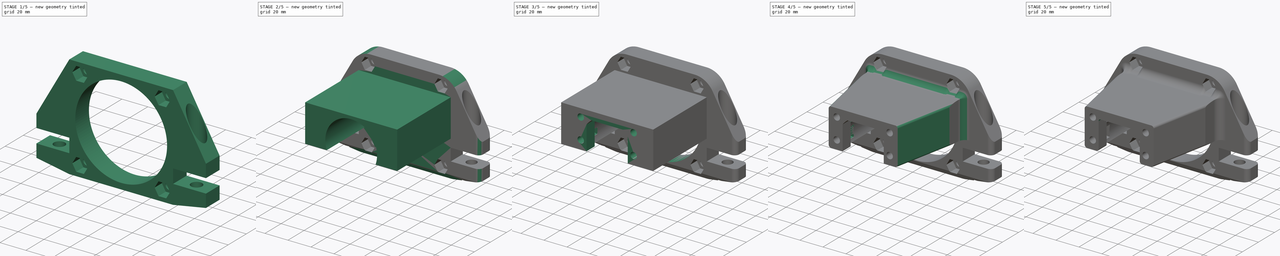
[diagram: build sequence overview — one tinted view per stage of 5, left to right]
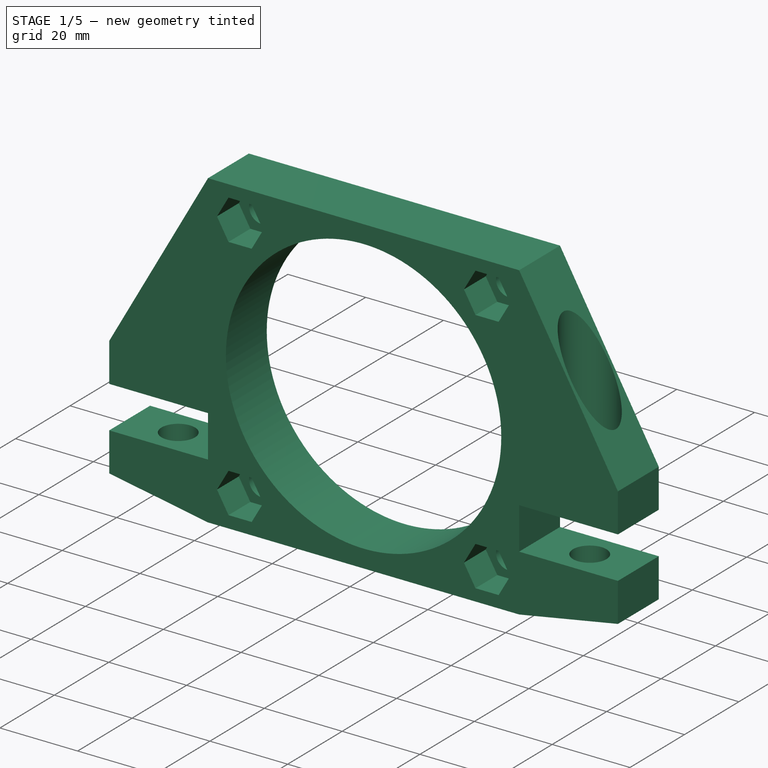
[diagram: stage 1 of 5 — iso view after this stage's code; geometry added in this stage tinted green]
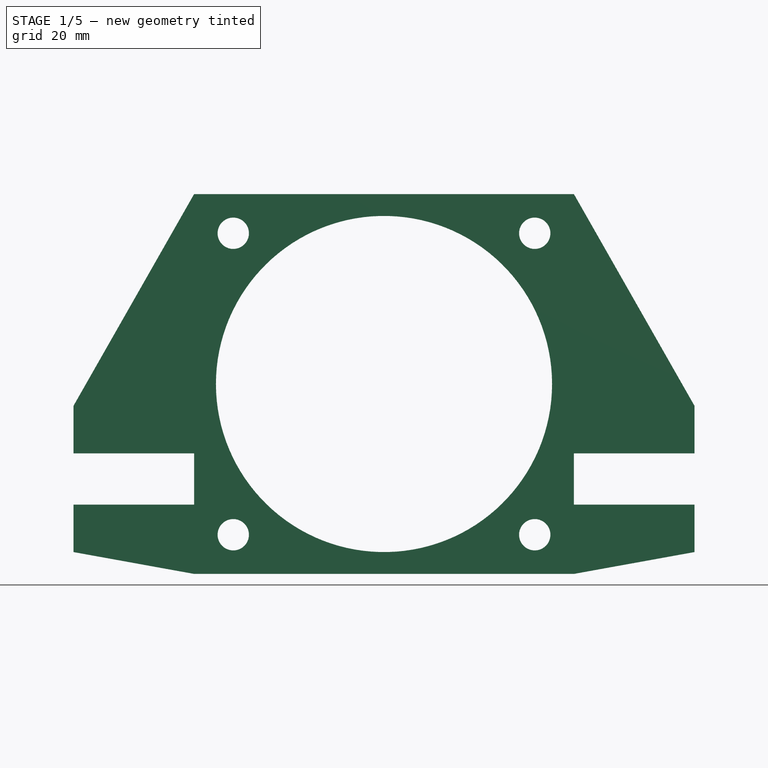
[diagram: stage 1 of 5 — front view after this stage's code; geometry added in this stage tinted green]
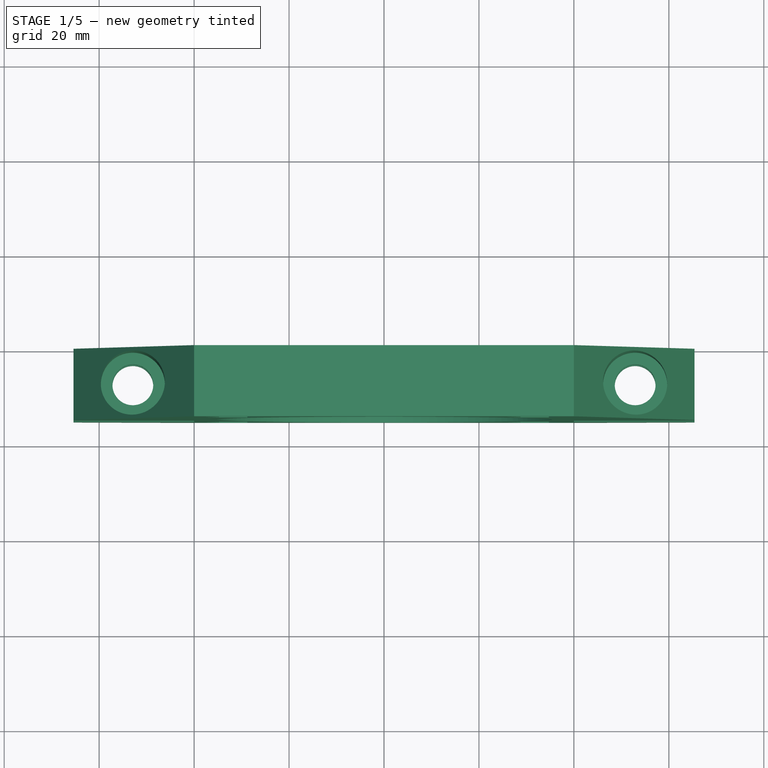
[diagram: stage 1 of 5 — top view after this stage's code; geometry added in this stage tinted green]
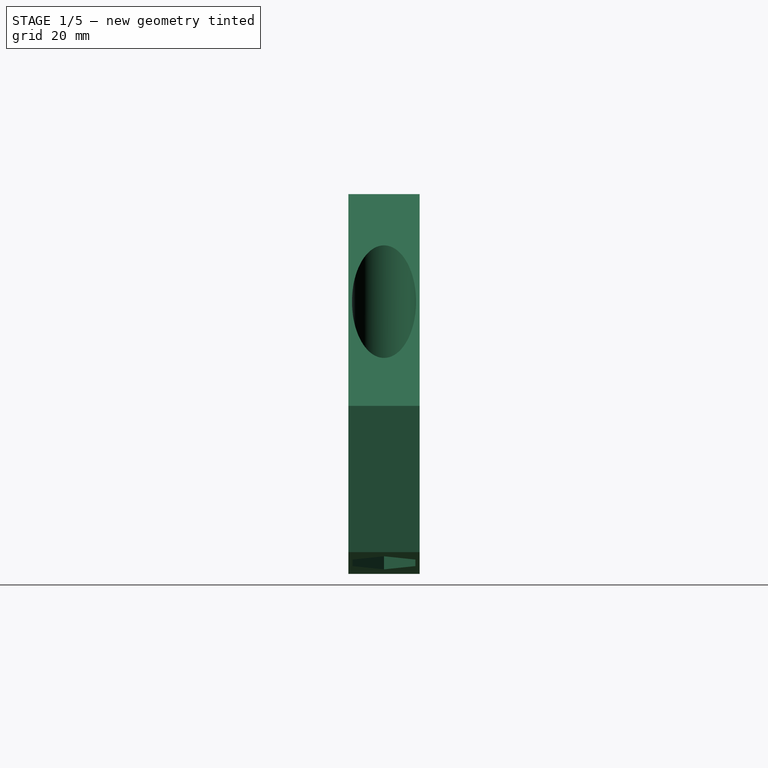
[diagram: stage 1 of 5 — right view after this stage's code; geometry added in this stage tinted green]
FCSTD DOCUMENT  (FreeCAD 1.0R39109 (Git))
Label: sway_motor_mount_side
License: All rights reserved
LicenseURL: https://en.wikipedia.org/wiki/All_rights_reserved
objects: Sketcher::SketchObject×15, PartDesign::Pocket×11, PartDesign::Fillet×8, PartDesign::Pad×3, PartDesign::Revolution×1, PartDesign::Chamfer×1, PartDesign::Body×1
note: 103 computed .brp shape members not serialized (recipe doc carries the construction recipe); baked Part::Feature solids carry a one-line shape summary decoded from their .brp

FEATURE [Sketcher::SketchObject] Sketch
  ArcFitTolerance = 1e-06
  AttachmentSupport = -> [XZ_Plane]
  FullyConstrained = true
  MakeInternals = false
  MapMode = 5
  Placement = pos=(0,0,0) rot=(1,0,0;1.5708rad)
  sketch-geometry (48):
    g0: LineSegment [constr] StartX=-136.6 StartY=5 StartZ=0 EndX=-136.6 EndY=-5 EndZ=0
    g1: LineSegment [constr] StartX=-136.6 StartY=-5 StartZ=0 EndX=-40 EndY=-5 EndZ=0
    g2: LineSegment [constr] StartX=-40 StartY=-5 StartZ=0 EndX=-40 EndY=5 EndZ=0
    g3: LineSegment [constr] StartX=-40 StartY=5 StartZ=0 EndX=-136.6 EndY=5 EndZ=0
    g4: LineSegment [constr] StartX=40 StartY=5 StartZ=0 EndX=40 EndY=-5 EndZ=0
    g5: LineSegment [constr] StartX=40 StartY=-5 StartZ=0 EndX=136.6 EndY=-5 EndZ=0
    g6: LineSegment [constr] StartX=136.6 StartY=-5 StartZ=0 EndX=136.6 EndY=5 EndZ=0
    g7: LineSegment [constr] StartX=136.6 StartY=5 StartZ=0 EndX=40 EndY=5 EndZ=0
    g8: LineSegment [constr] StartX=-40 StartY=-5 StartZ=0 EndX=0 EndY=0 EndZ=0
    g9: LineSegment [constr] StartX=0 StartY=0 StartZ=0 EndX=40 EndY=-5 EndZ=0
    g10: LineSegment [constr] StartX=-40 StartY=60 StartZ=0 EndX=-40 EndY=-20 EndZ=0
    g11: LineSegment [constr] StartX=-40 StartY=-20 StartZ=0 EndX=40 EndY=-20 EndZ=0
    g12: LineSegment [constr] StartX=40 StartY=-20 StartZ=0 EndX=40 EndY=60 EndZ=0
    g13: LineSegment [constr] StartX=40 StartY=60 StartZ=0 EndX=-40 EndY=60 EndZ=0
    g14: ArcOfCircle [constr] CenterX=-33 CenterY=53 CenterZ=0 NormalX=0 NormalY=0 NormalZ=1 AngleXU=0 Radius=7 StartAngle=1.5708 EndAngle=3.14159
    g15: ArcOfCircle [constr] CenterX=33 CenterY=53 CenterZ=0 NormalX=0 NormalY=0 NormalZ=1 AngleXU=0 Radius=7 StartAngle=0 EndAngle=1.5708
    g16: ArcOfCircle [constr] CenterX=33 CenterY=-13 CenterZ=0 NormalX=0 NormalY=0 NormalZ=1 AngleXU=0 Radius=7 StartAngle=4.71239 EndAngle=6.28319
    g17: ArcOfCircle [constr] CenterX=-33 CenterY=-13 CenterZ=0 NormalX=0 NormalY=0 NormalZ=1 AngleXU=0 Radius=7 StartAngle=3.14159 EndAngle=4.71239
    g18: Circle [constr] CenterX=-31.75 CenterY=51.75 CenterZ=0 NormalX=0 NormalY=0 NormalZ=1 AngleXU=0 Radius=3
    g19: Circle [constr] CenterX=31.75 CenterY=51.75 CenterZ=0 NormalX=0 NormalY=0 NormalZ=1 AngleXU=0 Radius=3
    g20: Circle [constr] CenterX=31.75 CenterY=-11.75 CenterZ=0 NormalX=0 NormalY=0 NormalZ=1 AngleXU=0 Radius=3
    g21: Circle [constr] CenterX=-31.75 CenterY=-11.75 CenterZ=0 NormalX=0 NormalY=0 NormalZ=1 AngleXU=0 Radius=3
    g22: LineSegment [constr] StartX=-40 StartY=-20 StartZ=0 EndX=-31.75 EndY=-11.75 EndZ=0
    g23: LineSegment [constr] StartX=31.75 StartY=-11.75 StartZ=0 EndX=40 EndY=-20 EndZ=0
    g24: LineSegment [constr] StartX=-40 StartY=60 StartZ=0 EndX=40 EndY=-20 EndZ=0
    g25: LineSegment [constr] StartX=-40 StartY=-20 StartZ=0 EndX=40 EndY=60 EndZ=0
    g26: Circle [constr] CenterX=-1e-16 CenterY=20 CenterZ=0 NormalX=0 NormalY=0 NormalZ=1 AngleXU=0 Radius=35
    g27: LineSegment StartX=-65.4 StartY=5.4 StartZ=0 EndX=-65.4 EndY=15.4 EndZ=0
    g28: LineSegment StartX=-65.4 StartY=15.4 StartZ=0 EndX=-40 EndY=60 EndZ=0
    g29: LineSegment StartX=40 StartY=60 StartZ=0 EndX=65.4 EndY=15.4 EndZ=0
    g30: LineSegment StartX=65.4 StartY=15.4 StartZ=0 EndX=65.4 EndY=5.4 EndZ=0
    g31: LineSegment StartX=65.4 StartY=5.4 StartZ=0 EndX=40 EndY=5.4 EndZ=0
    g32: LineSegment StartX=40 StartY=5.4 StartZ=0 EndX=40 EndY=-5.4 EndZ=0
    g33: LineSegment StartX=40 StartY=-5.4 StartZ=0 EndX=65.4 EndY=-5.4 EndZ=0
    g34: LineSegment StartX=65.4 StartY=-5.4 StartZ=0 EndX=65.4 EndY=-15.4 EndZ=0
    g35: LineSegment StartX=65.4 StartY=-15.4 StartZ=0 EndX=40 EndY=-20 EndZ=0
    g36: LineSegment StartX=40 StartY=-20 StartZ=0 EndX=-40 EndY=-20 EndZ=0
    g37: LineSegment StartX=-40 StartY=-20 StartZ=0 EndX=-65.4 EndY=-15.4 EndZ=0
    g38: LineSegment StartX=-65.4 StartY=-15.4 StartZ=0 EndX=-65.4 EndY=-5.4 EndZ=0
    g39: LineSegment StartX=-65.4 StartY=-5.4 StartZ=0 EndX=-40 EndY=-5.4 EndZ=0
    g40: LineSegment StartX=-40 StartY=-5.4 StartZ=0 EndX=-40 EndY=5.4 EndZ=0
    g41: LineSegment StartX=-40 StartY=5.4 StartZ=0 EndX=-65.4 EndY=5.4 EndZ=0
    g42: Circle CenterX=-1e-16 CenterY=20 CenterZ=0 NormalX=0 NormalY=0 NormalZ=1 AngleXU=0 Radius=35.4
    g43: Circle CenterX=-31.75 CenterY=51.75 CenterZ=0 NormalX=0 NormalY=0 NormalZ=1 AngleXU=0 Radius=3.3
    g44: Circle CenterX=31.75 CenterY=51.75 CenterZ=0 NormalX=0 NormalY=0 NormalZ=1 AngleXU=0 Radius=3.3
    g45: Circle CenterX=31.75 CenterY=-11.75 CenterZ=0 NormalX=0 NormalY=0 NormalZ=1 AngleXU=0 Radius=3.3
    g46: Circle CenterX=-31.75 CenterY=-11.75 CenterZ=0 NormalX=0 NormalY=0 NormalZ=1 AngleXU=0 Radius=3.3
    g47: LineSegment StartX=-40 StartY=60 StartZ=0 EndX=40 EndY=60 EndZ=0
  constraints (128):
    c: Coincident(g0,g1)
    c: Coincident(g1,g2)
    c: Coincident(g2,g3)
    c: Coincident(g3,g0)
    c: Vertical(g0)
    c: Vertical(g2)
    c: Horizontal(g1)
    c: Horizontal(g3)
    c: Coincident(g4,g5)
    c: Coincident(g5,g6)
    c: Coincident(g6,g7)
    c: Coincident(g7,g4)
    c: Vertical(g4)
    c: Vertical(g6)
    c: Horizontal(g5)
    c: Horizontal(g7)
    c: Equal(g2,g4)
    c: DistanceY(g0,g0) = 10
    c: DistanceX(g2,g4) = 80
    c: DistanceY(g2,g4) = 0
    c: Coincident(g8,g1)
    c: Coincident(g8,g-1)
    c: Coincident(g9,g8)
    c: Coincident(g9,g4)
    c: Equal(g9,g8)
    c: Coincident(g10,g11)
    c: Coincident(g11,g12)
    c: Coincident(g12,g13)
    c: Coincident(g13,g10)
    c: Vertical(g10)
    c: Vertical(g12)
    c: Horizontal(g11)
    c: Horizontal(g13)
    c: PointOnObject(g2,g10)
    c: PointOnObject(g4,g12)
    c: Equal(g13,g10)
    c: Equal(g16,g17)
    c: Equal(g17,g14)
    c: Equal(g14,g15)
    c: Diameter(g14) = 14
    c: Tangent(g14,g13) = -1.5708
    c: Tangent(g14,g10) = -1.5708
    c: Tangent(g15,g12) = -1.5708
    c: Tangent(g15,g13) = -1.5708
    c: Tangent(g17,g10) = -1.5708
    c: Tangent(g17,g11) = -1.5708
    c: Tangent(g16,g11) = -1.5708
    c: Tangent(g16,g12) = -1.5708
    c: Equal(g21,g20)
    c: Equal(g20,g19)
    c: Equal(g19,g18)
    c: Diameter(g18) = 6
    c: DistanceX(g18,g19) = 63.5
    c: DistanceY(g21,g18) = 63.5
    c: DistanceY(g21,g20) = 0
    c: DistanceY(g19,g18) = 0
    c: DistanceX(g18,g21) = 0
    c: DistanceX(g20,g19) = 0
    c: Coincident(g22,g10)
    c: Coincident(g22,g21)
    c: PointOnObject(g17,g22)
    c: Coincident(g23,g20)
    c: Coincident(g23,g11)
    c: PointOnObject(g16,g23)
    c: DistanceY(g2) = 5
    c: Coincident(g24,g10)
    c: Coincident(g24,g11)
    c: Coincident(g25,g10)
    c: Coincident(g25,g12)
    c: Symmetric(g25,g25,g26)
    c: Diameter(g26) = 70
    c: Vertical(g27)
    c: Coincident(g27,g28)
    c: Coincident(g28,g10)
    c: Coincident(g29,g30)
    c: Vertical(g30)
    c: Coincident(g30,g31)
    c: Horizontal(g31)
    c: Coincident(g31,g32)
    c: Vertical(g32)
    c: Coincident(g32,g33)
    c: Horizontal(g33)
    c: Coincident(g33,g34)
    c: Vertical(g34)
    c: Coincident(g34,g35)
    c: Coincident(g35,g11)
    c: Coincident(g35,g36)
    c: Coincident(g36,g10)
    c: Coincident(g10,g37)
    c: Coincident(g37,g38)
    c: Vertical(g38)
    c: Coincident(g38,g39)
    c: Horizontal(g39)
    c: Coincident(g39,g40)
    c: Vertical(g40)
    c: Coincident(g40,g41)
    c: Coincident(g41,g27)
    c: Horizontal(g41)
    c: DistanceY(g0,g27) = 0.4
    c: DistanceX(g2,g40) = 0
    c: DistanceY(g39,g1) = 0.4
    c: Equal(g39,g41)
    c: Equal(g41,g33)
    c: Equal(g33,g31)
    c: DistanceY(g27,g27) = 10
    c: Equal(g27,g38)
    c: Equal(g38,g34)
    c: Equal(g34,g30)
    c: Equal(g32,g40)
    c: Equal(g29,g28)
    c: Equal(g35,g37)
    c: Coincident(g42,g26)
    c: Diameter(g42) = 70.8
    c: Coincident(g29,g12)
    c: DistanceX(g1,g1) = 96.6
    c: Equal(g1,g5)
    c: DistanceY(g10,g1) = 15
    c: Diameter(g43) = 6.6
    c: Coincident(g43,g18)
    c: Coincident(g44,g19)
    c: Coincident(g45,g20)
    c: Coincident(g46,g21)
    c: Equal(g46,g45)
    c: Equal(g45,g44)
    c: Equal(g44,g43)
    c: Coincident(g47,g10)
    c: Coincident(g47,g12)
    c: DistanceX(g41,g41) = 25.4
FEATURE [PartDesign::Pad] Pad
  Direction = (0,-1,2e-16)
  Length = 15
  Length2 = 10
  Placement = pos=(0,0,0) rot=(1,0,0;1.5708rad)
  Profile = -> Sketch
  ReferenceAxis = -> Sketch [N_Axis]
  Refine = true
  Suppressed = false
  Type = 0
FEATURE [Sketcher::SketchObject] Sketch001
  ArcFitTolerance = 1e-06
  AttachmentSupport = -> [Pad]
  FullyConstrained = true
  MakeInternals = false
  MapMode = 5
  Placement = pos=(0,-2.4e-15,-5.4) rot=(0,0,1;3.14159rad)
  sketch-geometry (14):
    g0: LineSegment [constr] StartX=-65.4 StartY=0 StartZ=0 EndX=-40.4 EndY=0 EndZ=0
    g1: LineSegment [constr] StartX=-40.4 StartY=0 StartZ=0 EndX=-40.4 EndY=15 EndZ=0
    g2: LineSegment [constr] StartX=-40.4 StartY=15 StartZ=0 EndX=-65.4 EndY=15 EndZ=0
    g3: LineSegment [constr] StartX=-65.4 StartY=15 StartZ=0 EndX=-65.4 EndY=0 EndZ=0
    g4: LineSegment [constr] StartX=65.4 StartY=0 StartZ=0 EndX=65.4 EndY=15 EndZ=0
    g5: LineSegment [constr] StartX=65.4 StartY=15 StartZ=0 EndX=40.4 EndY=15 EndZ=0
    g6: LineSegment [constr] StartX=40.4 StartY=15 StartZ=0 EndX=40.4 EndY=0 EndZ=0
    g7: LineSegment [constr] StartX=40.4 StartY=0 StartZ=0 EndX=65.4 EndY=0 EndZ=0
    g8: LineSegment [constr] StartX=-65.4 StartY=15 StartZ=0 EndX=-40.4 EndY=3.6e-15 EndZ=0
    g9: LineSegment [constr] StartX=-65.4 StartY=0 StartZ=0 EndX=-40.4 EndY=15 EndZ=0
    g10: LineSegment [constr] StartX=40.4 StartY=15 StartZ=0 EndX=65.4 EndY=-3.6e-15 EndZ=0
    g11: LineSegment [constr] StartX=40.4 StartY=0 StartZ=0 EndX=65.4 EndY=15 EndZ=0
    g12: Circle CenterX=-52.9 CenterY=7.5 CenterZ=0 NormalX=0 NormalY=0 NormalZ=1 AngleXU=0 Radius=4.3
    g13: Circle CenterX=52.9 CenterY=7.5 CenterZ=0 NormalX=0 NormalY=0 NormalZ=1 AngleXU=0 Radius=4.3
  constraints (36):
    c: Coincident(g0,g1)
    c: Coincident(g1,g2)
    c: Coincident(g2,g3)
    c: Coincident(g3,g0)
    c: Horizontal(g0)
    c: Horizontal(g2)
    c: Vertical(g1)
    c: Vertical(g3)
    c: Distance(g1,g3) = 25
    c: Distance(g0,g2) = 15
    c: PointOnObject(g0,g-1)
    c: Coincident(g4,g5)
    c: Coincident(g5,g6)
    c: Coincident(g6,g7)
    c: Coincident(g7,g4)
    c: Vertical(g4)
    c: Vertical(g6)
    c: Horizontal(g5)
    c: Horizontal(g7)
    c: PointOnObject(g4,g-1)
    c: DistanceX(g6) = 40.4
    c: Coincident(g8,g2)
    c: Coincident(g8,g0)
    c: Coincident(g9,g0)
    c: Coincident(g9,g1)
    c: Coincident(g10,g5)
    c: Coincident(g10,g4)
    c: Coincident(g11,g6)
    c: Coincident(g11,g4)
    c: Diameter(g12) = 8.6
    c: Symmetric(g8,g8,g12)
    c: Symmetric(g11,g11,g13)
    c: Equal(g13,g12)
    c: DistanceX(g0) = -40.4
    c: Equal(g5,g2)
    c: Equal(g4,g3)
FEATURE [PartDesign::Pocket] Pocket
  BaseFeature = -> Pad
  Direction = (0,0,-1)
  Length = 100
  Length2 = 100
  Placement = pos=(0,0,0) rot=(1,0,0;1.5708rad)
  Profile = -> Sketch001
  ReferenceAxis = -> Sketch001 [N_Axis]
  Refine = true
  Suppressed = false
  Type = 4
FEATURE [Sketcher::SketchObject] Sketch002
  ArcFitTolerance = 1e-06
  AttachmentOffset = pos=(0,0,-5) rot=(0,0,1;0rad)
  AttachmentSupport = -> [Pocket]
  FullyConstrained = true
  MakeInternals = false
  MapMode = 5
  Placement = pos=(0,-2.4e-15,-10.4) rot=(0,0,1;3.14159rad)
  expr: Constraints[20] = Sketch001.Constraints[20]
  expr: Constraints[29] = Sketch001.Constraints[29]
  expr: Constraints[33] = Sketch001.Constraints[33]
  expr: Constraints[8] = Sketch001.Constraints[8]
  expr: Constraints[9] = Sketch001.Constraints[9]
  sketch-geometry (28):
    g0: LineSegment [constr] StartX=-65.4 StartY=0 StartZ=0 EndX=-40.4 EndY=0 EndZ=0
    g1: LineSegment [constr] StartX=-40.4 StartY=0 StartZ=0 EndX=-40.4 EndY=15 EndZ=0
    g2: LineSegment [constr] StartX=-40.4 StartY=15 StartZ=0 EndX=-65.4 EndY=15 EndZ=0
    g3: LineSegment [constr] StartX=-65.4 StartY=15 StartZ=0 EndX=-65.4 EndY=0 EndZ=0
    g4: LineSegment [constr] StartX=65.4 StartY=0 StartZ=0 EndX=65.4 EndY=15 EndZ=0
    g5: LineSegment [constr] StartX=65.4 StartY=15 StartZ=0 EndX=40.4 EndY=15 EndZ=0
    g6: LineSegment [constr] StartX=40.4 StartY=15 StartZ=0 EndX=40.4 EndY=0 EndZ=0
    g7: LineSegment [constr] StartX=40.4 StartY=0 StartZ=0 EndX=65.4 EndY=0 EndZ=0
    g8: LineSegment [constr] StartX=-65.4 StartY=15 StartZ=0 EndX=-40.4 EndY=-3.6e-15 EndZ=0
    g9: LineSegment [constr] StartX=-65.4 StartY=0 StartZ=0 EndX=-40.4 EndY=15 EndZ=0
    g10: LineSegment [constr] StartX=40.4 StartY=15 StartZ=0 EndX=65.4 EndY=-3.6e-15 EndZ=0
    g11: LineSegment [constr] StartX=40.4 StartY=0 StartZ=0 EndX=65.4 EndY=15 EndZ=0
    g12: Circle [constr] CenterX=-52.9 CenterY=7.5 CenterZ=0 NormalX=0 NormalY=0 NormalZ=1 AngleXU=0 Radius=4.3
    g13: Circle [constr] CenterX=52.9 CenterY=7.5 CenterZ=0 NormalX=0 NormalY=0 NormalZ=1 AngleXU=0 Radius=4.3
    g14: LineSegment StartX=-49.0895 StartY=0.9 StartZ=0 EndX=-45.279 EndY=7.5 EndZ=0
    g15: LineSegment StartX=-45.279 StartY=7.5 StartZ=0 EndX=-49.0895 EndY=14.1 EndZ=0
    g16: LineSegment StartX=-49.0895 StartY=14.1 StartZ=0 EndX=-56.7105 EndY=14.1 EndZ=0
    g17: LineSegment StartX=-56.7105 StartY=14.1 StartZ=0 EndX=-60.521 EndY=7.5 EndZ=0
    g18: LineSegment StartX=-60.521 StartY=7.5 StartZ=0 EndX=-56.7105 EndY=0.9 EndZ=0
    g19: LineSegment StartX=-56.7105 StartY=0.9 StartZ=0 EndX=-49.0895 EndY=0.9 EndZ=0
    g20: Circle [constr] CenterX=-52.9 CenterY=7.5 CenterZ=0 NormalX=0 NormalY=0 NormalZ=1 AngleXU=0 Radius=7.62102
    g21: LineSegment StartX=56.7105 StartY=0.9 StartZ=0 EndX=60.521 EndY=7.5 EndZ=0
    g22: LineSegment StartX=60.521 StartY=7.5 StartZ=0 EndX=56.7105 EndY=14.1 EndZ=0
    g23: LineSegment StartX=56.7105 StartY=14.1 StartZ=0 EndX=49.0895 EndY=14.1 EndZ=0
    g24: LineSegment StartX=49.0895 StartY=14.1 StartZ=0 EndX=45.279 EndY=7.5 EndZ=0
    g25: LineSegment StartX=45.279 StartY=7.5 StartZ=0 EndX=49.0895 EndY=0.9 EndZ=0
    g26: LineSegment StartX=49.0895 StartY=0.9 StartZ=0 EndX=56.7105 EndY=0.9 EndZ=0
    g27: Circle [constr] CenterX=52.9 CenterY=7.5 CenterZ=0 NormalX=0 NormalY=0 NormalZ=1 AngleXU=0 Radius=7.62102
  constraints (68):
    c: Coincident(g0,g1)
    c: Coincident(g1,g2)
    c: Coincident(g2,g3)
    c: Coincident(g3,g0)
    c: Horizontal(g0)
    c: Horizontal(g2)
    c: Vertical(g1)
    c: Vertical(g3)
    c: Distance(g1,g3) = 25
    c: Distance(g0,g2) = 15
    c: PointOnObject(g0,g-1)
    c: Coincident(g4,g5)
    c: Coincident(g5,g6)
    c: Coincident(g6,g7)
    c: Coincident(g7,g4)
    c: Vertical(g4)
    c: Vertical(g6)
    c: Horizontal(g5)
    c: Horizontal(g7)
    c: PointOnObject(g4,g-1)
    c: DistanceX(g6) = 40.4
    c: Coincident(g8,g2)
    c: Coincident(g8,g0)
    c: Coincident(g9,g0)
    c: Coincident(g9,g1)
    c: Coincident(g10,g5)
    c: Coincident(g10,g4)
    c: Coincident(g11,g6)
    c: Coincident(g11,g4)
    c: Diameter(g12) = 8.6
    c: Symmetric(g8,g8,g12)
    c: Symmetric(g11,g11,g13)
    c: Equal(g13,g12)
    c: DistanceX(g0) = -40.4
    c: Equal(g5,g2)
    c: Equal(g4,g3)
    c: Coincident(g14,g15)
    c: Coincident(g15,g16)
    c: Coincident(g16,g17)
    c: Coincident(g17,g18)
    c: Coincident(g18,g19)
    c: Coincident(g19,g14)
    c: Equal(g14, g15-g19) x5
    c: PointOnObject(g14,g20)
    c: PointOnObject(g15,g20)
    c: PointOnObject(g16,g20)
    c: PointOnObject(g17,g20)
    c: PointOnObject(g18,g20)
    c: PointOnObject(g19,g20)
    c: Coincident(g20,g12)
    c: Horizontal(g19)
    c: Distance(g16,g14) = 13.2
    c: Coincident(g21,g22)
    c: Coincident(g22,g23)
    c: Coincident(g23,g24)
    c: Coincident(g24,g25)
    c: Coincident(g25,g26)
    c: Coincident(g26,g21)
    c: Equal(g21, g22-g26) x5
    c: PointOnObject(g21,g27)
    c: PointOnObject(g22,g27)
    c: PointOnObject(g23,g27)
    c: PointOnObject(g24,g27)
    c: PointOnObject(g25,g27)
    c: PointOnObject(g26,g27)
    c: Coincident(g27,g13)
    c: Horizontal(g26)
    c: Equal(g16,g23)
FEATURE [PartDesign::Pocket] Pocket001
  BaseFeature = -> Pocket
  Direction = (0,0,-1)
  Length = 5
  Length2 = 5
  Placement = pos=(0,0,0) rot=(1,0,0;1.5708rad)
  Profile = -> Sketch002
  ReferenceAxis = -> Sketch002 [N_Axis]
  Refine = true
  Suppressed = false
  Type = 1
FEATURE [Sketcher::SketchObject] Sketch003
  ArcFitTolerance = 1e-06
  AttachmentOffset = pos=(0,0,15.8) rot=(0,0,1;0rad)
  AttachmentSupport = -> [Pocket001]
  FullyConstrained = true
  MakeInternals = false
  MapMode = 5
  Placement = pos=(0,-2.4e-15,10.4) rot=(0,0,1;3.14159rad)
  expr: Constraints[20] = Sketch001.Constraints[20]
  expr: Constraints[29] = Sketch001.Constraints[29]
  expr: Constraints[33] = Sketch001.Constraints[33]
  expr: Constraints[8] = Sketch001.Constraints[8]
  expr: Constraints[9] = Sketch001.Constraints[9]
  sketch-geometry (16):
    g0: LineSegment [constr] StartX=-65.4 StartY=0 StartZ=0 EndX=-40.4 EndY=0 EndZ=0
    g1: LineSegment [constr] StartX=-40.4 StartY=0 StartZ=0 EndX=-40.4 EndY=15 EndZ=0
    g2: LineSegment [constr] StartX=-40.4 StartY=15 StartZ=0 EndX=-65.4 EndY=15 EndZ=0
    g3: LineSegment [constr] StartX=-65.4 StartY=15 StartZ=0 EndX=-65.4 EndY=0 EndZ=0
    g4: LineSegment [constr] StartX=65.4 StartY=0 StartZ=0 EndX=65.4 EndY=15 EndZ=0
    g5: LineSegment [constr] StartX=65.4 StartY=15 StartZ=0 EndX=40.4 EndY=15 EndZ=0
    g6: LineSegment [constr] StartX=40.4 StartY=15 StartZ=0 EndX=40.4 EndY=0 EndZ=0
    g7: LineSegment [constr] StartX=40.4 StartY=0 StartZ=0 EndX=65.4 EndY=0 EndZ=0
    g8: LineSegment [constr] StartX=-65.4 StartY=15 StartZ=0 EndX=-40.4 EndY=3.6e-15 EndZ=0
    g9: LineSegment [constr] StartX=-65.4 StartY=0 StartZ=0 EndX=-40.4 EndY=15 EndZ=0
    g10: LineSegment [constr] StartX=40.4 StartY=15 StartZ=0 EndX=65.4 EndY=-3.6e-15 EndZ=0
    g11: LineSegment [constr] StartX=40.4 StartY=0 StartZ=0 EndX=65.4 EndY=15 EndZ=0
    g12: Circle [constr] CenterX=-52.9 CenterY=7.5 CenterZ=0 NormalX=0 NormalY=0 NormalZ=1 AngleXU=0 Radius=4.3
    g13: Circle [constr] CenterX=52.9 CenterY=7.5 CenterZ=0 NormalX=0 NormalY=0 NormalZ=1 AngleXU=0 Radius=4.3
    g14: Circle CenterX=-52.9 CenterY=7.5 CenterZ=0 NormalX=0 NormalY=0 NormalZ=1 AngleXU=0 Radius=6.75
    g15: Circle CenterX=52.9 CenterY=7.5 CenterZ=0 NormalX=0 NormalY=0 NormalZ=1 AngleXU=0 Radius=6.75
  constraints (40):
    c: Coincident(g0,g1)
    c: Coincident(g1,g2)
    c: Coincident(g2,g3)
    c: Coincident(g3,g0)
    c: Horizontal(g0)
    c: Horizontal(g2)
    c: Vertical(g1)
    c: Vertical(g3)
    c: Distance(g1,g3) = 25
    c: Distance(g0,g2) = 15
    c: PointOnObject(g0,g-1)
    c: Coincident(g4,g5)
    c: Coincident(g5,g6)
    c: Coincident(g6,g7)
    c: Coincident(g7,g4)
    c: Vertical(g4)
    c: Vertical(g6)
    c: Horizontal(g5)
    c: Horizontal(g7)
    c: PointOnObject(g4,g-1)
    c: DistanceX(g6) = 40.4
    c: Coincident(g8,g2)
    c: Coincident(g8,g0)
    c: Coincident(g9,g0)
    c: Coincident(g9,g1)
    c: Coincident(g10,g5)
    c: Coincident(g10,g4)
    c: Coincident(g11,g6)
    c: Coincident(g11,g4)
    c: Diameter(g12) = 8.6
    c: Symmetric(g8,g8,g12)
    c: Symmetric(g11,g11,g13)
    c: Equal(g13,g12)
    c: DistanceX(g0) = -40.4
    c: Equal(g5,g2)
    c: Equal(g4,g3)
    c: Diameter(g14) = 13.5
    c: Coincident(g14,g12)
    c: Coincident(g15,g13)
    c: Equal(g15,g14)
FEATURE [PartDesign::Pocket] Pocket002
  BaseFeature = -> Pocket001
  Direction = (0,0,-1)
  Length = 5
  Length2 = 5
  Placement = pos=(0,0,0) rot=(1,0,0;1.5708rad)
  Profile = -> Sketch003
  ReferenceAxis = -> Sketch003 [N_Axis]
  Refine = true
  Reversed = true
  Suppressed = false
  Type = 1
FEATURE [Sketcher::SketchObject] Sketch005
  ArcFitTolerance = 1e-06
  FullyConstrained = true
  MakeInternals = false
  MapMode = 5
  Placement = pos=(0,-15,0) rot=(1,0,0;1.5708rad)
  expr: Constraints[100] = Sketch.Constraints[100]
  expr: Constraints[104] = Sketch.Constraints[104]
  expr: Constraints[112] = Sketch.Constraints[112]
  expr: Constraints[114] = Sketch.Constraints[114]
  expr: Constraints[116] = Sketch.Constraints[116]
  expr: Constraints[117] = Sketch.Constraints[117]
  expr: Constraints[127] = Sketch.Constraints[127]
  expr: Constraints[17] = Sketch.Constraints[17]
  expr: Constraints[18] = Sketch.Constraints[18]
  expr: Constraints[19] = Sketch.Constraints[19]
  expr: Constraints[39] = Sketch.Constraints[39]
  expr: Constraints[51] = Sketch.Constraints[51]
  expr: Constraints[52] = Sketch.Constraints[52]
  expr: Constraints[53] = Sketch.Constraints[53]
  expr: Constraints[54] = Sketch.Constraints[54]
  expr: Constraints[55] = Sketch.Constraints[55]
  expr: Constraints[56] = Sketch.Constraints[56]
  expr: Constraints[57] = Sketch.Constraints[57]
  expr: Constraints[64] = Sketch.Constraints[64]
  expr: Constraints[70] = Sketch.Constraints[70]
  expr: Constraints[98] = Sketch.Constraints[98]
  expr: Constraints[99] = Sketch.Constraints[99]
  sketch-geometry (76):
    g0: LineSegment [constr] StartX=-136.6 StartY=5 StartZ=0 EndX=-136.6 EndY=-5 EndZ=0
    g1: LineSegment [constr] StartX=-136.6 StartY=-5 StartZ=0 EndX=-40 EndY=-5 EndZ=0
    g2: LineSegment [constr] StartX=-40 StartY=-5 StartZ=0 EndX=-40 EndY=5 EndZ=0
    g3: LineSegment [constr] StartX=-40 StartY=5 StartZ=0 EndX=-136.6 EndY=5 EndZ=0
    g4: LineSegment [constr] StartX=40 StartY=5 StartZ=0 EndX=40 EndY=-5 EndZ=0
    g5: LineSegment [constr] StartX=40 StartY=-5 StartZ=0 EndX=136.6 EndY=-5 EndZ=0
    g6: LineSegment [constr] StartX=136.6 StartY=-5 StartZ=0 EndX=136.6 EndY=5 EndZ=0
    g7: LineSegment [constr] StartX=136.6 StartY=5 StartZ=0 EndX=40 EndY=5 EndZ=0
    g8: LineSegment [constr] StartX=-40 StartY=-5 StartZ=0 EndX=0 EndY=0 EndZ=0
    g9: LineSegment [constr] StartX=0 StartY=0 StartZ=0 EndX=40 EndY=-5 EndZ=0
    g10: LineSegment [constr] StartX=-40 StartY=60 StartZ=0 EndX=-40 EndY=-20 EndZ=0
    g11: LineSegment [constr] StartX=-40 StartY=-20 StartZ=0 EndX=40 EndY=-20 EndZ=0
    g12: LineSegment [constr] StartX=40 StartY=-20 StartZ=0 EndX=40 EndY=60 EndZ=0
    g13: LineSegment [constr] StartX=40 StartY=60 StartZ=0 EndX=-40 EndY=60 EndZ=0
    g14: ArcOfCircle [constr] CenterX=-33 CenterY=53 CenterZ=0 NormalX=0 NormalY=0 NormalZ=1 AngleXU=0 Radius=7 StartAngle=1.5708 EndAngle=3.14159
    g15: ArcOfCircle [constr] CenterX=33 CenterY=53 CenterZ=0 NormalX=0 NormalY=0 NormalZ=1 AngleXU=0 Radius=7 StartAngle=0 EndAngle=1.5708
    g16: ArcOfCircle [constr] CenterX=33 CenterY=-13 CenterZ=0 NormalX=0 NormalY=0 NormalZ=1 AngleXU=0 Radius=7 StartAngle=4.71239 EndAngle=6.28319
    g17: ArcOfCircle [constr] CenterX=-33 CenterY=-13 CenterZ=0 NormalX=0 NormalY=0 NormalZ=1 AngleXU=0 Radius=7 StartAngle=3.14159 EndAngle=4.71239
    g18: Circle [constr] CenterX=-31.75 CenterY=51.75 CenterZ=0 NormalX=0 NormalY=0 NormalZ=1 AngleXU=0 Radius=3
    g19: Circle [constr] CenterX=31.75 CenterY=51.75 CenterZ=0 NormalX=0 NormalY=0 NormalZ=1 AngleXU=0 Radius=3
    g20: Circle [constr] CenterX=31.75 CenterY=-11.75 CenterZ=0 NormalX=0 NormalY=0 NormalZ=1 AngleXU=0 Radius=3
    g21: Circle [constr] CenterX=-31.75 CenterY=-11.75 CenterZ=0 NormalX=0 NormalY=0 NormalZ=1 AngleXU=0 Radius=3
    g22: LineSegment [constr] StartX=-40 StartY=-20 StartZ=0 EndX=-31.75 EndY=-11.75 EndZ=0
    g23: LineSegment [constr] StartX=31.75 StartY=-11.75 StartZ=0 EndX=40 EndY=-20 EndZ=0
    g24: LineSegment [constr] StartX=-40 StartY=60 StartZ=0 EndX=40 EndY=-20 EndZ=0
    g25: LineSegment [constr] StartX=-40 StartY=-20 StartZ=0 EndX=40 EndY=60 EndZ=0
    g26: Circle [constr] CenterX=6.4e-15 CenterY=20 CenterZ=0 NormalX=0 NormalY=0 NormalZ=1 AngleXU=0 Radius=35
    g27: LineSegment [constr] StartX=-65.4 StartY=5.4 StartZ=0 EndX=-65.4 EndY=15.4 EndZ=0
    g28: LineSegment [constr] StartX=-65.4 StartY=15.4 StartZ=0 EndX=-40 EndY=60 EndZ=0
    g29: LineSegment [constr] StartX=40 StartY=60 StartZ=0 EndX=65.4 EndY=15.4 EndZ=0
    g30: LineSegment [constr] StartX=65.4 StartY=15.4 StartZ=0 EndX=65.4 EndY=5.4 EndZ=0
    g31: LineSegment [constr] StartX=65.4 StartY=5.4 StartZ=0 EndX=40 EndY=5.4 EndZ=0
    g32: LineSegment [constr] StartX=40 StartY=5.4 StartZ=0 EndX=40 EndY=-5.4 EndZ=0
    g33: LineSegment [constr] StartX=40 StartY=-5.4 StartZ=0 EndX=65.4 EndY=-5.4 EndZ=0
    g34: LineSegment [constr] StartX=65.4 StartY=-5.4 StartZ=0 EndX=65.4 EndY=-15.4 EndZ=0
    g35: LineSegment [constr] StartX=65.4 StartY=-15.4 StartZ=0 EndX=40 EndY=-20 EndZ=0
    g36: LineSegment [constr] StartX=40 StartY=-20 StartZ=0 EndX=-40 EndY=-20 EndZ=0
    g37: LineSegment [constr] StartX=-40 StartY=-20 StartZ=0 EndX=-65.4 EndY=-15.4 EndZ=0
    g38: LineSegment [constr] StartX=-65.4 StartY=-15.4 StartZ=0 EndX=-65.4 EndY=-5.4 EndZ=0
    g39: LineSegment [constr] StartX=-65.4 StartY=-5.4 StartZ=0 EndX=-40 EndY=-5.4 EndZ=0
    g40: LineSegment [constr] StartX=-40 StartY=-5.4 StartZ=0 EndX=-40 EndY=5.4 EndZ=0
    g41: LineSegment [constr] StartX=-40 StartY=5.4 StartZ=0 EndX=-65.4 EndY=5.4 EndZ=0
    g42: Circle [constr] CenterX=6.4e-15 CenterY=20 CenterZ=0 NormalX=0 NormalY=0 NormalZ=1 AngleXU=0 Radius=35.4
    g43: Circle [constr] CenterX=-31.75 CenterY=51.75 CenterZ=0 NormalX=0 NormalY=0 NormalZ=1 AngleXU=0 Radius=3.3
    g44: Circle [constr] CenterX=31.75 CenterY=51.75 CenterZ=0 NormalX=0 NormalY=0 NormalZ=1 AngleXU=0 Radius=3.3
    g45: Circle [constr] CenterX=31.75 CenterY=-11.75 CenterZ=0 NormalX=0 NormalY=0 NormalZ=1 AngleXU=0 Radius=3.3
    g46: Circle [constr] CenterX=-31.75 CenterY=-11.75 CenterZ=0 NormalX=0 NormalY=0 NormalZ=1 AngleXU=0 Radius=3.3
    g47: LineSegment [constr] StartX=-40 StartY=60 StartZ=0 EndX=40 EndY=60 EndZ=0
    g48: LineSegment StartX=-28.7766 StartY=46.6 StartZ=0 EndX=-25.8033 EndY=51.75 EndZ=0
    g49: LineSegment StartX=-25.8033 StartY=51.75 StartZ=0 EndX=-28.7766 EndY=56.9 EndZ=0
    g50: LineSegment StartX=-28.7766 StartY=56.9 StartZ=0 EndX=-34.7234 EndY=56.9 EndZ=0
    g51: LineSegment StartX=-34.7234 StartY=56.9 StartZ=0 EndX=-37.6967 EndY=51.75 EndZ=0
    g52: LineSegment StartX=-37.6967 StartY=51.75 StartZ=0 EndX=-34.7234 EndY=46.6 EndZ=0
    g53: LineSegment StartX=-34.7234 StartY=46.6 StartZ=0 EndX=-28.7766 EndY=46.6 EndZ=0
    g54: Circle [constr] CenterX=-31.75 CenterY=51.75 CenterZ=0 NormalX=0 NormalY=0 NormalZ=1 AngleXU=0 Radius=5.94671
    g55: LineSegment StartX=34.7234 StartY=46.6 StartZ=0 EndX=37.6967 EndY=51.75 EndZ=0
    g56: LineSegment StartX=37.6967 StartY=51.75 StartZ=0 EndX=34.7234 EndY=56.9 EndZ=0
    g57: LineSegment StartX=34.7234 StartY=56.9 StartZ=0 EndX=28.7766 EndY=56.9 EndZ=0
    g58: LineSegment StartX=28.7766 StartY=56.9 StartZ=0 EndX=25.8033 EndY=51.75 EndZ=0
    g59: LineSegment StartX=25.8033 StartY=51.75 StartZ=0 EndX=28.7766 EndY=46.6 EndZ=0
    g60: LineSegment StartX=28.7766 StartY=46.6 StartZ=0 EndX=34.7234 EndY=46.6 EndZ=0
    g61: Circle [constr] CenterX=31.75 CenterY=51.75 CenterZ=0 NormalX=0 NormalY=0 NormalZ=1 AngleXU=0 Radius=5.94671
    g62: LineSegment StartX=34.7234 StartY=-16.9 StartZ=0 EndX=37.6967 EndY=-11.75 EndZ=0
    g63: LineSegment StartX=37.6967 StartY=-11.75 StartZ=0 EndX=34.7234 EndY=-6.6 EndZ=0
    g64: LineSegment StartX=34.7234 StartY=-6.6 StartZ=0 EndX=28.7766 EndY=-6.6 EndZ=0
    g65: LineSegment StartX=28.7766 StartY=-6.6 StartZ=0 EndX=25.8033 EndY=-11.75 EndZ=0
    g66: LineSegment StartX=25.8033 StartY=-11.75 StartZ=0 EndX=28.7766 EndY=-16.9 EndZ=0
    g67: LineSegment StartX=28.7766 StartY=-16.9 StartZ=0 EndX=34.7234 EndY=-16.9 EndZ=0
    g68: Circle [constr] CenterX=31.75 CenterY=-11.75 CenterZ=0 NormalX=0 NormalY=0 NormalZ=1 AngleXU=0 Radius=5.94671
    g69: LineSegment StartX=-28.7766 StartY=-16.9 StartZ=0 EndX=-25.8033 EndY=-11.75 EndZ=0
    g70: LineSegment StartX=-25.8033 StartY=-11.75 StartZ=0 EndX=-28.7766 EndY=-6.6 EndZ=0
    g71: LineSegment StartX=-28.7766 StartY=-6.6 StartZ=0 EndX=-34.7234 EndY=-6.6 EndZ=0
    g72: LineSegment StartX=-34.7234 StartY=-6.6 StartZ=0 EndX=-37.6967 EndY=-11.75 EndZ=0
    g73: LineSegment StartX=-37.6967 StartY=-11.75 StartZ=0 EndX=-34.7234 EndY=-16.9 EndZ=0
    g74: LineSegment StartX=-34.7234 StartY=-16.9 StartZ=0 EndX=-28.7766 EndY=-16.9 EndZ=0
    g75: Circle [constr] CenterX=-31.75 CenterY=-11.75 CenterZ=0 NormalX=0 NormalY=0 NormalZ=1 AngleXU=0 Radius=5.94671
  constraints (192):
    c: Coincident(g0,g1)
    c: Coincident(g1,g2)
    c: Coincident(g2,g3)
    c: Coincident(g3,g0)
    c: Vertical(g0)
    c: Vertical(g2)
    c: Horizontal(g1)
    c: Horizontal(g3)
    c: Coincident(g4,g5)
    c: Coincident(g5,g6)
    c: Coincident(g6,g7)
    c: Coincident(g7,g4)
    c: Vertical(g4)
    c: Vertical(g6)
    c: Horizontal(g5)
    c: Horizontal(g7)
    c: Equal(g2,g4)
    c: DistanceY(g0,g0) = 10
    c: DistanceX(g2,g4) = 80
    c: DistanceY(g2,g4) = 0
    c: Coincident(g8,g1)
    c: Coincident(g8,g-1)
    c: Coincident(g9,g8)
    c: Coincident(g9,g4)
    c: Equal(g9,g8)
    c: Coincident(g10,g11)
    c: Coincident(g11,g12)
    c: Coincident(g12,g13)
    c: Coincident(g13,g10)
    c: Vertical(g10)
    c: Vertical(g12)
    c: Horizontal(g11)
    c: Horizontal(g13)
    c: PointOnObject(g2,g10)
    c: PointOnObject(g4,g12)
    c: Equal(g13,g10)
    c: Equal(g16,g17)
    c: Equal(g17,g14)
    c: Equal(g14,g15)
    c: Diameter(g14) = 14
    c: Tangent(g14,g13) = -1.5708
    c: Tangent(g14,g10) = -1.5708
    c: Tangent(g15,g12) = -1.5708
    c: Tangent(g15,g13) = -1.5708
    c: Tangent(g17,g10) = -1.5708
    c: Tangent(g17,g11) = -1.5708
    c: Tangent(g16,g11) = -1.5708
    c: Tangent(g16,g12) = -1.5708
    c: Equal(g21,g20)
    c: Equal(g20,g19)
    c: Equal(g19,g18)
    c: Diameter(g18) = 6
    c: DistanceX(g18,g19) = 63.5
    c: DistanceY(g21,g18) = 63.5
    c: DistanceY(g21,g20) = 0
    c: DistanceY(g19,g18) = 0
    c: DistanceX(g18,g21) = 0
    c: DistanceX(g20,g19) = 0
    c: Coincident(g22,g10)
    c: Coincident(g22,g21)
    c: PointOnObject(g17,g22)
    c: Coincident(g23,g20)
    c: Coincident(g23,g11)
    c: PointOnObject(g16,g23)
    c: DistanceY(g2) = 5
    c: Coincident(g24,g10)
    c: Coincident(g24,g11)
    c: Coincident(g25,g10)
    c: Coincident(g25,g12)
    c: Symmetric(g25,g25,g26)
    c: Diameter(g26) = 70
    c: Vertical(g27)
    c: Coincident(g27,g28)
    c: Coincident(g28,g10)
    c: Coincident(g29,g30)
    c: Vertical(g30)
    c: Coincident(g30,g31)
    c: Horizontal(g31)
    c: Coincident(g31,g32)
    c: Vertical(g32)
    c: Coincident(g32,g33)
    c: Horizontal(g33)
    c: Coincident(g33,g34)
    c: Vertical(g34)
    c: Coincident(g34,g35)
    c: Coincident(g35,g11)
    c: Coincident(g35,g36)
    c: Coincident(g36,g10)
    c: Coincident(g10,g37)
    c: Coincident(g37,g38)
    c: Vertical(g38)
    c: Coincident(g38,g39)
    c: Horizontal(g39)
    c: Coincident(g39,g40)
    c: Vertical(g40)
    c: Coincident(g40,g41)
    c: Coincident(g41,g27)
    c: Horizontal(g41)
    c: DistanceY(g0,g27) = 0.4
    c: DistanceX(g2,g40) = 0
    c: DistanceY(g39,g1) = 0.4
    c: Equal(g39,g41)
    c: Equal(g41,g33)
    c: Equal(g33,g31)
    c: DistanceY(g27,g27) = 10
    c: Equal(g27,g38)
    c: Equal(g38,g34)
    c: Equal(g34,g30)
    c: Equal(g32,g40)
    c: Equal(g29,g28)
    c: Equal(g35,g37)
    c: Coincident(g42,g26)
    c: Diameter(g42) = 70.8
    c: Coincident(g29,g12)
    c: DistanceX(g1,g1) = 96.6
    c: Equal(g1,g5)
    c: DistanceY(g10,g1) = 15
    c: Diameter(g43) = 6.6
    c: Coincident(g43,g18)
    c: Coincident(g44,g19)
    c: Coincident(g45,g20)
    c: Coincident(g46,g21)
    c: Equal(g46,g45)
    c: Equal(g45,g44)
    c: Equal(g44,g43)
    c: Coincident(g47,g10)
    c: Coincident(g47,g12)
    c: DistanceX(g41,g41) = 25.4
    c: Coincident(g48,g49)
    c: Coincident(g49,g50)
    c: Coincident(g50,g51)
    c: Coincident(g51,g52)
    c: Coincident(g52,g53)
    c: Coincident(g53,g48)
    c: Equal(g48, g49-g53) x5
    c: PointOnObject(g48,g54)
    c: PointOnObject(g49,g54)
    c: PointOnObject(g50,g54)
    c: PointOnObject(g51,g54)
    c: PointOnObject(g52,g54)
    c: PointOnObject(g53,g54)
    c: Coincident(g54,g18)
    c: Horizontal(g53)
    c: Distance(g50,g48) = 10.3
    c: Coincident(g55,g56)
    c: Coincident(g56,g57)
    c: Coincident(g57,g58)
    c: Coincident(g58,g59)
    c: Coincident(g59,g60)
    c: Coincident(g60,g55)
    c: Equal(g55, g56-g60) x5
    c: PointOnObject(g55,g61)
    c: PointOnObject(g56,g61)
    c: PointOnObject(g57,g61)
    c: PointOnObject(g58,g61)
    c: PointOnObject(g59,g61)
    c: PointOnObject(g60,g61)
    c: Coincident(g61,g19)
    c: Coincident(g62,g63)
    c: Coincident(g63,g64)
    c: Coincident(g64,g65)
    c: Coincident(g65,g66)
    c: Coincident(g66,g67)
    c: Coincident(g67,g62)
    c: Equal(g62, g63-g67) x5
    c: PointOnObject(g62,g68)
    c: PointOnObject(g63,g68)
    c: PointOnObject(g64,g68)
    c: PointOnObject(g65,g68)
    c: PointOnObject(g66,g68)
    c: PointOnObject(g67,g68)
    c: Coincident(g68,g20)
    c: Coincident(g69,g70)
    c: Coincident(g70,g71)
    c: Coincident(g71,g72)
    c: Coincident(g72,g73)
    c: Coincident(g73,g74)
    c: Coincident(g74,g69)
    c: Equal(g69, g70-g74) x5
    c: PointOnObject(g69,g75)
    c: PointOnObject(g70,g75)
    c: PointOnObject(g71,g75)
    c: PointOnObject(g72,g75)
    c: PointOnObject(g73,g75)
    c: PointOnObject(g74,g75)
    c: Coincident(g75,g21)
    c: Horizontal(g74)
    c: Horizontal(g67)
    c: Horizontal(g60)
    c: Equal(g53,g60)
    c: Equal(g60,g67)
    c: Equal(g67,g74)
FEATURE [PartDesign::Pocket] Pocket004
  BaseFeature = -> Pocket002
  Direction = (0,1,-2e-16)
  Length = 8
  Length2 = 5
  Placement = pos=(0,0,0) rot=(1,0,0;1.5708rad)
  Profile = -> Sketch005
  ReferenceAxis = -> Sketch005 [N_Axis]
  Refine = true
  Suppressed = false
  Type = 0
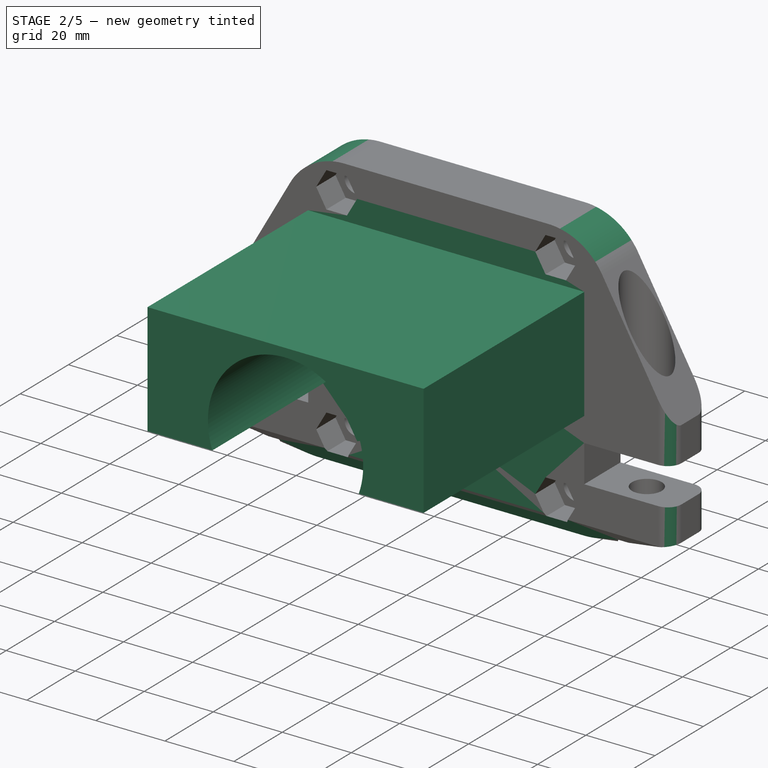
[diagram: stage 2 of 5 — iso view after this stage's code; geometry added in this stage tinted green]
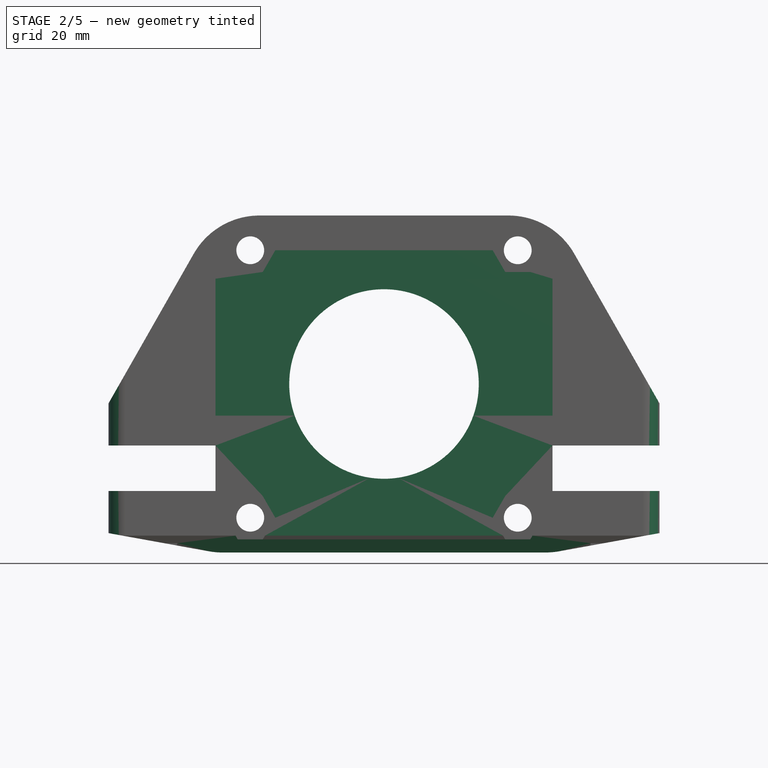
[diagram: stage 2 of 5 — front view after this stage's code; geometry added in this stage tinted green]
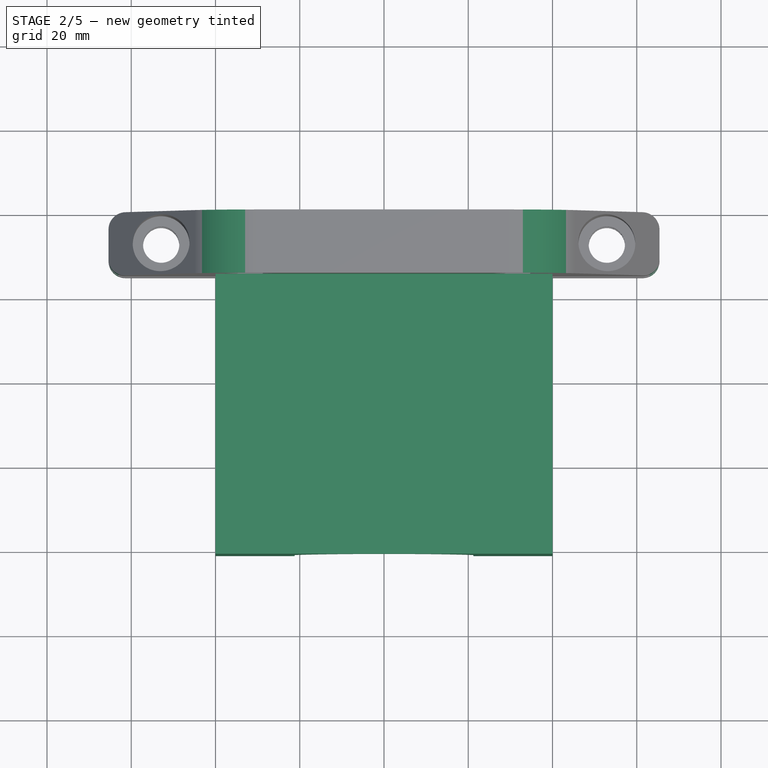
[diagram: stage 2 of 5 — top view after this stage's code; geometry added in this stage tinted green]
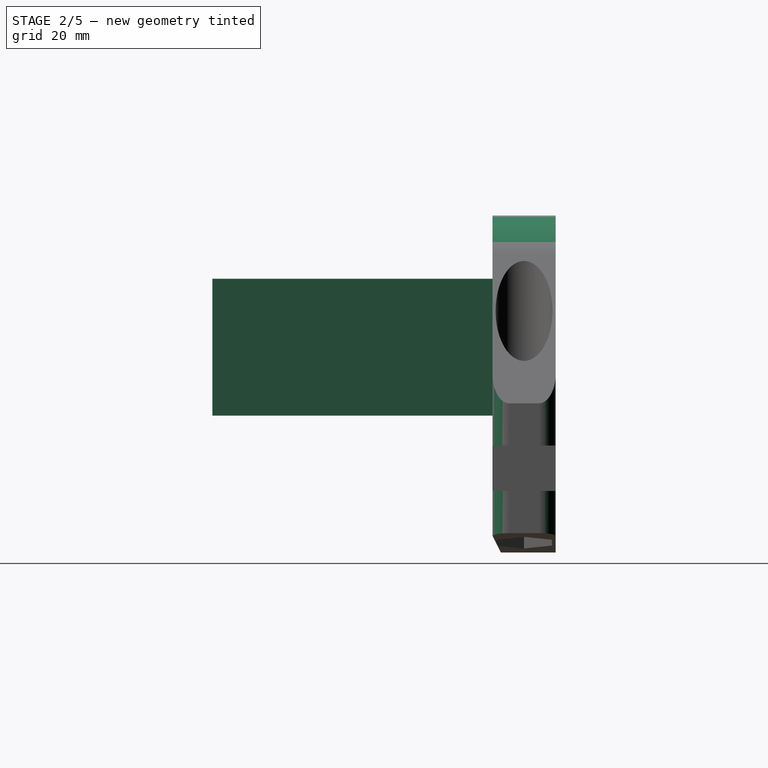
[diagram: stage 2 of 5 — right view after this stage's code; geometry added in this stage tinted green]
FEATURE [PartDesign::Fillet] Fillet
  Base = -> Pocket004 [Edge36,Edge15,Edge43,Edge19,Edge4,Edge35,Edge3,Edge23]
  BaseFeature = -> Pocket004
  Placement = pos=(0,0,0) rot=(1,0,0;1.5708rad)
  Radius = 4
  Refine = true
  SupportTransform = false
  Suppressed = false
  UseAllEdges = false
FEATURE [PartDesign::Fillet] Fillet002
  Base = -> Fillet [Edge17,Edge78,Edge111,Edge98]
  BaseFeature = -> Fillet
  Placement = pos=(0,0,0) rot=(1,0,0;1.5708rad)
  Radius = 18
  Refine = true
  SupportTransform = false
  Suppressed = false
  UseAllEdges = false
FEATURE [Sketcher::SketchObject] Sketch006
  ArcFitTolerance = 1e-06
  AttachmentSupport = -> [Fillet002]
  FullyConstrained = true
  MakeInternals = false
  MapMode = 5
  Placement = pos=(65.4,0,0) rot=(0.707107,0,0.707107;3.14159rad)
  sketch-geometry (3):
    g0: LineSegment StartX=-20 StartY=13 StartZ=0 EndX=-20 EndY=15 EndZ=0
    g1: LineSegment StartX=-20 StartY=15 StartZ=0 EndX=-16 EndY=15 EndZ=0
    g2: LineSegment StartX=-16 StartY=15 StartZ=0 EndX=-20 EndY=13 EndZ=0
  constraints (9):
    c: Coincident(g0,g1)
    c: Horizontal(g1)
    c: Coincident(g1,g2)
    c: Coincident(g2,g0)
    c: Vertical(g0)
    c: DistanceY(g0) = 15
    c: DistanceX(g0) = -20
    c: DistanceX(g1,g1) = 4
    c: DistanceY(g0,g0) = 2
FEATURE [PartDesign::Pocket] Pocket005
  BaseFeature = -> Fillet002
  Direction = (-1,0,2e-16)
  Length = 5
  Length2 = 5
  Placement = pos=(0,0,0) rot=(1,0,0;1.5708rad)
  Profile = -> Sketch006
  ReferenceAxis = -> Sketch006 [N_Axis]
  Refine = true
  Suppressed = false
  Type = 1
FEATURE [Sketcher::SketchObject] Sketch007
  ArcFitTolerance = 1e-06
  AttachmentSupport = -> [Pocket005]
  FullyConstrained = true
  MakeInternals = false
  MapMode = 5
  Placement = pos=(0,-15,0) rot=(1,0,0;1.5708rad)
  expr: Constraints[100] = Sketch.Constraints[100]
  expr: Constraints[104] = Sketch.Constraints[104]
  expr: Constraints[112] = Sketch.Constraints[112]
  expr: Constraints[114] = Sketch.Constraints[114]
  expr: Constraints[116] = Sketch.Constraints[116]
  expr: Constraints[117] = Sketch.Constraints[117]
  expr: Constraints[127] = Sketch.Constraints[127]
  expr: Constraints[17] = Sketch.Constraints[17]
  expr: Constraints[18] = Sketch.Constraints[18]
  expr: Constraints[19] = Sketch.Constraints[19]
  expr: Constraints[39] = Sketch.Constraints[39]
  expr: Constraints[51] = Sketch.Constraints[51]
  expr: Constraints[52] = Sketch.Constraints[52]
  expr: Constraints[53] = Sketch.Constraints[53]
  expr: Constraints[54] = Sketch.Constraints[54]
  expr: Constraints[55] = Sketch.Constraints[55]
  expr: Constraints[56] = Sketch.Constraints[56]
  expr: Constraints[57] = Sketch.Constraints[57]
  expr: Constraints[64] = Sketch.Constraints[64]
  expr: Constraints[70] = Sketch.Constraints[70]
  expr: Constraints[98] = Sketch.Constraints[98]
  expr: Constraints[99] = Sketch.Constraints[99]
  sketch-geometry (67):
    g0: LineSegment [constr] StartX=-136.6 StartY=5 StartZ=0 EndX=-136.6 EndY=-5 EndZ=0
    g1: LineSegment [constr] StartX=-136.6 StartY=-5 StartZ=0 EndX=-40 EndY=-5 EndZ=0
    g2: LineSegment [constr] StartX=-40 StartY=-5 StartZ=0 EndX=-40 EndY=5 EndZ=0
    g3: LineSegment [constr] StartX=-40 StartY=5 StartZ=0 EndX=-136.6 EndY=5 EndZ=0
    g4: LineSegment [constr] StartX=40 StartY=5 StartZ=0 EndX=40 EndY=-5 EndZ=0
    g5: LineSegment [constr] StartX=40 StartY=-5 StartZ=0 EndX=136.6 EndY=-5 EndZ=0
    g6: LineSegment [constr] StartX=136.6 StartY=-5 StartZ=0 EndX=136.6 EndY=5 EndZ=0
    g7: LineSegment [constr] StartX=136.6 StartY=5 StartZ=0 EndX=40 EndY=5 EndZ=0
    g8: LineSegment [constr] StartX=-40 StartY=-5 StartZ=0 EndX=0 EndY=0 EndZ=0
    g9: LineSegment [constr] StartX=0 StartY=0 StartZ=0 EndX=40 EndY=-5 EndZ=0
    g10: LineSegment [constr] StartX=-40 StartY=60 StartZ=0 EndX=-40 EndY=-20 EndZ=0
    g11: LineSegment [constr] StartX=-40 StartY=-20 StartZ=0 EndX=40 EndY=-20 EndZ=0
    g12: LineSegment [constr] StartX=40 StartY=-20 StartZ=0 EndX=40 EndY=60 EndZ=0
    g13: LineSegment [constr] StartX=40 StartY=60 StartZ=0 EndX=-40 EndY=60 EndZ=0
    g14: ArcOfCircle [constr] CenterX=-33 CenterY=53 CenterZ=0 NormalX=0 NormalY=0 NormalZ=1 AngleXU=0 Radius=7 StartAngle=1.5708 EndAngle=3.14159
    g15: ArcOfCircle [constr] CenterX=33 CenterY=53 CenterZ=0 NormalX=0 NormalY=0 NormalZ=1 AngleXU=0 Radius=7 StartAngle=0 EndAngle=1.5708
    g16: ArcOfCircle [constr] CenterX=33 CenterY=-13 CenterZ=0 NormalX=0 NormalY=0 NormalZ=1 AngleXU=0 Radius=7 StartAngle=4.71239 EndAngle=6.28319
    g17: ArcOfCircle [constr] CenterX=-33 CenterY=-13 CenterZ=0 NormalX=0 NormalY=0 NormalZ=1 AngleXU=0 Radius=7 StartAngle=3.14159 EndAngle=4.71239
    g18: Circle [constr] CenterX=-31.75 CenterY=51.75 CenterZ=0 NormalX=0 NormalY=0 NormalZ=1 AngleXU=0 Radius=3
    g19: Circle [constr] CenterX=31.75 CenterY=51.75 CenterZ=0 NormalX=0 NormalY=0 NormalZ=1 AngleXU=0 Radius=3
    g20: Circle [constr] CenterX=31.75 CenterY=-11.75 CenterZ=0 NormalX=0 NormalY=0 NormalZ=1 AngleXU=0 Radius=3
    g21: Circle [constr] CenterX=-31.75 CenterY=-11.75 CenterZ=0 NormalX=0 NormalY=0 NormalZ=1 AngleXU=0 Radius=3
    g22: LineSegment [constr] StartX=-40 StartY=-20 StartZ=0 EndX=-31.75 EndY=-11.75 EndZ=0
    g23: LineSegment [constr] StartX=31.75 StartY=-11.75 StartZ=0 EndX=40 EndY=-20 EndZ=0
    g24: LineSegment [constr] StartX=-40 StartY=60 StartZ=0 EndX=40 EndY=-20 EndZ=0
    g25: LineSegment [constr] StartX=-40 StartY=-20 StartZ=0 EndX=40 EndY=60 EndZ=0
    g26: Circle [constr] CenterX=5e-16 CenterY=20 CenterZ=0 NormalX=0 NormalY=0 NormalZ=1 AngleXU=0 Radius=35
    g27: LineSegment [constr] StartX=-65.4 StartY=5.4 StartZ=0 EndX=-65.4 EndY=15.4 EndZ=0
    g28: LineSegment [constr] StartX=-65.4 StartY=15.4 StartZ=0 EndX=-40 EndY=60 EndZ=0
    g29: LineSegment [constr] StartX=40 StartY=60 StartZ=0 EndX=65.4 EndY=15.4 EndZ=0
    g30: LineSegment [constr] StartX=65.4 StartY=15.4 StartZ=0 EndX=65.4 EndY=5.4 EndZ=0
    g31: LineSegment [constr] StartX=65.4 StartY=5.4 StartZ=0 EndX=40 EndY=5.4 EndZ=0
    g32: LineSegment [constr] StartX=40 StartY=5.4 StartZ=0 EndX=40 EndY=-5.4 EndZ=0
    g33: LineSegment [constr] StartX=40 StartY=-5.4 StartZ=0 EndX=65.4 EndY=-5.4 EndZ=0
    g34: LineSegment [constr] StartX=65.4 StartY=-5.4 StartZ=0 EndX=65.4 EndY=-15.4 EndZ=0
    g35: LineSegment [constr] StartX=65.4 StartY=-15.4 StartZ=0 EndX=40 EndY=-20 EndZ=0
    g36: LineSegment [constr] StartX=40 StartY=-20 StartZ=0 EndX=-40 EndY=-20 EndZ=0
    g37: LineSegment [constr] StartX=-40 StartY=-20 StartZ=0 EndX=-65.4 EndY=-15.4 EndZ=0
    g38: LineSegment [constr] StartX=-65.4 StartY=-15.4 StartZ=0 EndX=-65.4 EndY=-5.4 EndZ=0
    g39: LineSegment [constr] StartX=-65.4 StartY=-5.4 StartZ=0 EndX=-40 EndY=-5.4 EndZ=0
    g40: LineSegment [constr] StartX=-40 StartY=-5.4 StartZ=0 EndX=-40 EndY=5.4 EndZ=0
    g41: LineSegment [constr] StartX=-40 StartY=5.4 StartZ=0 EndX=-65.4 EndY=5.4 EndZ=0
    g42: Circle [constr] CenterX=5e-16 CenterY=20 CenterZ=0 NormalX=0 NormalY=0 NormalZ=1 AngleXU=0 Radius=35.4
    g43: Circle [constr] CenterX=-31.75 CenterY=51.75 CenterZ=0 NormalX=0 NormalY=0 NormalZ=1 AngleXU=0 Radius=3.3
    g44: Circle [constr] CenterX=31.75 CenterY=51.75 CenterZ=0 NormalX=0 NormalY=0 NormalZ=1 AngleXU=0 Radius=3.3
    g45: Circle [constr] CenterX=31.75 CenterY=-11.75 CenterZ=0 NormalX=0 NormalY=0 NormalZ=1 AngleXU=0 Radius=3.3
    g46: Circle [constr] CenterX=-31.75 CenterY=-11.75 CenterZ=0 NormalX=0 NormalY=0 NormalZ=1 AngleXU=0 Radius=3.3
    g47: LineSegment [constr] StartX=-40 StartY=60 StartZ=0 EndX=40 EndY=60 EndZ=0
    g48: Circle [constr] CenterX=5e-16 CenterY=20 CenterZ=0 NormalX=0 NormalY=0 NormalZ=1 AngleXU=0 Radius=17.5
    g49: LineSegment [constr] StartX=-30 StartY=45 StartZ=0 EndX=30 EndY=45 EndZ=0
    g50: LineSegment [constr] StartX=30 StartY=45 StartZ=0 EndX=30 EndY=12.5 EndZ=0
    g51: LineSegment [constr] StartX=30 StartY=12.5 StartZ=0 EndX=17 EndY=12.5 EndZ=0
    g52: LineSegment [constr] StartX=17 StartY=12.5 StartZ=0 EndX=17 EndY=2 EndZ=0
    g53: LineSegment [constr] StartX=17 StartY=2 StartZ=0 EndX=-17 EndY=2 EndZ=0
    g54: LineSegment [constr] StartX=-17 StartY=2 StartZ=0 EndX=-17 EndY=12.5 EndZ=0
    g55: LineSegment [constr] StartX=-17 StartY=12.5 StartZ=0 EndX=-30 EndY=12.5 EndZ=0
    g56: LineSegment [constr] StartX=-30 StartY=12.5 StartZ=0 EndX=-30 EndY=45 EndZ=0
    g57: Circle [constr] CenterX=-23 CenterY=20 CenterZ=0 NormalX=0 NormalY=0 NormalZ=1 AngleXU=0 Radius=2.8
    g58: Circle [constr] CenterX=-23 CenterY=38 CenterZ=0 NormalX=0 NormalY=0 NormalZ=1 AngleXU=0 Radius=2.8
    g59: Circle [constr] CenterX=23 CenterY=38 CenterZ=0 NormalX=0 NormalY=0 NormalZ=1 AngleXU=0 Radius=2.8
    g60: Circle [constr] CenterX=23 CenterY=20 CenterZ=0 NormalX=0 NormalY=0 NormalZ=1 AngleXU=0 Radius=2.8
    g61: LineSegment StartX=-40 StartY=45 StartZ=0 EndX=40 EndY=45 EndZ=0
    g62: LineSegment StartX=-21.2132 StartY=12.5 StartZ=0 EndX=-40 EndY=12.5 EndZ=0
    g63: LineSegment StartX=-40 StartY=12.5 StartZ=0 EndX=-40 EndY=45 EndZ=0
    g64: ArcOfCircle CenterX=5e-16 CenterY=20 CenterZ=0 NormalX=0 NormalY=0 NormalZ=1 AngleXU=0 Radius=22.5 StartAngle=5.94335 EndAngle=9.76461
    g65: LineSegment StartX=40 StartY=45 StartZ=0 EndX=40 EndY=12.5 EndZ=0
    g66: LineSegment StartX=40 StartY=12.5 StartZ=0 EndX=21.2132 EndY=12.5 EndZ=0
  constraints (184):
    c: Coincident(g0,g1)
    c: Coincident(g1,g2)
    c: Coincident(g2,g3)
    c: Coincident(g3,g0)
    c: Vertical(g0)
    c: Vertical(g2)
    c: Horizontal(g1)
    c: Horizontal(g3)
    c: Coincident(g4,g5)
    c: Coincident(g5,g6)
    c: Coincident(g6,g7)
    c: Coincident(g7,g4)
    c: Vertical(g4)
    c: Vertical(g6)
    c: Horizontal(g5)
    c: Horizontal(g7)
    c: Equal(g2,g4)
    c: DistanceY(g0,g0) = 10
    c: DistanceX(g2,g4) = 80
    c: DistanceY(g2,g4) = 0
    c: Coincident(g8,g1)
    c: Coincident(g8,g-1)
    c: Coincident(g9,g8)
    c: Coincident(g9,g4)
    c: Equal(g9,g8)
    c: Coincident(g10,g11)
    c: Coincident(g11,g12)
    c: Coincident(g12,g13)
    c: Coincident(g13,g10)
    c: Vertical(g10)
    c: Vertical(g12)
    c: Horizontal(g11)
    c: Horizontal(g13)
    c: PointOnObject(g2,g10)
    c: PointOnObject(g4,g12)
    c: Equal(g13,g10)
    c: Equal(g16,g17)
    c: Equal(g17,g14)
    c: Equal(g14,g15)
    c: Diameter(g14) = 14
    c: Tangent(g14,g13) = -1.5708
    c: Tangent(g14,g10) = -1.5708
    c: Tangent(g15,g12) = -1.5708
    c: Tangent(g15,g13) = -1.5708
    c: Tangent(g17,g10) = -1.5708
    c: Tangent(g17,g11) = -1.5708
    c: Tangent(g16,g11) = -1.5708
    c: Tangent(g16,g12) = -1.5708
    c: Equal(g21,g20)
    c: Equal(g20,g19)
    c: Equal(g19,g18)
    c: Diameter(g18) = 6
    c: DistanceX(g18,g19) = 63.5
    c: DistanceY(g21,g18) = 63.5
    c: DistanceY(g21,g20) = 0
    c: DistanceY(g19,g18) = 0
    c: DistanceX(g18,g21) = 0
    c: DistanceX(g20,g19) = 0
    c: Coincident(g22,g10)
    c: Coincident(g22,g21)
    c: PointOnObject(g17,g22)
    c: Coincident(g23,g20)
    c: Coincident(g23,g11)
    c: PointOnObject(g16,g23)
    c: DistanceY(g2) = 5
    c: Coincident(g24,g10)
    c: Coincident(g24,g11)
    c: Coincident(g25,g10)
    c: Coincident(g25,g12)
    c: Symmetric(g25,g25,g26)
    c: Diameter(g26) = 70
    c: Vertical(g27)
    c: Coincident(g27,g28)
    c: Coincident(g28,g10)
    c: Coincident(g29,g30)
    c: Vertical(g30)
    c: Coincident(g30,g31)
    c: Horizontal(g31)
    c: Coincident(g31,g32)
    c: Vertical(g32)
    c: Coincident(g32,g33)
    c: Horizontal(g33)
    c: Coincident(g33,g34)
    c: Vertical(g34)
    c: Coincident(g34,g35)
    c: Coincident(g35,g11)
    c: Coincident(g35,g36)
    c: Coincident(g36,g10)
    c: Coincident(g10,g37)
    c: Coincident(g37,g38)
    c: Vertical(g38)
    c: Coincident(g38,g39)
    c: Horizontal(g39)
    c: Coincident(g39,g40)
    c: Vertical(g40)
    c: Coincident(g40,g41)
    c: Coincident(g41,g27)
    c: Horizontal(g41)
    c: DistanceY(g0,g27) = 0.4
    c: DistanceX(g2,g40) = 0
    c: DistanceY(g39,g1) = 0.4
    c: Equal(g39,g41)
    c: Equal(g41,g33)
    c: Equal(g33,g31)
    c: DistanceY(g27,g27) = 10
    c: Equal(g27,g38)
    c: Equal(g38,g34)
    c: Equal(g34,g30)
    c: Equal(g32,g40)
    c: Equal(g29,g28)
    c: Equal(g35,g37)
    c: Coincident(g42,g26)
    c: Diameter(g42) = 70.8
    c: Coincident(g29,g12)
    c: DistanceX(g1,g1) = 96.6
    c: Equal(g1,g5)
    c: DistanceY(g10,g1) = 15
    c: Diameter(g43) = 6.6
    c: Coincident(g43,g18)
    c: Coincident(g44,g19)
    c: Coincident(g45,g20)
    c: Coincident(g46,g21)
    c: Equal(g46,g45)
    c: Equal(g45,g44)
    c: Equal(g44,g43)
    c: Coincident(g47,g10)
    c: Coincident(g47,g12)
    c: DistanceX(g41,g41) = 25.4
    c: Diameter(g48) = 35
    c: Coincident(g48,g26)
    c: Horizontal(g49)
    c: Coincident(g49,g50)
    c: Vertical(g50)
    c: Coincident(g50,g51)
    c: Horizontal(g51)
    c: Coincident(g51,g52)
    c: Vertical(g52)
    c: Coincident(g52,g53)
    c: Horizontal(g53)
    c: Coincident(g53,g54)
    c: Vertical(g54)
    c: Coincident(g54,g55)
    c: Horizontal(g55)
    c: Coincident(g55,g56)
    c: Coincident(g56,g49)
    c: Vertical(g56)
    c: DistanceX(g49,g49) = 60
    c: Equal(g56,g50)
    c: DistanceY(g53,g49) = 43
    c: Equal(g55,g51)
    c: DistanceY(g54,g54) = 10.5
    c: DistanceX(g55,g55) = 13
    c: DistanceY(g49,g14) = 15
    c: DistanceX(g49,g26) = 30
    c: Equal(g60,g59)
    c: Equal(g60,g58)
    c: Equal(g60,g57)
    c: Diameter(g60) = 5.6
    c: DistanceX(g57,g60) = 46
    c: DistanceY(g60,g57) = 0
    c: DistanceX(g57) = -23
    c: DistanceY(g57,g58) = 18
    c: DistanceX(g58,g57) = 0
    c: DistanceY(g58,g59) = 0
    c: DistanceX(g60,g59) = 0
    c: DistanceY(g57,g49) = 25
    c: PointOnObject(g61,g10)
    c: PointOnObject(g61,g12)
    c: Horizontal(g61)
    c: PointOnObject(g49,g61)
    c: PointOnObject(g62,g10)
    c: Horizontal(g62)
    c: Coincident(g63,g62)
    c: Coincident(g63,g61)
    c: PointOnObject(g55,g62)
    c: Coincident(g64,g26)
    c: Coincident(g64,g62)
    c: Diameter(g64) = 45
    c: Coincident(g65,g61)
    c: PointOnObject(g65,g12)
    c: Coincident(g66,g65)
    c: Coincident(g66,g64)
    c: Horizontal(g66)
    c: PointOnObject(g50,g66)
FEATURE [Sketcher::SketchObject] Sketch008
  ArcFitTolerance = 1e-06
  AttachmentOffset = pos=(0,0,20) rot=(0,0,1;0rad)
  AttachmentSupport = -> [XY_Plane]
  FullyConstrained = true
  MakeInternals = false
  MapMode = 5
  Placement = pos=(0,0,20) rot=(0,0,1;0rad)
  sketch-geometry (3):
    g0: LineSegment StartX=22.5 StartY=-15 StartZ=0 EndX=35.4 EndY=-5 EndZ=0
    g1: LineSegment StartX=35.4 StartY=-5 StartZ=0 EndX=35.4 EndY=-15 EndZ=0
    g2: LineSegment StartX=35.4 StartY=-15 StartZ=0 EndX=22.5 EndY=-15 EndZ=0
  constraints (9):
    c: Coincident(g0,g1)
    c: Vertical(g1)
    c: Coincident(g1,g2)
    c: Coincident(g2,g0)
    c: Horizontal(g2)
    c: DistanceX(g0) = 22.5
    c: DistanceX(g0) = 35.4
    c: DistanceY(g0) = -5
    c: DistanceY(g1) = -15
FEATURE [PartDesign::Revolution] Revolution
  Angle = 360
  Angle2 = 60
  Axis = (0,1,0)
  Base = (0,0,20)
  BaseFeature = -> Pocket005
  Placement = pos=(0,0,0) rot=(1,0,0;1.5708rad)
  Profile = -> Sketch008
  ReferenceAxis = -> Sketch008 [V_Axis]
  Refine = true
  Reversed = true
  Suppressed = false
  Type = 0
FEATURE [PartDesign::Pad] Pad001
  BaseFeature = -> Revolution
  Direction = (0,-1,2e-16)
  Length = 66.5
  Length2 = 10
  Placement = pos=(0,0,0) rot=(1,0,0;1.5708rad)
  Profile = -> Sketch007
  ReferenceAxis = -> Sketch007 [N_Axis]
  Refine = true
  Suppressed = false
  Type = 0
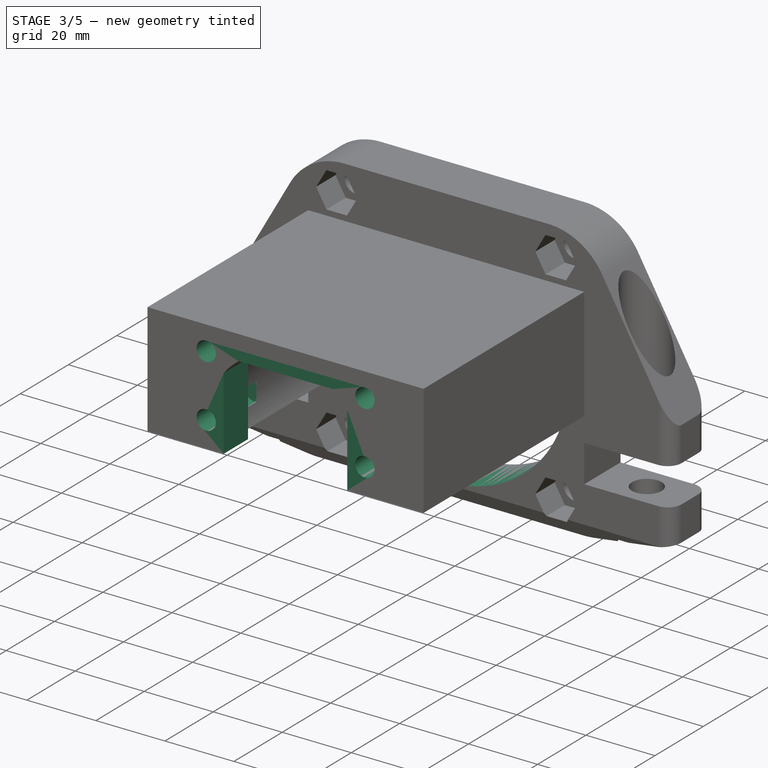
[diagram: stage 3 of 5 — iso view after this stage's code; geometry added in this stage tinted green]
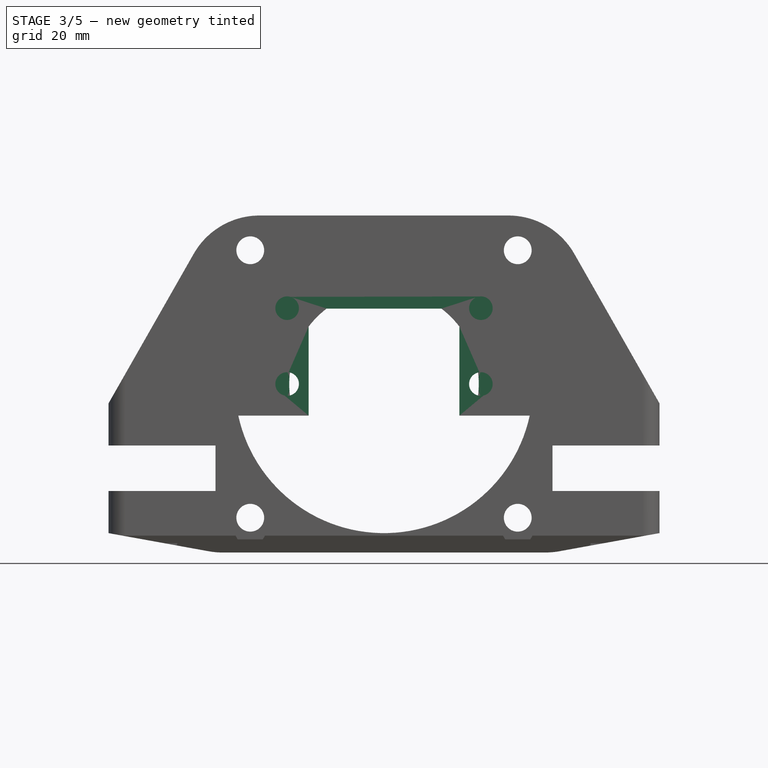
[diagram: stage 3 of 5 — front view after this stage's code; geometry added in this stage tinted green]
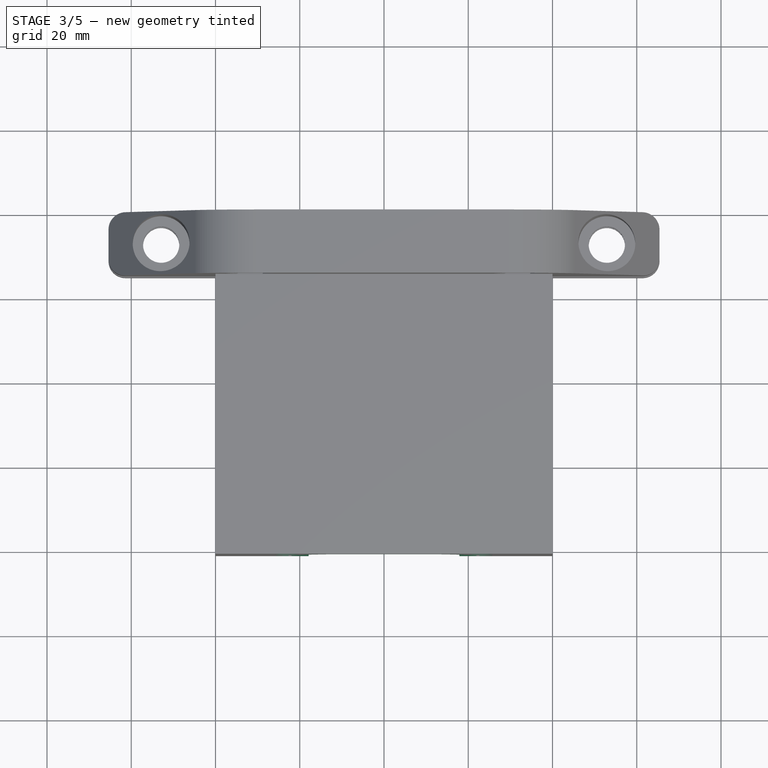
[diagram: stage 3 of 5 — top view after this stage's code; geometry added in this stage tinted green]
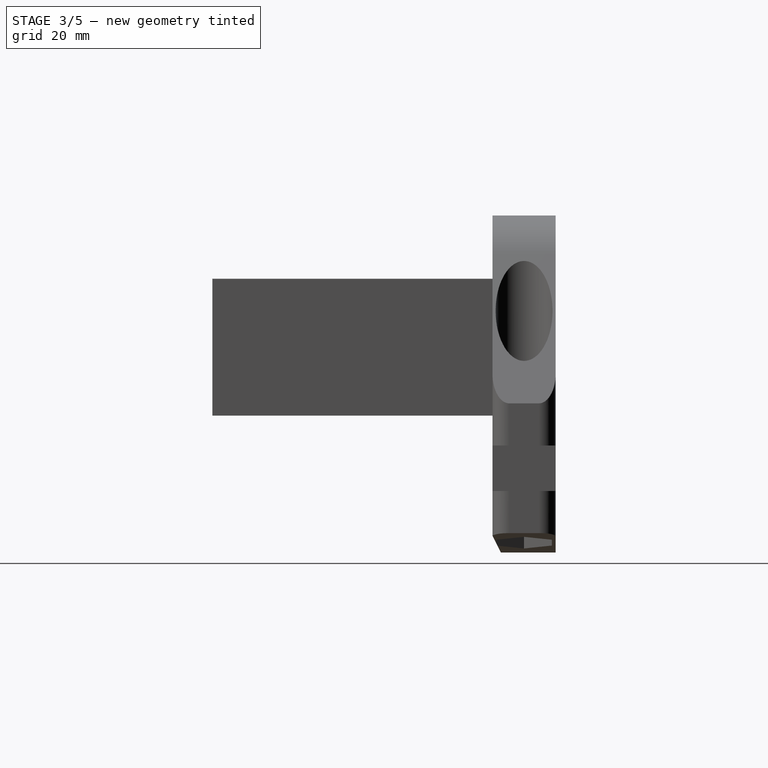
[diagram: stage 3 of 5 — right view after this stage's code; geometry added in this stage tinted green]
FEATURE [Sketcher::SketchObject] Sketch009
  ArcFitTolerance = 1e-06
  AttachmentSupport = -> [Pad001]
  FullyConstrained = true
  MakeInternals = false
  MapMode = 5
  Placement = pos=(0,-15,1.6e-15) rot=(1,0,0;1.5708rad)
  sketch-geometry (2):
    g0: ArcOfCircle CenterX=0 CenterY=20 CenterZ=0 NormalX=0 NormalY=0 NormalZ=1 AngleXU=0 Radius=35.4 StartAngle=3.35507 EndAngle=6.0697
    g1: LineSegment StartX=-34.5964 StartY=12.5 StartZ=0 EndX=34.5964 EndY=12.5 EndZ=0
  constraints (7):
    c: PointOnObject(g0,g-2)
    c: Coincident(g1,g0)
    c: Coincident(g1,g0)
    c: Horizontal(g1)
    c: DistanceY(g0) = 12.5
    c: Diameter(g0) = 70.8
    c: DistanceY(g0) = 20
FEATURE [PartDesign::Pocket] Pocket006
  BaseFeature = -> Pad001
  Direction = (0,1,-2e-16)
  Length = 5
  Length2 = 5
  Placement = pos=(0,0,0) rot=(1,0,0;1.5708rad)
  Profile = -> Sketch009
  ReferenceAxis = -> Sketch009 [N_Axis]
  Refine = true
  Suppressed = false
  Type = 1
FEATURE [Sketcher::SketchObject] Sketch010
  ArcFitTolerance = 1e-06
  AttachmentSupport = -> [Pocket006]
  FullyConstrained = true
  MakeInternals = false
  MapMode = 5
  Placement = pos=(0,-81.5,0) rot=(1,0,0;1.5708rad)
  sketch-geometry (20):
    g0: LineSegment [constr] StartX=-17.9 StartY=37.9 StartZ=0 EndX=-17.9 EndY=2.1 EndZ=0
    g1: LineSegment [constr] StartX=-17.9 StartY=2.1 StartZ=0 EndX=17.9 EndY=2.1 EndZ=0
    g2: LineSegment [constr] StartX=17.9 StartY=2.1 StartZ=0 EndX=17.9 EndY=37.9 EndZ=0
    g3: LineSegment [constr] StartX=17.9 StartY=37.9 StartZ=0 EndX=-17.9 EndY=37.9 EndZ=0
    g4: LineSegment [constr] StartX=-17.9 StartY=2.1 StartZ=0 EndX=17.9 EndY=37.9 EndZ=0
    g5: GeomPoint X=0 Y=20 Z=0
    g6: LineSegment [constr] StartX=-40 StartY=45 StartZ=0 EndX=-40 EndY=12.5 EndZ=0
    g7: LineSegment [constr] StartX=-40 StartY=12.5 StartZ=0 EndX=40 EndY=12.5 EndZ=0
    g8: LineSegment [constr] StartX=40 StartY=12.5 StartZ=0 EndX=40 EndY=45 EndZ=0
    g9: LineSegment [constr] StartX=40 StartY=45 StartZ=0 EndX=-40 EndY=45 EndZ=0
    g10: LineSegment [constr] StartX=-40 StartY=12.5 StartZ=0 EndX=40 EndY=45 EndZ=0
    g11: GeomPoint X=0 Y=28.75 Z=0
    g12: ArcOfCircle CenterX=0 CenterY=20 CenterZ=0 NormalX=0 NormalY=0 NormalZ=1 AngleXU=0 Radius=22.5 StartAngle=2.49072 EndAngle=3.48143
    g13: ArcOfCircle CenterX=0 CenterY=20 CenterZ=0 NormalX=0 NormalY=0 NormalZ=1 AngleXU=0 Radius=22.5 StartAngle=5.94335 EndAngle=6.93406
    g14: ArcOfCircle CenterX=0 CenterY=20 CenterZ=0 NormalX=0 NormalY=0 NormalZ=1 AngleXU=0 Radius=22.5 StartAngle=0.919924 EndAngle=2.22167
    g15: LineSegment StartX=-21.2132 StartY=12.5 StartZ=0 EndX=-17.9 EndY=12.5 EndZ=0
    g16: LineSegment StartX=-17.9 StartY=12.5 StartZ=0 EndX=-17.9 EndY=33.6323 EndZ=0
    g17: LineSegment StartX=-13.6323 StartY=37.9 StartZ=0 EndX=13.6323 EndY=37.9 EndZ=0
    g18: LineSegment StartX=17.9 StartY=33.6323 StartZ=0 EndX=17.9 EndY=12.5 EndZ=0
    g19: LineSegment StartX=21.2132 StartY=12.5 StartZ=0 EndX=17.9 EndY=12.5 EndZ=0
  constraints (54):
    c: Coincident(g0,g1)
    c: Coincident(g1,g2)
    c: Coincident(g2,g3)
    c: Coincident(g3,g0)
    c: Vertical(g0)
    c: Vertical(g2)
    c: Horizontal(g1)
    c: Horizontal(g3)
    c: Equal(g2,g3)
    c: DistanceX(g3,g3) = 35.8
    c: Coincident(g4,g0)
    c: Coincident(g4,g2)
    c: Symmetric(g4,g4,g5)
    c: PointOnObject(g5,g-2)
    c: DistanceY(g5) = 20
    c: Coincident(g6,g7)
    c: Coincident(g7,g8)
    c: Coincident(g8,g9)
    c: Coincident(g9,g6)
    c: Vertical(g6)
    c: Vertical(g8)
    c: Horizontal(g7)
    c: Horizontal(g9)
    c: Coincident(g10,g6)
    c: Coincident(g10,g8)
    c: DistanceY(g6) = 12.5
    c: DistanceY(g6,g6) = 32.5
    c: Symmetric(g10,g10,g11)
    c: PointOnObject(g11,g-2)
    c: DistanceX(g9,g9) = 80
    c: Coincident(g12,g5)
    c: PointOnObject(g12,g7)
    c: PointOnObject(g12,g0)
    c: Coincident(g13,g5)
    c: PointOnObject(g13,g2)
    c: PointOnObject(g13,g7)
    c: Coincident(g14,g5)
    c: PointOnObject(g14,g3)
    c: PointOnObject(g14,g3)
    c: Equal(g12,g14)
    c: Equal(g14,g13)
    c: Diameter(g12) = 45
    c: Coincident(g15,g12)
    c: PointOnObject(g15,g7)
    c: Coincident(g16,g15)
    c: Vertical(g16)
    c: Coincident(g17,g14)
    c: Coincident(g17,g14)
    c: Coincident(g18,g13)
    c: PointOnObject(g18,g7)
    c: Vertical(g18)
    c: Coincident(g19,g13)
    c: Coincident(g19,g18)
    c: Coincident(g16,g12)
FEATURE [PartDesign::Pad] Pad002
  BaseFeature = -> Pocket006
  Direction = (0,-1,2e-16)
  Length = 10
  Length2 = 10
  Placement = pos=(0,0,0) rot=(1,0,0;1.5708rad)
  Profile = -> Sketch010
  ReferenceAxis = -> Sketch010 [N_Axis]
  Refine = true
  Reversed = true
  Suppressed = false
  Type = 0
FEATURE [Sketcher::SketchObject] Sketch011
  ArcFitTolerance = 1e-06
  AttachmentSupport = -> [Pad002]
  FullyConstrained = true
  MakeInternals = false
  MapMode = 5
  Placement = pos=(0,-81.5,1.32e-14) rot=(1,0,0;1.5708rad)
  expr: Constraints[100] = Sketch007.Constraints[100]
  expr: Constraints[104] = Sketch007.Constraints[104]
  expr: Constraints[112] = Sketch007.Constraints[112]
  expr: Constraints[114] = Sketch007.Constraints[114]
  expr: Constraints[116] = Sketch007.Constraints[116]
  expr: Constraints[117] = Sketch007.Constraints[117]
  expr: Constraints[127] = Sketch007.Constraints[127]
  expr: Constraints[128] = Sketch007.Constraints[128]
  expr: Constraints[146] = Sketch007.Constraints[146]
  expr: Constraints[148] = Sketch007.Constraints[148]
  expr: Constraints[150] = Sketch007.Constraints[150]
  expr: Constraints[151] = Sketch007.Constraints[151]
  expr: Constraints[152] = Sketch007.Constraints[152]
  expr: Constraints[153] = Sketch007.Constraints[153]
  expr: Constraints[157] = Sketch007.Constraints[157]
  expr: Constraints[158] = Sketch007.Constraints[158]
  expr: Constraints[159] = Sketch007.Constraints[159]
  expr: Constraints[160] = Sketch007.Constraints[160]
  expr: Constraints[161] = Sketch007.Constraints[161]
  expr: Constraints[162] = Sketch007.Constraints[162]
  expr: Constraints[163] = Sketch007.Constraints[163]
  expr: Constraints[164] = Sketch007.Constraints[164]
  expr: Constraints[165] = Sketch007.Constraints[165]
  expr: Constraints[177] = Sketch007.Constraints[177]
  expr: Constraints[17] = Sketch007.Constraints[17]
  expr: Constraints[18] = Sketch007.Constraints[18]
  expr: Constraints[19] = Sketch007.Constraints[19]
  expr: Constraints[39] = Sketch007.Constraints[39]
  expr: Constraints[51] = Sketch007.Constraints[51]
  expr: Constraints[52] = Sketch007.Constraints[52]
  expr: Constraints[53] = Sketch007.Constraints[53]
  expr: Constraints[54] = Sketch007.Constraints[54]
  expr: Constraints[55] = Sketch007.Constraints[55]
  expr: Constraints[56] = Sketch007.Constraints[56]
  expr: Constraints[57] = Sketch007.Constraints[57]
  expr: Constraints[64] = Sketch007.Constraints[64]
  expr: Constraints[70] = Sketch007.Constraints[70]
  expr: Constraints[98] = Sketch007.Constraints[98]
  expr: Constraints[99] = Sketch007.Constraints[99]
  sketch-geometry (67):
    g0: LineSegment [constr] StartX=-136.6 StartY=5 StartZ=0 EndX=-136.6 EndY=-5 EndZ=0
    g1: LineSegment [constr] StartX=-136.6 StartY=-5 StartZ=0 EndX=-40 EndY=-5 EndZ=0
    g2: LineSegment [constr] StartX=-40 StartY=-5 StartZ=0 EndX=-40 EndY=5 EndZ=0
    g3: LineSegment [constr] StartX=-40 StartY=5 StartZ=0 EndX=-136.6 EndY=5 EndZ=0
    g4: LineSegment [constr] StartX=40 StartY=5 StartZ=0 EndX=40 EndY=-5 EndZ=0
    g5: LineSegment [constr] StartX=40 StartY=-5 StartZ=0 EndX=136.6 EndY=-5 EndZ=0
    g6: LineSegment [constr] StartX=136.6 StartY=-5 StartZ=0 EndX=136.6 EndY=5 EndZ=0
    g7: LineSegment [constr] StartX=136.6 StartY=5 StartZ=0 EndX=40 EndY=5 EndZ=0
    g8: LineSegment [constr] StartX=-40 StartY=-5 StartZ=0 EndX=0 EndY=0 EndZ=0
    g9: LineSegment [constr] StartX=0 StartY=0 StartZ=0 EndX=40 EndY=-5 EndZ=0
    g10: LineSegment [constr] StartX=-40 StartY=60 StartZ=0 EndX=-40 EndY=-20 EndZ=0
    g11: LineSegment [constr] StartX=-40 StartY=-20 StartZ=0 EndX=40 EndY=-20 EndZ=0
    g12: LineSegment [constr] StartX=40 StartY=-20 StartZ=0 EndX=40 EndY=60 EndZ=0
    g13: LineSegment [constr] StartX=40 StartY=60 StartZ=0 EndX=-40 EndY=60 EndZ=0
    g14: ArcOfCircle [constr] CenterX=-33 CenterY=53 CenterZ=0 NormalX=0 NormalY=0 NormalZ=1 AngleXU=0 Radius=7 StartAngle=1.5708 EndAngle=3.14159
    g15: ArcOfCircle [constr] CenterX=33 CenterY=53 CenterZ=0 NormalX=0 NormalY=0 NormalZ=1 AngleXU=0 Radius=7 StartAngle=0 EndAngle=1.5708
    g16: ArcOfCircle [constr] CenterX=33 CenterY=-13 CenterZ=0 NormalX=0 NormalY=0 NormalZ=1 AngleXU=0 Radius=7 StartAngle=4.71239 EndAngle=6.28319
    g17: ArcOfCircle [constr] CenterX=-33 CenterY=-13 CenterZ=0 NormalX=0 NormalY=0 NormalZ=1 AngleXU=0 Radius=7 StartAngle=3.14159 EndAngle=4.71239
    g18: Circle [constr] CenterX=-31.75 CenterY=51.75 CenterZ=0 NormalX=0 NormalY=0 NormalZ=1 AngleXU=0 Radius=3
    g19: Circle [constr] CenterX=31.75 CenterY=51.75 CenterZ=0 NormalX=0 NormalY=0 NormalZ=1 AngleXU=0 Radius=3
    g20: Circle [constr] CenterX=31.75 CenterY=-11.75 CenterZ=0 NormalX=0 NormalY=0 NormalZ=1 AngleXU=0 Radius=3
    g21: Circle [constr] CenterX=-31.75 CenterY=-11.75 CenterZ=0 NormalX=0 NormalY=0 NormalZ=1 AngleXU=0 Radius=3
    g22: LineSegment [constr] StartX=-40 StartY=-20 StartZ=0 EndX=-31.75 EndY=-11.75 EndZ=0
    g23: LineSegment [constr] StartX=31.75 StartY=-11.75 StartZ=0 EndX=40 EndY=-20 EndZ=0
    g24: LineSegment [constr] StartX=-40 StartY=60 StartZ=0 EndX=40 EndY=-20 EndZ=0
    g25: LineSegment [constr] StartX=-40 StartY=-20 StartZ=0 EndX=40 EndY=60 EndZ=0
    g26: Circle [constr] CenterX=5e-16 CenterY=20 CenterZ=0 NormalX=0 NormalY=0 NormalZ=1 AngleXU=0 Radius=35
    g27: LineSegment [constr] StartX=-65.4 StartY=5.4 StartZ=0 EndX=-65.4 EndY=15.4 EndZ=0
    g28: LineSegment [constr] StartX=-65.4 StartY=15.4 StartZ=0 EndX=-40 EndY=60 EndZ=0
    g29: LineSegment [constr] StartX=40 StartY=60 StartZ=0 EndX=65.4 EndY=15.4 EndZ=0
    g30: LineSegment [constr] StartX=65.4 StartY=15.4 StartZ=0 EndX=65.4 EndY=5.4 EndZ=0
    g31: LineSegment [constr] StartX=65.4 StartY=5.4 StartZ=0 EndX=40 EndY=5.4 EndZ=0
    g32: LineSegment [constr] StartX=40 StartY=5.4 StartZ=0 EndX=40 EndY=-5.4 EndZ=0
    g33: LineSegment [constr] StartX=40 StartY=-5.4 StartZ=0 EndX=65.4 EndY=-5.4 EndZ=0
    g34: LineSegment [constr] StartX=65.4 StartY=-5.4 StartZ=0 EndX=65.4 EndY=-15.4 EndZ=0
    g35: LineSegment [constr] StartX=65.4 StartY=-15.4 StartZ=0 EndX=40 EndY=-20 EndZ=0
    g36: LineSegment [constr] StartX=40 StartY=-20 StartZ=0 EndX=-40 EndY=-20 EndZ=0
    g37: LineSegment [constr] StartX=-40 StartY=-20 StartZ=0 EndX=-65.4 EndY=-15.4 EndZ=0
    g38: LineSegment [constr] StartX=-65.4 StartY=-15.4 StartZ=0 EndX=-65.4 EndY=-5.4 EndZ=0
    g39: LineSegment [constr] StartX=-65.4 StartY=-5.4 StartZ=0 EndX=-40 EndY=-5.4 EndZ=0
    g40: LineSegment [constr] StartX=-40 StartY=-5.4 StartZ=0 EndX=-40 EndY=5.4 EndZ=0
    g41: LineSegment [constr] StartX=-40 StartY=5.4 StartZ=0 EndX=-65.4 EndY=5.4 EndZ=0
    g42: Circle [constr] CenterX=5e-16 CenterY=20 CenterZ=0 NormalX=0 NormalY=0 NormalZ=1 AngleXU=0 Radius=35.4
    g43: Circle [constr] CenterX=-31.75 CenterY=51.75 CenterZ=0 NormalX=0 NormalY=0 NormalZ=1 AngleXU=0 Radius=3.3
    g44: Circle [constr] CenterX=31.75 CenterY=51.75 CenterZ=0 NormalX=0 NormalY=0 NormalZ=1 AngleXU=0 Radius=3.3
    g45: Circle [constr] CenterX=31.75 CenterY=-11.75 CenterZ=0 NormalX=0 NormalY=0 NormalZ=1 AngleXU=0 Radius=3.3
    g46: Circle [constr] CenterX=-31.75 CenterY=-11.75 CenterZ=0 NormalX=0 NormalY=0 NormalZ=1 AngleXU=0 Radius=3.3
    g47: LineSegment [constr] StartX=-40 StartY=60 StartZ=0 EndX=40 EndY=60 EndZ=0
    g48: Circle [constr] CenterX=5e-16 CenterY=20 CenterZ=0 NormalX=0 NormalY=0 NormalZ=1 AngleXU=0 Radius=17.5
    g49: LineSegment [constr] StartX=-30 StartY=45 StartZ=0 EndX=30 EndY=45 EndZ=0
    g50: LineSegment [constr] StartX=30 StartY=45 StartZ=0 EndX=30 EndY=12.5 EndZ=0
    g51: LineSegment [constr] StartX=30 StartY=12.5 StartZ=0 EndX=17 EndY=12.5 EndZ=0
    g52: LineSegment [constr] StartX=17 StartY=12.5 StartZ=0 EndX=17 EndY=2 EndZ=0
    g53: LineSegment [constr] StartX=17 StartY=2 StartZ=0 EndX=-17 EndY=2 EndZ=0
    g54: LineSegment [constr] StartX=-17 StartY=2 StartZ=0 EndX=-17 EndY=12.5 EndZ=0
    g55: LineSegment [constr] StartX=-17 StartY=12.5 StartZ=0 EndX=-30 EndY=12.5 EndZ=0
    g56: LineSegment [constr] StartX=-30 StartY=12.5 StartZ=0 EndX=-30 EndY=45 EndZ=0
    g57: Circle CenterX=-23 CenterY=20 CenterZ=0 NormalX=0 NormalY=0 NormalZ=1 AngleXU=0 Radius=2.8
    g58: Circle CenterX=-23 CenterY=38 CenterZ=0 NormalX=0 NormalY=0 NormalZ=1 AngleXU=0 Radius=2.8
    g59: Circle CenterX=23 CenterY=38 CenterZ=0 NormalX=0 NormalY=0 NormalZ=1 AngleXU=0 Radius=2.8
    g60: Circle CenterX=23 CenterY=20 CenterZ=0 NormalX=0 NormalY=0 NormalZ=1 AngleXU=0 Radius=2.8
    g61: LineSegment [constr] StartX=-40 StartY=45 StartZ=0 EndX=40 EndY=45 EndZ=0
    g62: LineSegment [constr] StartX=-21.2132 StartY=12.5 StartZ=0 EndX=-40 EndY=12.5 EndZ=0
    g63: LineSegment [constr] StartX=-40 StartY=12.5 StartZ=0 EndX=-40 EndY=45 EndZ=0
    g64: ArcOfCircle [constr] CenterX=5e-16 CenterY=20 CenterZ=0 NormalX=0 NormalY=0 NormalZ=1 AngleXU=0 Radius=22.5 StartAngle=5.94335 EndAngle=9.76461
    g65: LineSegment [constr] StartX=40 StartY=45 StartZ=0 EndX=40 EndY=12.5 EndZ=0
    g66: LineSegment [constr] StartX=40 StartY=12.5 StartZ=0 EndX=21.2132 EndY=12.5 EndZ=0
  constraints (184):
    c: Coincident(g0,g1)
    c: Coincident(g1,g2)
    c: Coincident(g2,g3)
    c: Coincident(g3,g0)
    c: Vertical(g0)
    c: Vertical(g2)
    c: Horizontal(g1)
    c: Horizontal(g3)
    c: Coincident(g4,g5)
    c: Coincident(g5,g6)
    c: Coincident(g6,g7)
    c: Coincident(g7,g4)
    c: Vertical(g4)
    c: Vertical(g6)
    c: Horizontal(g5)
    c: Horizontal(g7)
    c: Equal(g2,g4)
    c: DistanceY(g0,g0) = 10
    c: DistanceX(g2,g4) = 80
    c: DistanceY(g2,g4) = 0
    c: Coincident(g8,g1)
    c: Coincident(g8,g-1)
    c: Coincident(g9,g8)
    c: Coincident(g9,g4)
    c: Equal(g9,g8)
    c: Coincident(g10,g11)
    c: Coincident(g11,g12)
    c: Coincident(g12,g13)
    c: Coincident(g13,g10)
    c: Vertical(g10)
    c: Vertical(g12)
    c: Horizontal(g11)
    c: Horizontal(g13)
    c: PointOnObject(g2,g10)
    c: PointOnObject(g4,g12)
    c: Equal(g13,g10)
    c: Equal(g16,g17)
    c: Equal(g17,g14)
    c: Equal(g14,g15)
    c: Diameter(g14) = 14
    c: Tangent(g14,g13) = -1.5708
    c: Tangent(g14,g10) = -1.5708
    c: Tangent(g15,g12) = -1.5708
    c: Tangent(g15,g13) = -1.5708
    c: Tangent(g17,g10) = -1.5708
    c: Tangent(g17,g11) = -1.5708
    c: Tangent(g16,g11) = -1.5708
    c: Tangent(g16,g12) = -1.5708
    c: Equal(g21,g20)
    c: Equal(g20,g19)
    c: Equal(g19,g18)
    c: Diameter(g18) = 6
    c: DistanceX(g18,g19) = 63.5
    c: DistanceY(g21,g18) = 63.5
    c: DistanceY(g21,g20) = 0
    c: DistanceY(g19,g18) = 0
    c: DistanceX(g18,g21) = 0
    c: DistanceX(g20,g19) = 0
    c: Coincident(g22,g10)
    c: Coincident(g22,g21)
    c: PointOnObject(g17,g22)
    c: Coincident(g23,g20)
    c: Coincident(g23,g11)
    c: PointOnObject(g16,g23)
    c: DistanceY(g2) = 5
    c: Coincident(g24,g10)
    c: Coincident(g24,g11)
    c: Coincident(g25,g10)
    c: Coincident(g25,g12)
    c: Symmetric(g25,g25,g26)
    c: Diameter(g26) = 70
    c: Vertical(g27)
    c: Coincident(g27,g28)
    c: Coincident(g28,g10)
    c: Coincident(g29,g30)
    c: Vertical(g30)
    c: Coincident(g30,g31)
    c: Horizontal(g31)
    c: Coincident(g31,g32)
    c: Vertical(g32)
    c: Coincident(g32,g33)
    c: Horizontal(g33)
    c: Coincident(g33,g34)
    c: Vertical(g34)
    c: Coincident(g34,g35)
    c: Coincident(g35,g11)
    c: Coincident(g35,g36)
    c: Coincident(g36,g10)
    c: Coincident(g10,g37)
    c: Coincident(g37,g38)
    c: Vertical(g38)
    c: Coincident(g38,g39)
    c: Horizontal(g39)
    c: Coincident(g39,g40)
    c: Vertical(g40)
    c: Coincident(g40,g41)
    c: Coincident(g41,g27)
    c: Horizontal(g41)
    c: DistanceY(g0,g27) = 0.4
    c: DistanceX(g2,g40) = 0
    c: DistanceY(g39,g1) = 0.4
    c: Equal(g39,g41)
    c: Equal(g41,g33)
    c: Equal(g33,g31)
    c: DistanceY(g27,g27) = 10
    c: Equal(g27,g38)
    c: Equal(g38,g34)
    c: Equal(g34,g30)
    c: Equal(g32,g40)
    c: Equal(g29,g28)
    c: Equal(g35,g37)
    c: Coincident(g42,g26)
    c: Diameter(g42) = 70.8
    c: Coincident(g29,g12)
    c: DistanceX(g1,g1) = 96.6
    c: Equal(g1,g5)
    c: DistanceY(g10,g1) = 15
    c: Diameter(g43) = 6.6
    c: Coincident(g43,g18)
    c: Coincident(g44,g19)
    c: Coincident(g45,g20)
    c: Coincident(g46,g21)
    c: Equal(g46,g45)
    c: Equal(g45,g44)
    c: Equal(g44,g43)
    c: Coincident(g47,g10)
    c: Coincident(g47,g12)
    c: DistanceX(g41,g41) = 25.4
    c: Diameter(g48) = 35
    c: Coincident(g48,g26)
    c: Horizontal(g49)
    c: Coincident(g49,g50)
    c: Vertical(g50)
    c: Coincident(g50,g51)
    c: Horizontal(g51)
    c: Coincident(g51,g52)
    c: Vertical(g52)
    c: Coincident(g52,g53)
    c: Horizontal(g53)
    c: Coincident(g53,g54)
    c: Vertical(g54)
    c: Coincident(g54,g55)
    c: Horizontal(g55)
    c: Coincident(g55,g56)
    c: Coincident(g56,g49)
    c: Vertical(g56)
    c: DistanceX(g49,g49) = 60
    c: Equal(g56,g50)
    c: DistanceY(g53,g49) = 43
    c: Equal(g55,g51)
    c: DistanceY(g54,g54) = 10.5
    c: DistanceX(g55,g55) = 13
    c: DistanceY(g49,g14) = 15
    c: DistanceX(g49,g26) = 30
    c: Equal(g60,g59)
    c: Equal(g60,g58)
    c: Equal(g60,g57)
    c: Diameter(g60) = 5.6
    c: DistanceX(g57,g60) = 46
    c: DistanceY(g60,g57) = 0
    c: DistanceX(g57) = -23
    c: DistanceY(g57,g58) = 18
    c: DistanceX(g58,g57) = 0
    c: DistanceY(g58,g59) = 0
    c: DistanceX(g60,g59) = 0
    c: DistanceY(g57,g49) = 25
    c: PointOnObject(g61,g10)
    c: PointOnObject(g61,g12)
    c: Horizontal(g61)
    c: PointOnObject(g49,g61)
    c: PointOnObject(g62,g10)
    c: Horizontal(g62)
    c: Coincident(g63,g62)
    c: Coincident(g63,g61)
    c: PointOnObject(g55,g62)
    c: Coincident(g64,g26)
    c: Coincident(g64,g62)
    c: Diameter(g64) = 45
    c: Coincident(g65,g61)
    c: PointOnObject(g65,g12)
    c: Coincident(g66,g65)
    c: Coincident(g66,g64)
    c: Horizontal(g66)
    c: PointOnObject(g50,g66)
FEATURE [PartDesign::Pocket] Pocket007
  BaseFeature = -> Pad002
  Direction = (0,1,-2e-16)
  Length = 20
  Length2 = 5
  Placement = pos=(0,0,0) rot=(1,0,0;1.5708rad)
  Profile = -> Sketch011
  ReferenceAxis = -> Sketch011 [N_Axis]
  Refine = true
  Suppressed = false
  Type = 0
FEATURE [Sketcher::SketchObject] Sketch012
  ArcFitTolerance = 1e-06
  AttachmentOffset = pos=(0,0,-6) rot=(0,0,1;0rad)
  AttachmentSupport = -> [Pocket007]
  FullyConstrained = true
  MakeInternals = false
  MapMode = 5
  Placement = pos=(0,-75.5,1.18e-14) rot=(1,0,0;1.5708rad)
  expr: Constraints[100] = Sketch011.Constraints[100]
  expr: Constraints[104] = Sketch011.Constraints[104]
  expr: Constraints[112] = Sketch011.Constraints[112]
  expr: Constraints[114] = Sketch011.Constraints[114]
  expr: Constraints[116] = Sketch011.Constraints[116]
  expr: Constraints[117] = Sketch011.Constraints[117]
  expr: Constraints[127] = Sketch011.Constraints[127]
  expr: Constraints[128] = Sketch011.Constraints[128]
  expr: Constraints[146] = Sketch011.Constraints[146]
  expr: Constraints[148] = Sketch011.Constraints[148]
  expr: Constraints[150] = Sketch011.Constraints[150]
  expr: Constraints[151] = Sketch011.Constraints[151]
  expr: Constraints[152] = Sketch011.Constraints[152]
  expr: Constraints[153] = Sketch011.Constraints[153]
  expr: Constraints[157] = Sketch011.Constraints[157]
  expr: Constraints[158] = Sketch011.Constraints[158]
  expr: Constraints[159] = Sketch011.Constraints[159]
  expr: Constraints[160] = Sketch011.Constraints[160]
  expr: Constraints[161] = Sketch011.Constraints[161]
  expr: Constraints[162] = Sketch011.Constraints[162]
  expr: Constraints[163] = Sketch011.Constraints[163]
  expr: Constraints[164] = Sketch011.Constraints[164]
  expr: Constraints[165] = Sketch011.Constraints[165]
  expr: Constraints[177] = Sketch011.Constraints[177]
  expr: Constraints[17] = Sketch011.Constraints[17]
  expr: Constraints[18] = Sketch011.Constraints[18]
  expr: Constraints[19] = Sketch011.Constraints[19]
  expr: Constraints[39] = Sketch011.Constraints[39]
  expr: Constraints[51] = Sketch011.Constraints[51]
  expr: Constraints[52] = Sketch011.Constraints[52]
  expr: Constraints[53] = Sketch011.Constraints[53]
  expr: Constraints[54] = Sketch011.Constraints[54]
  expr: Constraints[55] = Sketch011.Constraints[55]
  expr: Constraints[56] = Sketch011.Constraints[56]
  expr: Constraints[57] = Sketch011.Constraints[57]
  expr: Constraints[64] = Sketch011.Constraints[64]
  expr: Constraints[70] = Sketch011.Constraints[70]
  expr: Constraints[98] = Sketch011.Constraints[98]
  expr: Constraints[99] = Sketch011.Constraints[99]
  sketch-geometry (95):
    g0: LineSegment [constr] StartX=-136.6 StartY=5 StartZ=0 EndX=-136.6 EndY=-5 EndZ=0
    g1: LineSegment [constr] StartX=-136.6 StartY=-5 StartZ=0 EndX=-40 EndY=-5 EndZ=0
    g2: LineSegment [constr] StartX=-40 StartY=-5 StartZ=0 EndX=-40 EndY=5 EndZ=0
    g3: LineSegment [constr] StartX=-40 StartY=5 StartZ=0 EndX=-136.6 EndY=5 EndZ=0
    g4: LineSegment [constr] StartX=40 StartY=5 StartZ=0 EndX=40 EndY=-5 EndZ=0
    g5: LineSegment [constr] StartX=40 StartY=-5 StartZ=0 EndX=136.6 EndY=-5 EndZ=0
    g6: LineSegment [constr] StartX=136.6 StartY=-5 StartZ=0 EndX=136.6 EndY=5 EndZ=0
    g7: LineSegment [constr] StartX=136.6 StartY=5 StartZ=0 EndX=40 EndY=5 EndZ=0
    g8: LineSegment [constr] StartX=-40 StartY=-5 StartZ=0 EndX=0 EndY=0 EndZ=0
    g9: LineSegment [constr] StartX=0 StartY=0 StartZ=0 EndX=40 EndY=-5 EndZ=0
    g10: LineSegment [constr] StartX=-40 StartY=60 StartZ=0 EndX=-40 EndY=-20 EndZ=0
    g11: LineSegment [constr] StartX=-40 StartY=-20 StartZ=0 EndX=40 EndY=-20 EndZ=0
    g12: LineSegment [constr] StartX=40 StartY=-20 StartZ=0 EndX=40 EndY=60 EndZ=0
    g13: LineSegment [constr] StartX=40 StartY=60 StartZ=0 EndX=-40 EndY=60 EndZ=0
    g14: ArcOfCircle [constr] CenterX=-33 CenterY=53 CenterZ=0 NormalX=0 NormalY=0 NormalZ=1 AngleXU=0 Radius=7 StartAngle=1.5708 EndAngle=3.14159
    g15: ArcOfCircle [constr] CenterX=33 CenterY=53 CenterZ=0 NormalX=0 NormalY=0 NormalZ=1 AngleXU=0 Radius=7 StartAngle=0 EndAngle=1.5708
    g16: ArcOfCircle [constr] CenterX=33 CenterY=-13 CenterZ=0 NormalX=0 NormalY=0 NormalZ=1 AngleXU=0 Radius=7 StartAngle=4.71239 EndAngle=6.28319
    g17: ArcOfCircle [constr] CenterX=-33 CenterY=-13 CenterZ=0 NormalX=0 NormalY=0 NormalZ=1 AngleXU=0 Radius=7 StartAngle=3.14159 EndAngle=4.71239
    g18: Circle [constr] CenterX=-31.75 CenterY=51.75 CenterZ=0 NormalX=0 NormalY=0 NormalZ=1 AngleXU=0 Radius=3
    g19: Circle [constr] CenterX=31.75 CenterY=51.75 CenterZ=0 NormalX=0 NormalY=0 NormalZ=1 AngleXU=0 Radius=3
    g20: Circle [constr] CenterX=31.75 CenterY=-11.75 CenterZ=0 NormalX=0 NormalY=0 NormalZ=1 AngleXU=0 Radius=3
    g21: Circle [constr] CenterX=-31.75 CenterY=-11.75 CenterZ=0 NormalX=0 NormalY=0 NormalZ=1 AngleXU=0 Radius=3
    g22: LineSegment [constr] StartX=-40 StartY=-20 StartZ=0 EndX=-31.75 EndY=-11.75 EndZ=0
    g23: LineSegment [constr] StartX=31.75 StartY=-11.75 StartZ=0 EndX=40 EndY=-20 EndZ=0
    g24: LineSegment [constr] StartX=-40 StartY=60 StartZ=0 EndX=40 EndY=-20 EndZ=0
    g25: LineSegment [constr] StartX=-40 StartY=-20 StartZ=0 EndX=40 EndY=60 EndZ=0
    g26: Circle [constr] CenterX=1.8e-15 CenterY=20 CenterZ=0 NormalX=0 NormalY=0 NormalZ=1 AngleXU=0 Radius=35
    g27: LineSegment [constr] StartX=-65.4 StartY=5.4 StartZ=0 EndX=-65.4 EndY=15.4 EndZ=0
    g28: LineSegment [constr] StartX=-65.4 StartY=15.4 StartZ=0 EndX=-40 EndY=60 EndZ=0
    g29: LineSegment [constr] StartX=40 StartY=60 StartZ=0 EndX=65.4 EndY=15.4 EndZ=0
    g30: LineSegment [constr] StartX=65.4 StartY=15.4 StartZ=0 EndX=65.4 EndY=5.4 EndZ=0
    g31: LineSegment [constr] StartX=65.4 StartY=5.4 StartZ=0 EndX=40 EndY=5.4 EndZ=0
    g32: LineSegment [constr] StartX=40 StartY=5.4 StartZ=0 EndX=40 EndY=-5.4 EndZ=0
    g33: LineSegment [constr] StartX=40 StartY=-5.4 StartZ=0 EndX=65.4 EndY=-5.4 EndZ=0
    g34: LineSegment [constr] StartX=65.4 StartY=-5.4 StartZ=0 EndX=65.4 EndY=-15.4 EndZ=0
    g35: LineSegment [constr] StartX=65.4 StartY=-15.4 StartZ=0 EndX=40 EndY=-20 EndZ=0
    g36: LineSegment [constr] StartX=40 StartY=-20 StartZ=0 EndX=-40 EndY=-20 EndZ=0
    g37: LineSegment [constr] StartX=-40 StartY=-20 StartZ=0 EndX=-65.4 EndY=-15.4 EndZ=0
    g38: LineSegment [constr] StartX=-65.4 StartY=-15.4 StartZ=0 EndX=-65.4 EndY=-5.4 EndZ=0
    g39: LineSegment [constr] StartX=-65.4 StartY=-5.4 StartZ=0 EndX=-40 EndY=-5.4 EndZ=0
    g40: LineSegment [constr] StartX=-40 StartY=-5.4 StartZ=0 EndX=-40 EndY=5.4 EndZ=0
    g41: LineSegment [constr] StartX=-40 StartY=5.4 StartZ=0 EndX=-65.4 EndY=5.4 EndZ=0
    g42: Circle [constr] CenterX=1.8e-15 CenterY=20 CenterZ=0 NormalX=0 NormalY=0 NormalZ=1 AngleXU=0 Radius=35.4
    g43: Circle [constr] CenterX=-31.75 CenterY=51.75 CenterZ=0 NormalX=0 NormalY=0 NormalZ=1 AngleXU=0 Radius=3.3
    g44: Circle [constr] CenterX=31.75 CenterY=51.75 CenterZ=0 NormalX=0 NormalY=0 NormalZ=1 AngleXU=0 Radius=3.3
    g45: Circle [constr] CenterX=31.75 CenterY=-11.75 CenterZ=0 NormalX=0 NormalY=0 NormalZ=1 AngleXU=0 Radius=3.3
    g46: Circle [constr] CenterX=-31.75 CenterY=-11.75 CenterZ=0 NormalX=0 NormalY=0 NormalZ=1 AngleXU=0 Radius=3.3
    g47: LineSegment [constr] StartX=-40 StartY=60 StartZ=0 EndX=40 EndY=60 EndZ=0
    g48: Circle [constr] CenterX=1.8e-15 CenterY=20 CenterZ=0 NormalX=0 NormalY=0 NormalZ=1 AngleXU=0 Radius=17.5
    g49: LineSegment [constr] StartX=-30 StartY=45 StartZ=0 EndX=30 EndY=45 EndZ=0
    g50: LineSegment [constr] StartX=30 StartY=45 StartZ=0 EndX=30 EndY=12.5 EndZ=0
    g51: LineSegment [constr] StartX=30 StartY=12.5 StartZ=0 EndX=17 EndY=12.5 EndZ=0
    g52: LineSegment [constr] StartX=17 StartY=12.5 StartZ=0 EndX=17 EndY=2 EndZ=0
    g53: LineSegment [constr] StartX=17 StartY=2 StartZ=0 EndX=-17 EndY=2 EndZ=0
    g54: LineSegment [constr] StartX=-17 StartY=2 StartZ=0 EndX=-17 EndY=12.5 EndZ=0
    g55: LineSegment [constr] StartX=-17 StartY=12.5 StartZ=0 EndX=-30 EndY=12.5 EndZ=0
    g56: LineSegment [constr] StartX=-30 StartY=12.5 StartZ=0 EndX=-30 EndY=45 EndZ=0
    g57: Circle [constr] CenterX=-23 CenterY=20 CenterZ=0 NormalX=0 NormalY=0 NormalZ=1 AngleXU=0 Radius=2.8
    g58: Circle [constr] CenterX=-23 CenterY=38 CenterZ=0 NormalX=0 NormalY=0 NormalZ=1 AngleXU=0 Radius=2.8
    g59: Circle [constr] CenterX=23 CenterY=38 CenterZ=0 NormalX=0 NormalY=0 NormalZ=1 AngleXU=0 Radius=2.8
    g60: Circle [constr] CenterX=23 CenterY=20 CenterZ=0 NormalX=0 NormalY=0 NormalZ=1 AngleXU=0 Radius=2.8
    g61: LineSegment [constr] StartX=-40 StartY=45 StartZ=0 EndX=40 EndY=45 EndZ=0
    g62: LineSegment [constr] StartX=-21.2132 StartY=12.5 StartZ=0 EndX=-40 EndY=12.5 EndZ=0
    g63: LineSegment [constr] StartX=-40 StartY=12.5 StartZ=0 EndX=-40 EndY=45 EndZ=0
    g64: ArcOfCircle [constr] CenterX=1.8e-15 CenterY=20 CenterZ=0 NormalX=0 NormalY=0 NormalZ=1 AngleXU=0 Radius=22.5 StartAngle=5.94335 EndAngle=9.76461
    g65: LineSegment [constr] StartX=40 StartY=45 StartZ=0 EndX=40 EndY=12.5 EndZ=0
    g66: LineSegment [constr] StartX=40 StartY=12.5 StartZ=0 EndX=21.2132 EndY=12.5 EndZ=0
    g67: LineSegment StartX=-18.85 StartY=35.604 StartZ=0 EndX=-18.85 EndY=40.396 EndZ=0
    g68: LineSegment StartX=-18.85 StartY=40.396 StartZ=0 EndX=-23 EndY=42.792 EndZ=0
    g69: LineSegment StartX=-23 StartY=42.792 StartZ=0 EndX=-27.15 EndY=40.396 EndZ=0
    g70: LineSegment StartX=-27.15 StartY=40.396 StartZ=0 EndX=-27.15 EndY=35.604 EndZ=0
    g71: LineSegment StartX=-27.15 StartY=35.604 StartZ=0 EndX=-23 EndY=33.208 EndZ=0
    g72: LineSegment StartX=-23 StartY=33.208 StartZ=0 EndX=-18.85 EndY=35.604 EndZ=0
    g73: Circle [constr] CenterX=-23 CenterY=38 CenterZ=0 NormalX=0 NormalY=0 NormalZ=1 AngleXU=0 Radius=4.79201
    g74: LineSegment StartX=27.15 StartY=40.396 StartZ=0 EndX=23 EndY=42.792 EndZ=0
    g75: LineSegment StartX=23 StartY=42.792 StartZ=0 EndX=18.85 EndY=40.396 EndZ=0
    g76: LineSegment StartX=18.85 StartY=40.396 StartZ=0 EndX=18.85 EndY=35.604 EndZ=0
    g77: LineSegment StartX=18.85 StartY=35.604 StartZ=0 EndX=23 EndY=33.208 EndZ=0
    g78: LineSegment StartX=23 StartY=33.208 StartZ=0 EndX=27.15 EndY=35.604 EndZ=0
    g79: LineSegment StartX=27.15 StartY=35.604 StartZ=0 EndX=27.15 EndY=40.396 EndZ=0
    g80: Circle [constr] CenterX=23 CenterY=38 CenterZ=0 NormalX=0 NormalY=0 NormalZ=1 AngleXU=0 Radius=4.79201
    g81: LineSegment StartX=27.15 StartY=22.396 StartZ=0 EndX=23 EndY=24.792 EndZ=0
    g82: LineSegment StartX=23 StartY=24.792 StartZ=0 EndX=18.85 EndY=22.396 EndZ=0
    g83: LineSegment StartX=18.85 StartY=22.396 StartZ=0 EndX=18.85 EndY=17.604 EndZ=0
    g84: LineSegment StartX=18.85 StartY=17.604 StartZ=0 EndX=23 EndY=15.208 EndZ=0
    g85: LineSegment StartX=23 StartY=15.208 StartZ=0 EndX=27.15 EndY=17.604 EndZ=0
    g86: LineSegment StartX=27.15 StartY=17.604 StartZ=0 EndX=27.15 EndY=22.396 EndZ=0
    g87: Circle [constr] CenterX=23 CenterY=20 CenterZ=0 NormalX=0 NormalY=0 NormalZ=1 AngleXU=0 Radius=4.79201
    g88: LineSegment StartX=-27.15 StartY=22.396 StartZ=0 EndX=-27.15 EndY=17.604 EndZ=0
    g89: LineSegment StartX=-27.15 StartY=17.604 StartZ=0 EndX=-23 EndY=15.208 EndZ=0
    g90: LineSegment StartX=-23 StartY=15.208 StartZ=0 EndX=-18.85 EndY=17.604 EndZ=0
    g91: LineSegment StartX=-18.85 StartY=17.604 StartZ=0 EndX=-18.85 EndY=22.396 EndZ=0
    g92: LineSegment StartX=-18.85 StartY=22.396 StartZ=0 EndX=-23 EndY=24.792 EndZ=0
    g93: LineSegment StartX=-23 StartY=24.792 StartZ=0 EndX=-27.15 EndY=22.396 EndZ=0
    g94: Circle [constr] CenterX=-23 CenterY=20 CenterZ=0 NormalX=0 NormalY=0 NormalZ=1 AngleXU=0 Radius=4.79201
  constraints (248):
    c: Coincident(g0,g1)
    c: Coincident(g1,g2)
    c: Coincident(g2,g3)
    c: Coincident(g3,g0)
    c: Vertical(g0)
    c: Vertical(g2)
    c: Horizontal(g1)
    c: Horizontal(g3)
    c: Coincident(g4,g5)
    c: Coincident(g5,g6)
    c: Coincident(g6,g7)
    c: Coincident(g7,g4)
    c: Vertical(g4)
    c: Vertical(g6)
    c: Horizontal(g5)
    c: Horizontal(g7)
    c: Equal(g2,g4)
    c: DistanceY(g0,g0) = 10
    c: DistanceX(g2,g4) = 80
    c: DistanceY(g2,g4) = 0
    c: Coincident(g8,g1)
    c: Coincident(g8,g-1)
    c: Coincident(g9,g8)
    c: Coincident(g9,g4)
    c: Equal(g9,g8)
    c: Coincident(g10,g11)
    c: Coincident(g11,g12)
    c: Coincident(g12,g13)
    c: Coincident(g13,g10)
    c: Vertical(g10)
    c: Vertical(g12)
    c: Horizontal(g11)
    c: Horizontal(g13)
    c: PointOnObject(g2,g10)
    c: PointOnObject(g4,g12)
    c: Equal(g13,g10)
    c: Equal(g16,g17)
    c: Equal(g17,g14)
    c: Equal(g14,g15)
    c: Diameter(g14) = 14
    c: Tangent(g14,g13) = -1.5708
    c: Tangent(g14,g10) = -1.5708
    c: Tangent(g15,g12) = -1.5708
    c: Tangent(g15,g13) = -1.5708
    c: Tangent(g17,g10) = -1.5708
    c: Tangent(g17,g11) = -1.5708
    c: Tangent(g16,g11) = -1.5708
    c: Tangent(g16,g12) = -1.5708
    c: Equal(g21,g20)
    c: Equal(g20,g19)
    c: Equal(g19,g18)
    c: Diameter(g18) = 6
    c: DistanceX(g18,g19) = 63.5
    c: DistanceY(g21,g18) = 63.5
    c: DistanceY(g21,g20) = 0
    c: DistanceY(g19,g18) = 0
    c: DistanceX(g18,g21) = 0
    c: DistanceX(g20,g19) = 0
    c: Coincident(g22,g10)
    c: Coincident(g22,g21)
    c: PointOnObject(g17,g22)
    c: Coincident(g23,g20)
    c: Coincident(g23,g11)
    c: PointOnObject(g16,g23)
    c: DistanceY(g2) = 5
    c: Coincident(g24,g10)
    c: Coincident(g24,g11)
    c: Coincident(g25,g10)
    c: Coincident(g25,g12)
    c: Symmetric(g25,g25,g26)
    c: Diameter(g26) = 70
    c: Vertical(g27)
    c: Coincident(g27,g28)
    c: Coincident(g28,g10)
    c: Coincident(g29,g30)
    c: Vertical(g30)
    c: Coincident(g30,g31)
    c: Horizontal(g31)
    c: Coincident(g31,g32)
    c: Vertical(g32)
    c: Coincident(g32,g33)
    c: Horizontal(g33)
    c: Coincident(g33,g34)
    c: Vertical(g34)
    c: Coincident(g34,g35)
    c: Coincident(g35,g11)
    c: Coincident(g35,g36)
    c: Coincident(g36,g10)
    c: Coincident(g10,g37)
    c: Coincident(g37,g38)
    c: Vertical(g38)
    c: Coincident(g38,g39)
    c: Horizontal(g39)
    c: Coincident(g39,g40)
    c: Vertical(g40)
    c: Coincident(g40,g41)
    c: Coincident(g41,g27)
    c: Horizontal(g41)
    c: DistanceY(g0,g27) = 0.4
    c: DistanceX(g2,g40) = 0
    c: DistanceY(g39,g1) = 0.4
    c: Equal(g39,g41)
    c: Equal(g41,g33)
    c: Equal(g33,g31)
    c: DistanceY(g27,g27) = 10
    c: Equal(g27,g38)
    c: Equal(g38,g34)
    c: Equal(g34,g30)
    c: Equal(g32,g40)
    c: Equal(g29,g28)
    c: Equal(g35,g37)
    c: Coincident(g42,g26)
    c: Diameter(g42) = 70.8
    c: Coincident(g29,g12)
    c: DistanceX(g1,g1) = 96.6
    c: Equal(g1,g5)
    c: DistanceY(g10,g1) = 15
    c: Diameter(g43) = 6.6
    c: Coincident(g43,g18)
    c: Coincident(g44,g19)
    c: Coincident(g45,g20)
    c: Coincident(g46,g21)
    c: Equal(g46,g45)
    c: Equal(g45,g44)
    c: Equal(g44,g43)
    c: Coincident(g47,g10)
    c: Coincident(g47,g12)
    c: DistanceX(g41,g41) = 25.4
    c: Diameter(g48) = 35
    c: Coincident(g48,g26)
    c: Horizontal(g49)
    c: Coincident(g49,g50)
    c: Vertical(g50)
    c: Coincident(g50,g51)
    c: Horizontal(g51)
    c: Coincident(g51,g52)
    c: Vertical(g52)
    c: Coincident(g52,g53)
    c: Horizontal(g53)
    c: Coincident(g53,g54)
    c: Vertical(g54)
    c: Coincident(g54,g55)
    c: Horizontal(g55)
    c: Coincident(g55,g56)
    c: Coincident(g56,g49)
    c: Vertical(g56)
    c: DistanceX(g49,g49) = 60
    c: Equal(g56,g50)
    c: DistanceY(g53,g49) = 43
    c: Equal(g55,g51)
    c: DistanceY(g54,g54) = 10.5
    c: DistanceX(g55,g55) = 13
    c: DistanceY(g49,g14) = 15
    c: DistanceX(g49,g26) = 30
    c: Equal(g60,g59)
    c: Equal(g60,g58)
    c: Equal(g60,g57)
    c: Diameter(g60) = 5.6
    c: DistanceX(g57,g60) = 46
    c: DistanceY(g60,g57) = 0
    c: DistanceX(g57) = -23
    c: DistanceY(g57,g58) = 18
    c: DistanceX(g58,g57) = 0
    c: DistanceY(g58,g59) = 0
    c: DistanceX(g60,g59) = 0
    c: DistanceY(g57,g49) = 25
    c: PointOnObject(g61,g10)
    c: PointOnObject(g61,g12)
    c: Horizontal(g61)
    c: PointOnObject(g49,g61)
    c: PointOnObject(g62,g10)
    c: Horizontal(g62)
    c: Coincident(g63,g62)
    c: Coincident(g63,g61)
    c: PointOnObject(g55,g62)
    c: Coincident(g64,g26)
    c: Coincident(g64,g62)
    c: Diameter(g64) = 45
    c: Coincident(g65,g61)
    c: PointOnObject(g65,g12)
    c: Coincident(g66,g65)
    c: Coincident(g66,g64)
    c: Horizontal(g66)
    c: PointOnObject(g50,g66)
    c: Coincident(g67,g68)
    c: Coincident(g68,g69)
    c: Coincident(g69,g70)
    c: Coincident(g70,g71)
    c: Coincident(g71,g72)
    c: Coincident(g72,g67)
    c: Equal(g67, g68-g72) x5
    c: PointOnObject(g67,g73)
    c: PointOnObject(g68,g73)
    c: PointOnObject(g69,g73)
    c: PointOnObject(g70,g73)
    c: PointOnObject(g71,g73)
    c: PointOnObject(g72,g73)
    c: Coincident(g73,g58)
    c: Coincident(g74,g75)
    c: Coincident(g75,g76)
    c: Coincident(g76,g77)
    c: Coincident(g77,g78)
    c: Coincident(g78,g79)
    c: Coincident(g79,g74)
    c: Equal(g74, g75-g79) x5
    c: PointOnObject(g74,g80)
    c: PointOnObject(g75,g80)
    c: PointOnObject(g76,g80)
    c: PointOnObject(g77,g80)
    c: PointOnObject(g78,g80)
    c: PointOnObject(g79,g80)
    c: Coincident(g80,g59)
    c: Coincident(g81,g82)
    c: Coincident(g82,g83)
    c: Coincident(g83,g84)
    c: Coincident(g84,g85)
    c: Coincident(g85,g86)
    c: Coincident(g86,g81)
    c: Equal(g81, g82-g86) x5
    c: PointOnObject(g81,g87)
    c: PointOnObject(g82,g87)
    c: PointOnObject(g83,g87)
    c: PointOnObject(g84,g87)
    c: PointOnObject(g85,g87)
    c: PointOnObject(g86,g87)
    c: Coincident(g87,g60)
    c: Coincident(g88,g89)
    c: Coincident(g89,g90)
    c: Coincident(g90,g91)
    c: Coincident(g91,g92)
    c: Coincident(g92,g93)
    c: Coincident(g93,g88)
    c: Equal(g88, g89-g93) x5
    c: PointOnObject(g88,g94)
    c: PointOnObject(g89,g94)
    c: PointOnObject(g90,g94)
    c: PointOnObject(g91,g94)
    c: PointOnObject(g92,g94)
    c: PointOnObject(g93,g94)
    c: Coincident(g94,g57)
    c: Vertical(g70)
    c: DistanceX(g69,g67) = 8.3
    c: Equal(g68,g74)
    c: Equal(g74,g81)
    c: Equal(g81,g92)
    c: Vertical(g88)
    c: Vertical(g83)
    c: Vertical(g76)
FEATURE [PartDesign::Pocket] Pocket008
  BaseFeature = -> Pocket007
  Direction = (0,1,-2e-16)
  Length = 4
  Length2 = 5
  Placement = pos=(0,0,0) rot=(1,0,0;1.5708rad)
  Profile = -> Sketch012
  ReferenceAxis = -> Sketch012 [N_Axis]
  Refine = true
  Suppressed = false
  Type = 0
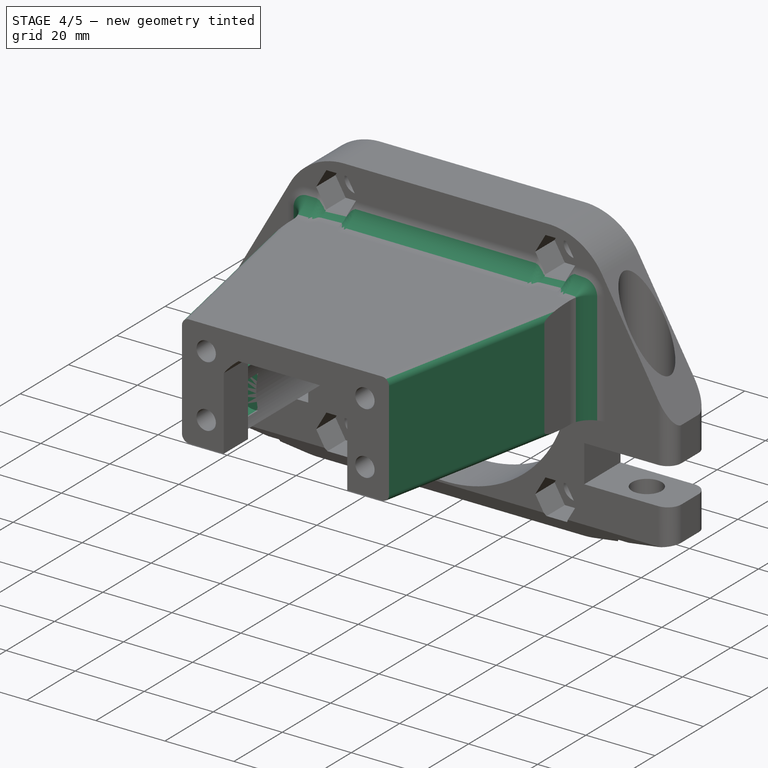
[diagram: stage 4 of 5 — iso view after this stage's code; geometry added in this stage tinted green]
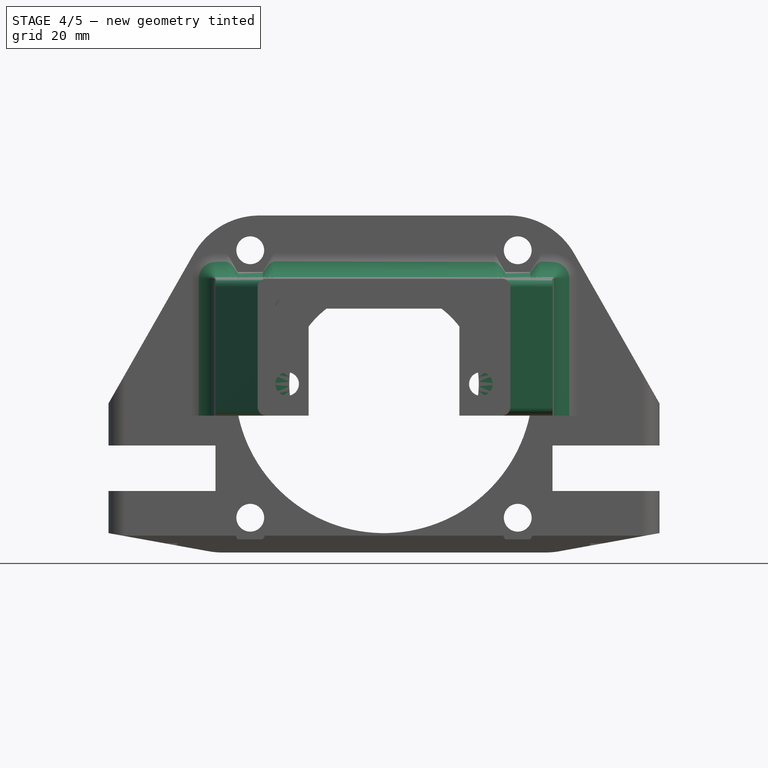
[diagram: stage 4 of 5 — front view after this stage's code; geometry added in this stage tinted green]
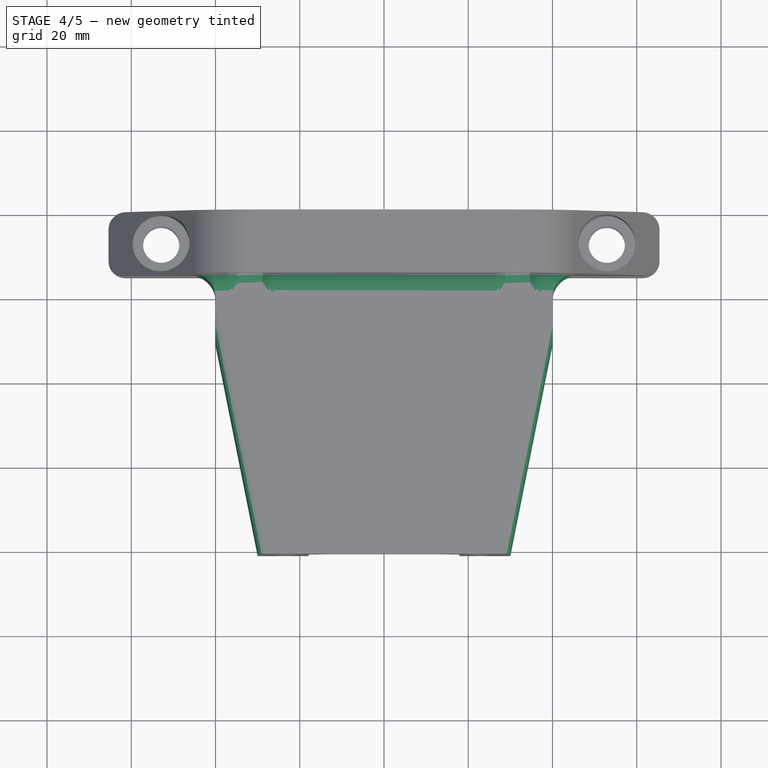
[diagram: stage 4 of 5 — top view after this stage's code; geometry added in this stage tinted green]
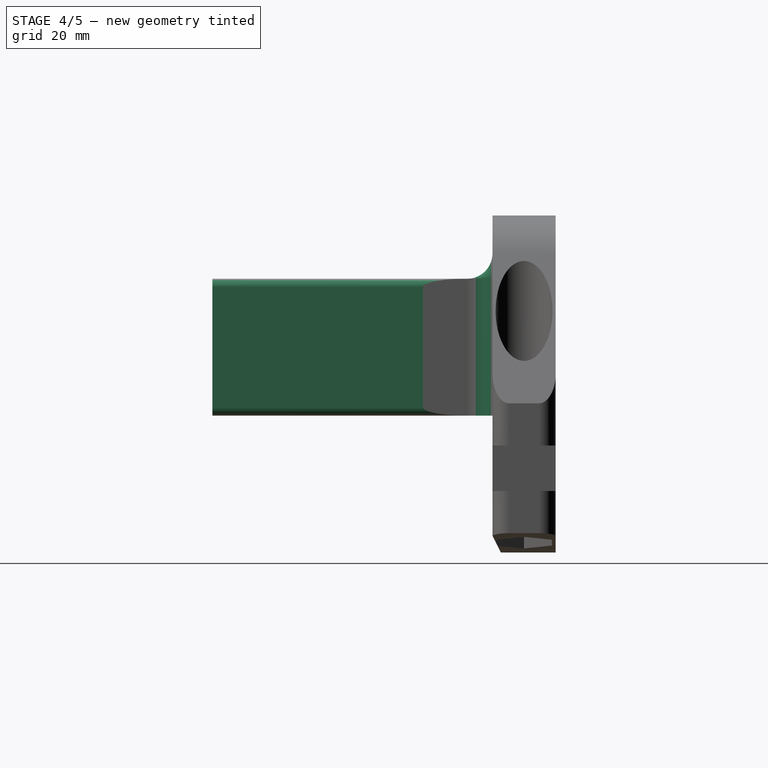
[diagram: stage 4 of 5 — right view after this stage's code; geometry added in this stage tinted green]
FEATURE [Sketcher::SketchObject] Sketch013
  ArcFitTolerance = 1e-06
  AttachmentOffset = pos=(0,0,-10) rot=(0,0,1;0rad)
  AttachmentSupport = -> [Pocket008]
  FullyConstrained = true
  MakeInternals = false
  MapMode = 5
  Placement = pos=(0,-71.5,1.09e-14) rot=(1,0,0;1.5708rad)
  expr: Constraints[100] = Sketch007.Constraints[100]
  expr: Constraints[104] = Sketch007.Constraints[104]
  expr: Constraints[112] = Sketch007.Constraints[112]
  expr: Constraints[114] = Sketch007.Constraints[114]
  expr: Constraints[116] = Sketch007.Constraints[116]
  expr: Constraints[117] = Sketch007.Constraints[117]
  expr: Constraints[127] = Sketch007.Constraints[127]
  expr: Constraints[128] = Sketch007.Constraints[128]
  expr: Constraints[146] = Sketch007.Constraints[146]
  expr: Constraints[148] = Sketch007.Constraints[148]
  expr: Constraints[150] = Sketch007.Constraints[150]
  expr: Constraints[151] = Sketch007.Constraints[151]
  expr: Constraints[152] = Sketch007.Constraints[152]
  expr: Constraints[153] = Sketch007.Constraints[153]
  expr: Constraints[157] = Sketch007.Constraints[157]
  expr: Constraints[158] = Sketch007.Constraints[158]
  expr: Constraints[159] = Sketch007.Constraints[159]
  expr: Constraints[160] = Sketch007.Constraints[160]
  expr: Constraints[161] = Sketch007.Constraints[161]
  expr: Constraints[162] = Sketch007.Constraints[162]
  expr: Constraints[163] = Sketch007.Constraints[163]
  expr: Constraints[164] = Sketch007.Constraints[164]
  expr: Constraints[165] = Sketch007.Constraints[165]
  expr: Constraints[177] = Sketch007.Constraints[177]
  expr: Constraints[17] = Sketch007.Constraints[17]
  expr: Constraints[18] = Sketch007.Constraints[18]
  expr: Constraints[19] = Sketch007.Constraints[19]
  expr: Constraints[39] = Sketch007.Constraints[39]
  expr: Constraints[51] = Sketch007.Constraints[51]
  expr: Constraints[52] = Sketch007.Constraints[52]
  expr: Constraints[53] = Sketch007.Constraints[53]
  expr: Constraints[54] = Sketch007.Constraints[54]
  expr: Constraints[55] = Sketch007.Constraints[55]
  expr: Constraints[56] = Sketch007.Constraints[56]
  expr: Constraints[57] = Sketch007.Constraints[57]
  expr: Constraints[64] = Sketch007.Constraints[64]
  expr: Constraints[70] = Sketch007.Constraints[70]
  expr: Constraints[98] = Sketch007.Constraints[98]
  expr: Constraints[99] = Sketch007.Constraints[99]
  sketch-geometry (71):
    g0: LineSegment [constr] StartX=-136.6 StartY=5 StartZ=0 EndX=-136.6 EndY=-5 EndZ=0
    g1: LineSegment [constr] StartX=-136.6 StartY=-5 StartZ=0 EndX=-40 EndY=-5 EndZ=0
    g2: LineSegment [constr] StartX=-40 StartY=-5 StartZ=0 EndX=-40 EndY=5 EndZ=0
    g3: LineSegment [constr] StartX=-40 StartY=5 StartZ=0 EndX=-136.6 EndY=5 EndZ=0
    g4: LineSegment [constr] StartX=40 StartY=5 StartZ=0 EndX=40 EndY=-5 EndZ=0
    g5: LineSegment [constr] StartX=40 StartY=-5 StartZ=0 EndX=136.6 EndY=-5 EndZ=0
    g6: LineSegment [constr] StartX=136.6 StartY=-5 StartZ=0 EndX=136.6 EndY=5 EndZ=0
    g7: LineSegment [constr] StartX=136.6 StartY=5 StartZ=0 EndX=40 EndY=5 EndZ=0
    g8: LineSegment [constr] StartX=-40 StartY=-5 StartZ=0 EndX=0 EndY=0 EndZ=0
    g9: LineSegment [constr] StartX=0 StartY=0 StartZ=0 EndX=40 EndY=-5 EndZ=0
    g10: LineSegment [constr] StartX=-40 StartY=60 StartZ=0 EndX=-40 EndY=-20 EndZ=0
    g11: LineSegment [constr] StartX=-40 StartY=-20 StartZ=0 EndX=40 EndY=-20 EndZ=0
    g12: LineSegment [constr] StartX=40 StartY=-20 StartZ=0 EndX=40 EndY=60 EndZ=0
    g13: LineSegment [constr] StartX=40 StartY=60 StartZ=0 EndX=-40 EndY=60 EndZ=0
    g14: ArcOfCircle [constr] CenterX=-33 CenterY=53 CenterZ=0 NormalX=0 NormalY=0 NormalZ=1 AngleXU=0 Radius=7 StartAngle=1.5708 EndAngle=3.14159
    g15: ArcOfCircle [constr] CenterX=33 CenterY=53 CenterZ=0 NormalX=0 NormalY=0 NormalZ=1 AngleXU=0 Radius=7 StartAngle=0 EndAngle=1.5708
    g16: ArcOfCircle [constr] CenterX=33 CenterY=-13 CenterZ=0 NormalX=0 NormalY=0 NormalZ=1 AngleXU=0 Radius=7 StartAngle=4.71239 EndAngle=6.28319
    g17: ArcOfCircle [constr] CenterX=-33 CenterY=-13 CenterZ=0 NormalX=0 NormalY=0 NormalZ=1 AngleXU=0 Radius=7 StartAngle=3.14159 EndAngle=4.71239
    g18: Circle [constr] CenterX=-31.75 CenterY=51.75 CenterZ=0 NormalX=0 NormalY=0 NormalZ=1 AngleXU=0 Radius=3
    g19: Circle [constr] CenterX=31.75 CenterY=51.75 CenterZ=0 NormalX=0 NormalY=0 NormalZ=1 AngleXU=0 Radius=3
    g20: Circle [constr] CenterX=31.75 CenterY=-11.75 CenterZ=0 NormalX=0 NormalY=0 NormalZ=1 AngleXU=0 Radius=3
    g21: Circle [constr] CenterX=-31.75 CenterY=-11.75 CenterZ=0 NormalX=0 NormalY=0 NormalZ=1 AngleXU=0 Radius=3
    g22: LineSegment [constr] StartX=-40 StartY=-20 StartZ=0 EndX=-31.75 EndY=-11.75 EndZ=0
    g23: LineSegment [constr] StartX=31.75 StartY=-11.75 StartZ=0 EndX=40 EndY=-20 EndZ=0
    g24: LineSegment [constr] StartX=-40 StartY=60 StartZ=0 EndX=40 EndY=-20 EndZ=0
    g25: LineSegment [constr] StartX=-40 StartY=-20 StartZ=0 EndX=40 EndY=60 EndZ=0
    g26: Circle [constr] CenterX=5e-16 CenterY=20 CenterZ=0 NormalX=0 NormalY=0 NormalZ=1 AngleXU=0 Radius=35
    g27: LineSegment [constr] StartX=-65.4 StartY=5.4 StartZ=0 EndX=-65.4 EndY=15.4 EndZ=0
    g28: LineSegment [constr] StartX=-65.4 StartY=15.4 StartZ=0 EndX=-40 EndY=60 EndZ=0
    g29: LineSegment [constr] StartX=40 StartY=60 StartZ=0 EndX=65.4 EndY=15.4 EndZ=0
    g30: LineSegment [constr] StartX=65.4 StartY=15.4 StartZ=0 EndX=65.4 EndY=5.4 EndZ=0
    g31: LineSegment [constr] StartX=65.4 StartY=5.4 StartZ=0 EndX=40 EndY=5.4 EndZ=0
    g32: LineSegment [constr] StartX=40 StartY=5.4 StartZ=0 EndX=40 EndY=-5.4 EndZ=0
    g33: LineSegment [constr] StartX=40 StartY=-5.4 StartZ=0 EndX=65.4 EndY=-5.4 EndZ=0
    g34: LineSegment [constr] StartX=65.4 StartY=-5.4 StartZ=0 EndX=65.4 EndY=-15.4 EndZ=0
    g35: LineSegment [constr] StartX=65.4 StartY=-15.4 StartZ=0 EndX=40 EndY=-20 EndZ=0
    g36: LineSegment [constr] StartX=40 StartY=-20 StartZ=0 EndX=-40 EndY=-20 EndZ=0
    g37: LineSegment [constr] StartX=-40 StartY=-20 StartZ=0 EndX=-65.4 EndY=-15.4 EndZ=0
    g38: LineSegment [constr] StartX=-65.4 StartY=-15.4 StartZ=0 EndX=-65.4 EndY=-5.4 EndZ=0
    g39: LineSegment [constr] StartX=-65.4 StartY=-5.4 StartZ=0 EndX=-40 EndY=-5.4 EndZ=0
    g40: LineSegment [constr] StartX=-40 StartY=-5.4 StartZ=0 EndX=-40 EndY=5.4 EndZ=0
    g41: LineSegment [constr] StartX=-40 StartY=5.4 StartZ=0 EndX=-65.4 EndY=5.4 EndZ=0
    g42: Circle [constr] CenterX=5e-16 CenterY=20 CenterZ=0 NormalX=0 NormalY=0 NormalZ=1 AngleXU=0 Radius=35.4
    g43: Circle [constr] CenterX=-31.75 CenterY=51.75 CenterZ=0 NormalX=0 NormalY=0 NormalZ=1 AngleXU=0 Radius=3.3
    g44: Circle [constr] CenterX=31.75 CenterY=51.75 CenterZ=0 NormalX=0 NormalY=0 NormalZ=1 AngleXU=0 Radius=3.3
    g45: Circle [constr] CenterX=31.75 CenterY=-11.75 CenterZ=0 NormalX=0 NormalY=0 NormalZ=1 AngleXU=0 Radius=3.3
    g46: Circle [constr] CenterX=-31.75 CenterY=-11.75 CenterZ=0 NormalX=0 NormalY=0 NormalZ=1 AngleXU=0 Radius=3.3
    g47: LineSegment [constr] StartX=-40 StartY=60 StartZ=0 EndX=40 EndY=60 EndZ=0
    g48: Circle [constr] CenterX=5e-16 CenterY=20 CenterZ=0 NormalX=0 NormalY=0 NormalZ=1 AngleXU=0 Radius=17.5
    g49: LineSegment [constr] StartX=-30 StartY=45 StartZ=0 EndX=30 EndY=45 EndZ=0
    g50: LineSegment [constr] StartX=30 StartY=45 StartZ=0 EndX=30 EndY=12.5 EndZ=0
    g51: LineSegment [constr] StartX=30 StartY=12.5 StartZ=0 EndX=17 EndY=12.5 EndZ=0
    g52: LineSegment [constr] StartX=17 StartY=12.5 StartZ=0 EndX=17 EndY=2 EndZ=0
    g53: LineSegment [constr] StartX=17 StartY=2 StartZ=0 EndX=-17 EndY=2 EndZ=0
    g54: LineSegment [constr] StartX=-17 StartY=2 StartZ=0 EndX=-17 EndY=12.5 EndZ=0
    g55: LineSegment [constr] StartX=-17 StartY=12.5 StartZ=0 EndX=-30 EndY=12.5 EndZ=0
    g56: LineSegment [constr] StartX=-30 StartY=12.5 StartZ=0 EndX=-30 EndY=45 EndZ=0
    g57: Circle [constr] CenterX=-23 CenterY=20 CenterZ=0 NormalX=0 NormalY=0 NormalZ=1 AngleXU=0 Radius=2.8
    g58: Circle [constr] CenterX=-23 CenterY=38 CenterZ=0 NormalX=0 NormalY=0 NormalZ=1 AngleXU=0 Radius=2.8
    g59: Circle [constr] CenterX=23 CenterY=38 CenterZ=0 NormalX=0 NormalY=0 NormalZ=1 AngleXU=0 Radius=2.8
    g60: Circle [constr] CenterX=23 CenterY=20 CenterZ=0 NormalX=0 NormalY=0 NormalZ=1 AngleXU=0 Radius=2.8
    g61: LineSegment [constr] StartX=-40 StartY=45 StartZ=0 EndX=40 EndY=45 EndZ=0
    g62: LineSegment [constr] StartX=-21.2132 StartY=12.5 StartZ=0 EndX=-40 EndY=12.5 EndZ=0
    g63: LineSegment [constr] StartX=-40 StartY=12.5 StartZ=0 EndX=-40 EndY=45 EndZ=0
    g64: ArcOfCircle [constr] CenterX=5e-16 CenterY=20 CenterZ=0 NormalX=0 NormalY=0 NormalZ=1 AngleXU=0 Radius=22.5 StartAngle=5.94335 EndAngle=9.76461
    g65: LineSegment [constr] StartX=40 StartY=45 StartZ=0 EndX=40 EndY=12.5 EndZ=0
    g66: LineSegment [constr] StartX=40 StartY=12.5 StartZ=0 EndX=21.2132 EndY=12.5 EndZ=0
    g67: Circle CenterX=-23 CenterY=38 CenterZ=0 NormalX=0 NormalY=0 NormalZ=1 AngleXU=0 Radius=5
    g68: Circle CenterX=23 CenterY=38 CenterZ=0 NormalX=0 NormalY=0 NormalZ=1 AngleXU=0 Radius=5
    g69: Circle CenterX=23 CenterY=20 CenterZ=0 NormalX=0 NormalY=0 NormalZ=1 AngleXU=0 Radius=5
    g70: Circle CenterX=-23 CenterY=20 CenterZ=0 NormalX=0 NormalY=0 NormalZ=1 AngleXU=0 Radius=5
  constraints (192):
    c: Coincident(g0,g1)
    c: Coincident(g1,g2)
    c: Coincident(g2,g3)
    c: Coincident(g3,g0)
    c: Vertical(g0)
    c: Vertical(g2)
    c: Horizontal(g1)
    c: Horizontal(g3)
    c: Coincident(g4,g5)
    c: Coincident(g5,g6)
    c: Coincident(g6,g7)
    c: Coincident(g7,g4)
    c: Vertical(g4)
    c: Vertical(g6)
    c: Horizontal(g5)
    c: Horizontal(g7)
    c: Equal(g2,g4)
    c: DistanceY(g0,g0) = 10
    c: DistanceX(g2,g4) = 80
    c: DistanceY(g2,g4) = 0
    c: Coincident(g8,g1)
    c: Coincident(g8,g-1)
    c: Coincident(g9,g8)
    c: Coincident(g9,g4)
    c: Equal(g9,g8)
    c: Coincident(g10,g11)
    c: Coincident(g11,g12)
    c: Coincident(g12,g13)
    c: Coincident(g13,g10)
    c: Vertical(g10)
    c: Vertical(g12)
    c: Horizontal(g11)
    c: Horizontal(g13)
    c: PointOnObject(g2,g10)
    c: PointOnObject(g4,g12)
    c: Equal(g13,g10)
    c: Equal(g16,g17)
    c: Equal(g17,g14)
    c: Equal(g14,g15)
    c: Diameter(g14) = 14
    c: Tangent(g14,g13) = -1.5708
    c: Tangent(g14,g10) = -1.5708
    c: Tangent(g15,g12) = -1.5708
    c: Tangent(g15,g13) = -1.5708
    c: Tangent(g17,g10) = -1.5708
    c: Tangent(g17,g11) = -1.5708
    c: Tangent(g16,g11) = -1.5708
    c: Tangent(g16,g12) = -1.5708
    c: Equal(g21,g20)
    c: Equal(g20,g19)
    c: Equal(g19,g18)
    c: Diameter(g18) = 6
    c: DistanceX(g18,g19) = 63.5
    c: DistanceY(g21,g18) = 63.5
    c: DistanceY(g21,g20) = 0
    c: DistanceY(g19,g18) = 0
    c: DistanceX(g18,g21) = 0
    c: DistanceX(g20,g19) = 0
    c: Coincident(g22,g10)
    c: Coincident(g22,g21)
    c: PointOnObject(g17,g22)
    c: Coincident(g23,g20)
    c: Coincident(g23,g11)
    c: PointOnObject(g16,g23)
    c: DistanceY(g2) = 5
    c: Coincident(g24,g10)
    c: Coincident(g24,g11)
    c: Coincident(g25,g10)
    c: Coincident(g25,g12)
    c: Symmetric(g25,g25,g26)
    c: Diameter(g26) = 70
    c: Vertical(g27)
    c: Coincident(g27,g28)
    c: Coincident(g28,g10)
    c: Coincident(g29,g30)
    c: Vertical(g30)
    c: Coincident(g30,g31)
    c: Horizontal(g31)
    c: Coincident(g31,g32)
    c: Vertical(g32)
    c: Coincident(g32,g33)
    c: Horizontal(g33)
    c: Coincident(g33,g34)
    c: Vertical(g34)
    c: Coincident(g34,g35)
    c: Coincident(g35,g11)
    c: Coincident(g35,g36)
    c: Coincident(g36,g10)
    c: Coincident(g10,g37)
    c: Coincident(g37,g38)
    c: Vertical(g38)
    c: Coincident(g38,g39)
    c: Horizontal(g39)
    c: Coincident(g39,g40)
    c: Vertical(g40)
    c: Coincident(g40,g41)
    c: Coincident(g41,g27)
    c: Horizontal(g41)
    c: DistanceY(g0,g27) = 0.4
    c: DistanceX(g2,g40) = 0
    c: DistanceY(g39,g1) = 0.4
    c: Equal(g39,g41)
    c: Equal(g41,g33)
    c: Equal(g33,g31)
    c: DistanceY(g27,g27) = 10
    c: Equal(g27,g38)
    c: Equal(g38,g34)
    c: Equal(g34,g30)
    c: Equal(g32,g40)
    c: Equal(g29,g28)
    c: Equal(g35,g37)
    c: Coincident(g42,g26)
    c: Diameter(g42) = 70.8
    c: Coincident(g29,g12)
    c: DistanceX(g1,g1) = 96.6
    c: Equal(g1,g5)
    c: DistanceY(g10,g1) = 15
    c: Diameter(g43) = 6.6
    c: Coincident(g43,g18)
    c: Coincident(g44,g19)
    c: Coincident(g45,g20)
    c: Coincident(g46,g21)
    c: Equal(g46,g45)
    c: Equal(g45,g44)
    c: Equal(g44,g43)
    c: Coincident(g47,g10)
    c: Coincident(g47,g12)
    c: DistanceX(g41,g41) = 25.4
    c: Diameter(g48) = 35
    c: Coincident(g48,g26)
    c: Horizontal(g49)
    c: Coincident(g49,g50)
    c: Vertical(g50)
    c: Coincident(g50,g51)
    c: Horizontal(g51)
    c: Coincident(g51,g52)
    c: Vertical(g52)
    c: Coincident(g52,g53)
    c: Horizontal(g53)
    c: Coincident(g53,g54)
    c: Vertical(g54)
    c: Coincident(g54,g55)
    c: Horizontal(g55)
    c: Coincident(g55,g56)
    c: Coincident(g56,g49)
    c: Vertical(g56)
    c: DistanceX(g49,g49) = 60
    c: Equal(g56,g50)
    c: DistanceY(g53,g49) = 43
    c: Equal(g55,g51)
    c: DistanceY(g54,g54) = 10.5
    c: DistanceX(g55,g55) = 13
    c: DistanceY(g49,g14) = 15
    c: DistanceX(g49,g26) = 30
    c: Equal(g60,g59)
    c: Equal(g60,g58)
    c: Equal(g60,g57)
    c: Diameter(g60) = 5.6
    c: DistanceX(g57,g60) = 46
    c: DistanceY(g60,g57) = 0
    c: DistanceX(g57) = -23
    c: DistanceY(g57,g58) = 18
    c: DistanceX(g58,g57) = 0
    c: DistanceY(g58,g59) = 0
    c: DistanceX(g60,g59) = 0
    c: DistanceY(g57,g49) = 25
    c: PointOnObject(g61,g10)
    c: PointOnObject(g61,g12)
    c: Horizontal(g61)
    c: PointOnObject(g49,g61)
    c: PointOnObject(g62,g10)
    c: Horizontal(g62)
    c: Coincident(g63,g62)
    c: Coincident(g63,g61)
    c: PointOnObject(g55,g62)
    c: Coincident(g64,g26)
    c: Coincident(g64,g62)
    c: Diameter(g64) = 45
    c: Coincident(g65,g61)
    c: PointOnObject(g65,g12)
    c: Coincident(g66,g65)
    c: Coincident(g66,g64)
    c: Horizontal(g66)
    c: PointOnObject(g50,g66)
    c: Coincident(g67,g58)
    c: Coincident(g68,g59)
    c: Coincident(g69,g60)
    c: Coincident(g70,g57)
    c: Equal(g70,g69)
    c: Equal(g69,g68)
    c: Equal(g68,g67)
    c: Diameter(g67) = 10
FEATURE [PartDesign::Pocket] Pocket009
  BaseFeature = -> Pocket008
  Direction = (0,1,-2e-16)
  Length = 10
  Length2 = 5
  Placement = pos=(0,0,0) rot=(1,0,0;1.5708rad)
  Profile = -> Sketch013
  ReferenceAxis = -> Sketch013 [N_Axis]
  Refine = true
  Suppressed = false
  Type = 0
FEATURE [Sketcher::SketchObject] Sketch014
  ArcFitTolerance = 1e-06
  AttachmentOffset = pos=(0,0,-10) rot=(0,0,1;0rad)
  AttachmentSupport = -> [Pocket009]
  FullyConstrained = true
  MakeInternals = false
  MapMode = 5
  Placement = pos=(0,-71.5,1.09e-14) rot=(1,0,0;1.5708rad)
  expr: Constraints[100] = Sketch007.Constraints[100]
  expr: Constraints[104] = Sketch007.Constraints[104]
  expr: Constraints[112] = Sketch007.Constraints[112]
  expr: Constraints[114] = Sketch007.Constraints[114]
  expr: Constraints[116] = Sketch007.Constraints[116]
  expr: Constraints[117] = Sketch007.Constraints[117]
  expr: Constraints[127] = Sketch007.Constraints[127]
  expr: Constraints[128] = Sketch007.Constraints[128]
  expr: Constraints[146] = Sketch007.Constraints[146]
  expr: Constraints[148] = Sketch007.Constraints[148]
  expr: Constraints[150] = Sketch007.Constraints[150]
  expr: Constraints[151] = Sketch007.Constraints[151]
  expr: Constraints[152] = Sketch007.Constraints[152]
  expr: Constraints[153] = Sketch007.Constraints[153]
  expr: Constraints[157] = Sketch007.Constraints[157]
  expr: Constraints[158] = Sketch007.Constraints[158]
  expr: Constraints[159] = Sketch007.Constraints[159]
  expr: Constraints[160] = Sketch007.Constraints[160]
  expr: Constraints[161] = Sketch007.Constraints[161]
  expr: Constraints[162] = Sketch007.Constraints[162]
  expr: Constraints[163] = Sketch007.Constraints[163]
  expr: Constraints[164] = Sketch007.Constraints[164]
  expr: Constraints[165] = Sketch007.Constraints[165]
  expr: Constraints[177] = Sketch007.Constraints[177]
  expr: Constraints[17] = Sketch007.Constraints[17]
  expr: Constraints[18] = Sketch007.Constraints[18]
  expr: Constraints[19] = Sketch007.Constraints[19]
  expr: Constraints[39] = Sketch007.Constraints[39]
  expr: Constraints[51] = Sketch007.Constraints[51]
  expr: Constraints[52] = Sketch007.Constraints[52]
  expr: Constraints[53] = Sketch007.Constraints[53]
  expr: Constraints[54] = Sketch007.Constraints[54]
  expr: Constraints[55] = Sketch007.Constraints[55]
  expr: Constraints[56] = Sketch007.Constraints[56]
  expr: Constraints[57] = Sketch007.Constraints[57]
  expr: Constraints[64] = Sketch007.Constraints[64]
  expr: Constraints[70] = Sketch007.Constraints[70]
  expr: Constraints[98] = Sketch007.Constraints[98]
  expr: Constraints[99] = Sketch007.Constraints[99]
  sketch-geometry (77):
    g0: LineSegment [constr] StartX=-136.6 StartY=5 StartZ=0 EndX=-136.6 EndY=-5 EndZ=0
    g1: LineSegment [constr] StartX=-136.6 StartY=-5 StartZ=0 EndX=-40 EndY=-5 EndZ=0
    g2: LineSegment [constr] StartX=-40 StartY=-5 StartZ=0 EndX=-40 EndY=5 EndZ=0
    g3: LineSegment [constr] StartX=-40 StartY=5 StartZ=0 EndX=-136.6 EndY=5 EndZ=0
    g4: LineSegment [constr] StartX=40 StartY=5 StartZ=0 EndX=40 EndY=-5 EndZ=0
    g5: LineSegment [constr] StartX=40 StartY=-5 StartZ=0 EndX=136.6 EndY=-5 EndZ=0
    g6: LineSegment [constr] StartX=136.6 StartY=-5 StartZ=0 EndX=136.6 EndY=5 EndZ=0
    g7: LineSegment [constr] StartX=136.6 StartY=5 StartZ=0 EndX=40 EndY=5 EndZ=0
    g8: LineSegment [constr] StartX=-40 StartY=-5 StartZ=0 EndX=0 EndY=0 EndZ=0
    g9: LineSegment [constr] StartX=0 StartY=0 StartZ=0 EndX=40 EndY=-5 EndZ=0
    g10: LineSegment [constr] StartX=-40 StartY=60 StartZ=0 EndX=-40 EndY=-20 EndZ=0
    g11: LineSegment [constr] StartX=-40 StartY=-20 StartZ=0 EndX=40 EndY=-20 EndZ=0
    g12: LineSegment [constr] StartX=40 StartY=-20 StartZ=0 EndX=40 EndY=60 EndZ=0
    g13: LineSegment [constr] StartX=40 StartY=60 StartZ=0 EndX=-40 EndY=60 EndZ=0
    g14: ArcOfCircle [constr] CenterX=-33 CenterY=53 CenterZ=0 NormalX=0 NormalY=0 NormalZ=1 AngleXU=0 Radius=7 StartAngle=1.5708 EndAngle=3.14159
    g15: ArcOfCircle [constr] CenterX=33 CenterY=53 CenterZ=0 NormalX=0 NormalY=0 NormalZ=1 AngleXU=0 Radius=7 StartAngle=0 EndAngle=1.5708
    g16: ArcOfCircle [constr] CenterX=33 CenterY=-13 CenterZ=0 NormalX=0 NormalY=0 NormalZ=1 AngleXU=0 Radius=7 StartAngle=4.71239 EndAngle=6.28319
    g17: ArcOfCircle [constr] CenterX=-33 CenterY=-13 CenterZ=0 NormalX=0 NormalY=0 NormalZ=1 AngleXU=0 Radius=7 StartAngle=3.14159 EndAngle=4.71239
    g18: Circle [constr] CenterX=-31.75 CenterY=51.75 CenterZ=0 NormalX=0 NormalY=0 NormalZ=1 AngleXU=0 Radius=3
    g19: Circle [constr] CenterX=31.75 CenterY=51.75 CenterZ=0 NormalX=0 NormalY=0 NormalZ=1 AngleXU=0 Radius=3
    g20: Circle [constr] CenterX=31.75 CenterY=-11.75 CenterZ=0 NormalX=0 NormalY=0 NormalZ=1 AngleXU=0 Radius=3
    g21: Circle [constr] CenterX=-31.75 CenterY=-11.75 CenterZ=0 NormalX=0 NormalY=0 NormalZ=1 AngleXU=0 Radius=3
    g22: LineSegment [constr] StartX=-40 StartY=-20 StartZ=0 EndX=-31.75 EndY=-11.75 EndZ=0
    g23: LineSegment [constr] StartX=31.75 StartY=-11.75 StartZ=0 EndX=40 EndY=-20 EndZ=0
    g24: LineSegment [constr] StartX=-40 StartY=60 StartZ=0 EndX=40 EndY=-20 EndZ=0
    g25: LineSegment [constr] StartX=-40 StartY=-20 StartZ=0 EndX=40 EndY=60 EndZ=0
    g26: Circle [constr] CenterX=-1e-15 CenterY=20 CenterZ=0 NormalX=0 NormalY=0 NormalZ=1 AngleXU=0 Radius=35
    g27: LineSegment [constr] StartX=-65.4 StartY=5.4 StartZ=0 EndX=-65.4 EndY=15.4 EndZ=0
    g28: LineSegment [constr] StartX=-65.4 StartY=15.4 StartZ=0 EndX=-40 EndY=60 EndZ=0
    g29: LineSegment [constr] StartX=40 StartY=60 StartZ=0 EndX=65.4 EndY=15.4 EndZ=0
    g30: LineSegment [constr] StartX=65.4 StartY=15.4 StartZ=0 EndX=65.4 EndY=5.4 EndZ=0
    g31: LineSegment [constr] StartX=65.4 StartY=5.4 StartZ=0 EndX=40 EndY=5.4 EndZ=0
    g32: LineSegment [constr] StartX=40 StartY=5.4 StartZ=0 EndX=40 EndY=-5.4 EndZ=0
    g33: LineSegment [constr] StartX=40 StartY=-5.4 StartZ=0 EndX=65.4 EndY=-5.4 EndZ=0
    g34: LineSegment [constr] StartX=65.4 StartY=-5.4 StartZ=0 EndX=65.4 EndY=-15.4 EndZ=0
    g35: LineSegment [constr] StartX=65.4 StartY=-15.4 StartZ=0 EndX=40 EndY=-20 EndZ=0
    g36: LineSegment [constr] StartX=40 StartY=-20 StartZ=0 EndX=-40 EndY=-20 EndZ=0
    g37: LineSegment [constr] StartX=-40 StartY=-20 StartZ=0 EndX=-65.4 EndY=-15.4 EndZ=0
    g38: LineSegment [constr] StartX=-65.4 StartY=-15.4 StartZ=0 EndX=-65.4 EndY=-5.4 EndZ=0
    g39: LineSegment [constr] StartX=-65.4 StartY=-5.4 StartZ=0 EndX=-40 EndY=-5.4 EndZ=0
    g40: LineSegment [constr] StartX=-40 StartY=-5.4 StartZ=0 EndX=-40 EndY=5.4 EndZ=0
    g41: LineSegment [constr] StartX=-40 StartY=5.4 StartZ=0 EndX=-65.4 EndY=5.4 EndZ=0
    g42: Circle [constr] CenterX=-1e-15 CenterY=20 CenterZ=0 NormalX=0 NormalY=0 NormalZ=1 AngleXU=0 Radius=35.4
    g43: Circle [constr] CenterX=-31.75 CenterY=51.75 CenterZ=0 NormalX=0 NormalY=0 NormalZ=1 AngleXU=0 Radius=3.3
    g44: Circle [constr] CenterX=31.75 CenterY=51.75 CenterZ=0 NormalX=0 NormalY=0 NormalZ=1 AngleXU=0 Radius=3.3
    g45: Circle [constr] CenterX=31.75 CenterY=-11.75 CenterZ=0 NormalX=0 NormalY=0 NormalZ=1 AngleXU=0 Radius=3.3
    g46: Circle [constr] CenterX=-31.75 CenterY=-11.75 CenterZ=0 NormalX=0 NormalY=0 NormalZ=1 AngleXU=0 Radius=3.3
    g47: LineSegment [constr] StartX=-40 StartY=60 StartZ=0 EndX=40 EndY=60 EndZ=0
    g48: Circle [constr] CenterX=-1e-15 CenterY=20 CenterZ=0 NormalX=0 NormalY=0 NormalZ=1 AngleXU=0 Radius=17.5
    g49: LineSegment [constr] StartX=-30 StartY=45 StartZ=0 EndX=30 EndY=45 EndZ=0
    g50: LineSegment [constr] StartX=30 StartY=45 StartZ=0 EndX=30 EndY=12.5 EndZ=0
    g51: LineSegment [constr] StartX=30 StartY=12.5 StartZ=0 EndX=17 EndY=12.5 EndZ=0
    g52: LineSegment [constr] StartX=17 StartY=12.5 StartZ=0 EndX=17 EndY=2 EndZ=0
    g53: LineSegment [constr] StartX=17 StartY=2 StartZ=0 EndX=-17 EndY=2 EndZ=0
    g54: LineSegment [constr] StartX=-17 StartY=2 StartZ=0 EndX=-17 EndY=12.5 EndZ=0
    g55: LineSegment [constr] StartX=-17 StartY=12.5 StartZ=0 EndX=-30 EndY=12.5 EndZ=0
    g56: LineSegment [constr] StartX=-30 StartY=12.5 StartZ=0 EndX=-30 EndY=45 EndZ=0
    g57: Circle [constr] CenterX=-23 CenterY=20 CenterZ=0 NormalX=0 NormalY=0 NormalZ=1 AngleXU=0 Radius=2.8
    g58: Circle [constr] CenterX=-23 CenterY=38 CenterZ=0 NormalX=0 NormalY=0 NormalZ=1 AngleXU=0 Radius=2.8
    g59: Circle [constr] CenterX=23 CenterY=38 CenterZ=0 NormalX=0 NormalY=0 NormalZ=1 AngleXU=0 Radius=2.8
    g60: Circle [constr] CenterX=23 CenterY=20 CenterZ=0 NormalX=0 NormalY=0 NormalZ=1 AngleXU=0 Radius=2.8
    g61: LineSegment [constr] StartX=-40 StartY=45 StartZ=0 EndX=40 EndY=45 EndZ=0
    g62: LineSegment [constr] StartX=-21.2132 StartY=12.5 StartZ=0 EndX=-40 EndY=12.5 EndZ=0
    g63: LineSegment [constr] StartX=-40 StartY=12.5 StartZ=0 EndX=-40 EndY=45 EndZ=0
    g64: ArcOfCircle [constr] CenterX=-1e-15 CenterY=20 CenterZ=0 NormalX=0 NormalY=0 NormalZ=1 AngleXU=0 Radius=22.5 StartAngle=5.94335 EndAngle=9.76461
    g65: LineSegment [constr] StartX=40 StartY=45 StartZ=0 EndX=40 EndY=12.5 EndZ=0
    g66: LineSegment [constr] StartX=40 StartY=12.5 StartZ=0 EndX=21.2132 EndY=12.5 EndZ=0
    g67: LineSegment [constr] StartX=-23 StartY=38 StartZ=0 EndX=-17.7189 EndY=33.8669 EndZ=0
    g68: LineSegment StartX=-26.0815 StartY=34.0625 StartZ=0 EndX=-19.9185 EndY=41.9375 EndZ=0
    g69: LineSegment StartX=-19.9185 StartY=41.9375 StartZ=0 EndX=-11.2559 EndY=35.1581 EndZ=0
    g70: LineSegment StartX=-11.2559 StartY=35.1581 StartZ=0 EndX=-17.419 EndY=27.2831 EndZ=0
    g71: LineSegment StartX=-26.0815 StartY=34.0625 StartZ=0 EndX=-17.419 EndY=27.2831 EndZ=0
    g72: LineSegment [constr] StartX=23 StartY=38 StartZ=0 EndX=17.7189 EndY=33.8669 EndZ=0
    g73: LineSegment StartX=19.9185 StartY=41.9375 StartZ=0 EndX=26.0815 EndY=34.0625 EndZ=0
    g74: LineSegment StartX=26.0815 StartY=34.0625 StartZ=0 EndX=17.419 EndY=27.2831 EndZ=0
    g75: LineSegment StartX=17.419 StartY=27.2831 StartZ=0 EndX=11.2559 EndY=35.1581 EndZ=0
    g76: LineSegment StartX=11.2559 StartY=35.1581 StartZ=0 EndX=19.9185 EndY=41.9375 EndZ=0
  constraints (212):
    c: Coincident(g0,g1)
    c: Coincident(g1,g2)
    c: Coincident(g2,g3)
    c: Coincident(g3,g0)
    c: Vertical(g0)
    c: Vertical(g2)
    c: Horizontal(g1)
    c: Horizontal(g3)
    c: Coincident(g4,g5)
    c: Coincident(g5,g6)
    c: Coincident(g6,g7)
    c: Coincident(g7,g4)
    c: Vertical(g4)
    c: Vertical(g6)
    c: Horizontal(g5)
    c: Horizontal(g7)
    c: Equal(g2,g4)
    c: DistanceY(g0,g0) = 10
    c: DistanceX(g2,g4) = 80
    c: DistanceY(g2,g4) = 0
    c: Coincident(g8,g1)
    c: Coincident(g8,g-1)
    c: Coincident(g9,g8)
    c: Coincident(g9,g4)
    c: Equal(g9,g8)
    c: Coincident(g10,g11)
    c: Coincident(g11,g12)
    c: Coincident(g12,g13)
    c: Coincident(g13,g10)
    c: Vertical(g10)
    c: Vertical(g12)
    c: Horizontal(g11)
    c: Horizontal(g13)
    c: PointOnObject(g2,g10)
    c: PointOnObject(g4,g12)
    c: Equal(g13,g10)
    c: Equal(g16,g17)
    c: Equal(g17,g14)
    c: Equal(g14,g15)
    c: Diameter(g14) = 14
    c: Tangent(g14,g13) = -1.5708
    c: Tangent(g14,g10) = -1.5708
    c: Tangent(g15,g12) = -1.5708
    c: Tangent(g15,g13) = -1.5708
    c: Tangent(g17,g10) = -1.5708
    c: Tangent(g17,g11) = -1.5708
    c: Tangent(g16,g11) = -1.5708
    c: Tangent(g16,g12) = -1.5708
    c: Equal(g21,g20)
    c: Equal(g20,g19)
    c: Equal(g19,g18)
    c: Diameter(g18) = 6
    c: DistanceX(g18,g19) = 63.5
    c: DistanceY(g21,g18) = 63.5
    c: DistanceY(g21,g20) = 0
    c: DistanceY(g19,g18) = 0
    c: DistanceX(g18,g21) = 0
    c: DistanceX(g20,g19) = 0
    c: Coincident(g22,g10)
    c: Coincident(g22,g21)
    c: PointOnObject(g17,g22)
    c: Coincident(g23,g20)
    c: Coincident(g23,g11)
    c: PointOnObject(g16,g23)
    c: DistanceY(g2) = 5
    c: Coincident(g24,g10)
    c: Coincident(g24,g11)
    c: Coincident(g25,g10)
    c: Coincident(g25,g12)
    c: Symmetric(g25,g25,g26)
    c: Diameter(g26) = 70
    c: Vertical(g27)
    c: Coincident(g27,g28)
    c: Coincident(g28,g10)
    c: Coincident(g29,g30)
    c: Vertical(g30)
    c: Coincident(g30,g31)
    c: Horizontal(g31)
    c: Coincident(g31,g32)
    c: Vertical(g32)
    c: Coincident(g32,g33)
    c: Horizontal(g33)
    c: Coincident(g33,g34)
    c: Vertical(g34)
    c: Coincident(g34,g35)
    c: Coincident(g35,g11)
    c: Coincident(g35,g36)
    c: Coincident(g36,g10)
    c: Coincident(g10,g37)
    c: Coincident(g37,g38)
    c: Vertical(g38)
    c: Coincident(g38,g39)
    c: Horizontal(g39)
    c: Coincident(g39,g40)
    c: Vertical(g40)
    c: Coincident(g40,g41)
    c: Coincident(g41,g27)
    c: Horizontal(g41)
    c: DistanceY(g0,g27) = 0.4
    c: DistanceX(g2,g40) = 0
    c: DistanceY(g39,g1) = 0.4
    c: Equal(g39,g41)
    c: Equal(g41,g33)
    c: Equal(g33,g31)
    c: DistanceY(g27,g27) = 10
    c: Equal(g27,g38)
    c: Equal(g38,g34)
    c: Equal(g34,g30)
    c: Equal(g32,g40)
    c: Equal(g29,g28)
    c: Equal(g35,g37)
    c: Coincident(g42,g26)
    c: Diameter(g42) = 70.8
    c: Coincident(g29,g12)
    c: DistanceX(g1,g1) = 96.6
    c: Equal(g1,g5)
    c: DistanceY(g10,g1) = 15
    c: Diameter(g43) = 6.6
    c: Coincident(g43,g18)
    c: Coincident(g44,g19)
    c: Coincident(g45,g20)
    c: Coincident(g46,g21)
    c: Equal(g46,g45)
    c: Equal(g45,g44)
    c: Equal(g44,g43)
    c: Coincident(g47,g10)
    c: Coincident(g47,g12)
    c: DistanceX(g41,g41) = 25.4
    c: Diameter(g48) = 35
    c: Coincident(g48,g26)
    c: Horizontal(g49)
    c: Coincident(g49,g50)
    c: Vertical(g50)
    c: Coincident(g50,g51)
    c: Horizontal(g51)
    c: Coincident(g51,g52)
    c: Vertical(g52)
    c: Coincident(g52,g53)
    c: Horizontal(g53)
    c: Coincident(g53,g54)
    c: Vertical(g54)
    c: Coincident(g54,g55)
    c: Horizontal(g55)
    c: Coincident(g55,g56)
    c: Coincident(g56,g49)
    c: Vertical(g56)
    c: DistanceX(g49,g49) = 60
    c: Equal(g56,g50)
    c: DistanceY(g53,g49) = 43
    c: Equal(g55,g51)
    c: DistanceY(g54,g54) = 10.5
    c: DistanceX(g55,g55) = 13
    c: DistanceY(g49,g14) = 15
    c: DistanceX(g49,g26) = 30
    c: Equal(g60,g59)
    c: Equal(g60,g58)
    c: Equal(g60,g57)
    c: Diameter(g60) = 5.6
    c: DistanceX(g57,g60) = 46
    c: DistanceY(g60,g57) = 0
    c: DistanceX(g57) = -23
    c: DistanceY(g57,g58) = 18
    c: DistanceX(g58,g57) = 0
    c: DistanceY(g58,g59) = 0
    c: DistanceX(g60,g59) = 0
    c: DistanceY(g57,g49) = 25
    c: PointOnObject(g61,g10)
    c: PointOnObject(g61,g12)
    c: Horizontal(g61)
    c: PointOnObject(g49,g61)
    c: PointOnObject(g62,g10)
    c: Horizontal(g62)
    c: Coincident(g63,g62)
    c: Coincident(g63,g61)
    c: PointOnObject(g55,g62)
    c: Coincident(g64,g26)
    c: Coincident(g64,g62)
    c: Diameter(g64) = 45
    c: Coincident(g65,g61)
    c: PointOnObject(g65,g12)
    c: Coincident(g66,g65)
    c: Coincident(g66,g64)
    c: Horizontal(g66)
    c: PointOnObject(g50,g66)
    c: Coincident(g67,g58)
    c: PointOnObject(g67,g64)
    c: Perpendicular(g64,g67)
    c: Distance(g68) = 10
    c: Coincident(g69,g68)
    c: Coincident(g70,g69)
    c: Coincident(g71,g68)
    c: Coincident(g71,g70)
    c: Perpendicular(g68,g71)
    c: Perpendicular(g69,g68)
    c: Perpendicular(g70,g71)
    c: Parallel(g69,g67)
    c: Symmetric(g68,g68,g58)
    c: Distance(g71) = 11
    c: Coincident(g72,g59)
    c: PointOnObject(g72,g64)
    c: Perpendicular(g64,g72)
    c: Coincident(g74,g73)
    c: Coincident(g75,g74)
    c: Coincident(g76,g75)
    c: Coincident(g76,g73)
    c: Perpendicular(g73,g76)
    c: Perpendicular(g74,g73)
    c: Perpendicular(g75,g74)
    c: Parallel(g76,g72)
    c: Symmetric(g73,g73,g59)
    c: Equal(g73,g68)
    c: Equal(g76,g69)
FEATURE [PartDesign::Pocket] Pocket010
  BaseFeature = -> Pocket009
  Direction = (0,1,-2e-16)
  Length = 10
  Length2 = 5
  Placement = pos=(0,0,0) rot=(1,0,0;1.5708rad)
  Profile = -> Sketch014
  ReferenceAxis = -> Sketch014 [N_Axis]
  Refine = true
  Suppressed = false
  Type = 0
FEATURE [PartDesign::Chamfer] Chamfer
  Angle = 45
  Base = -> Pocket010 [Edge219,Edge215]
  BaseFeature = -> Pocket010
  ChamferType = 1
  FlipDirection = false
  Placement = pos=(0,0,0) rot=(1,0,0;1.5708rad)
  Refine = true
  Size = 50
  Size2 = 10
  SupportTransform = false
  Suppressed = false
  UseAllEdges = false
FEATURE [PartDesign::Fillet] Fillet003
  Base = -> Chamfer [Edge51,Edge50,Edge12]
  BaseFeature = -> Chamfer
  Placement = pos=(0,0,0) rot=(1,0,0;1.5708rad)
  Radius = 6
  Refine = true
  SupportTransform = false
  Suppressed = false
  UseAllEdges = false
FEATURE [PartDesign::Fillet] Fillet004
  Base = -> Fillet003 [Edge137,Edge184,Edge17,Edge3]
  BaseFeature = -> Fillet003
  Placement = pos=(0,0,0) rot=(1,0,0;1.5708rad)
  Radius = 2
  Refine = true
  SupportTransform = false
  Suppressed = false
  UseAllEdges = false
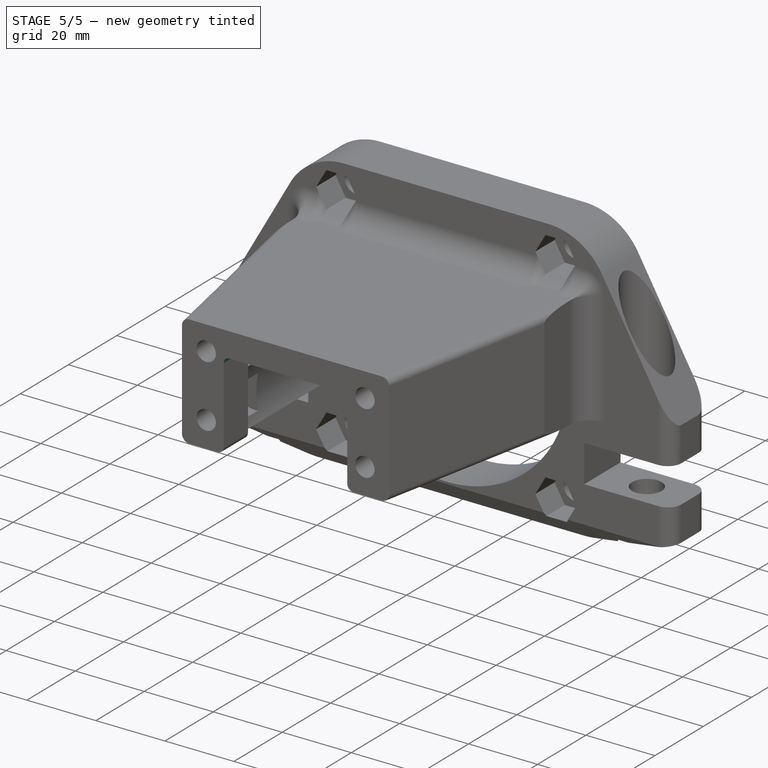
[diagram: stage 5 of 5 — iso view after this stage's code; geometry added in this stage tinted green]
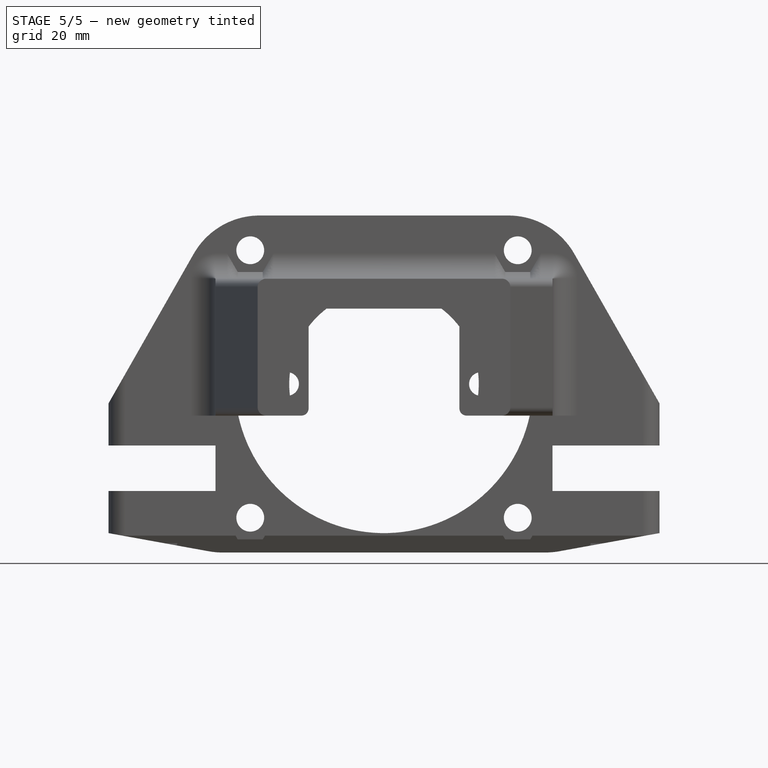
[diagram: stage 5 of 5 — front view after this stage's code; geometry added in this stage tinted green]
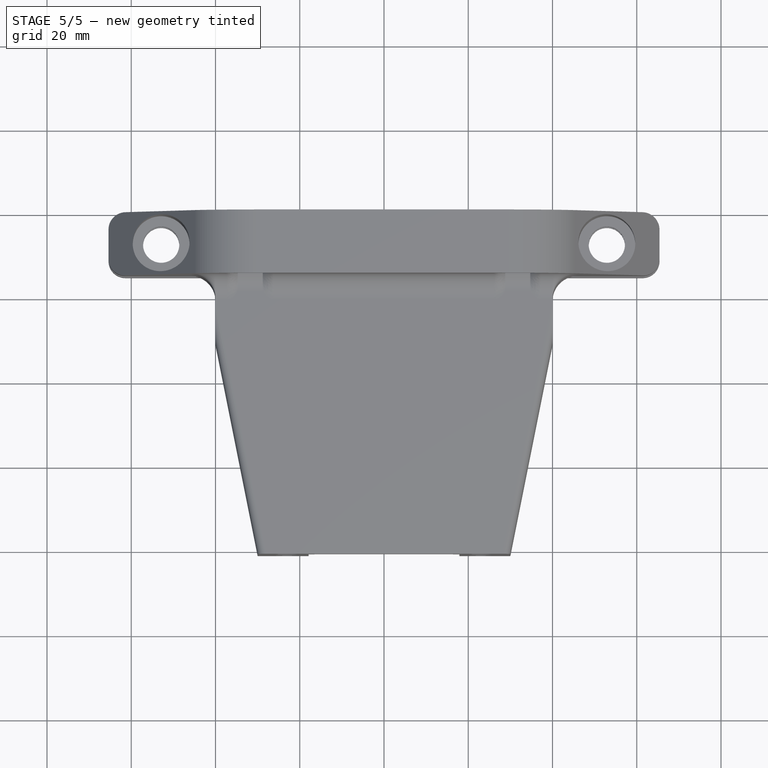
[diagram: stage 5 of 5 — top view after this stage's code; geometry added in this stage tinted green]
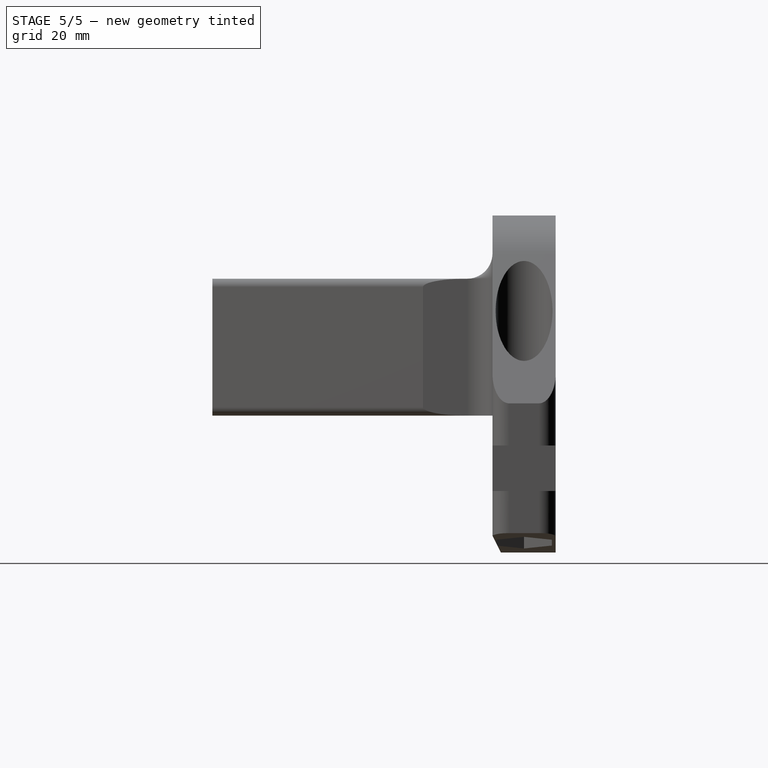
[diagram: stage 5 of 5 — right view after this stage's code; geometry added in this stage tinted green]
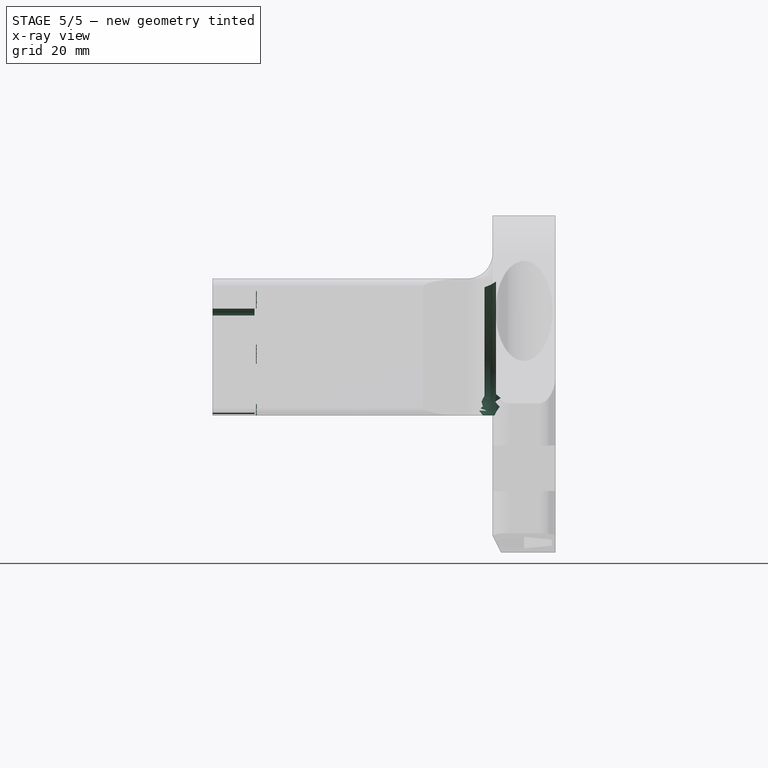
[diagram: stage 5 of 5 — x-ray composite at the right view; earlier geometry ghosted, this stage's added geometry solid]
FEATURE [PartDesign::Fillet] Fillet005
  Base = -> Fillet004 [Edge115]
  BaseFeature = -> Fillet004
  Placement = pos=(0,0,0) rot=(1,0,0;1.5708rad)
  Radius = 10
  Refine = true
  SupportTransform = false
  Suppressed = false
  UseAllEdges = false
FEATURE [Sketcher::SketchObject] Sketch015
  ArcFitTolerance = 1e-06
  FullyConstrained = true
  MakeInternals = false
  MapMode = 5
  Placement = pos=(0,-81.5,1.32e-14) rot=(1,0,0;1.5708rad)
  sketch-geometry (6):
    g0: LineSegment StartX=-17.9 StartY=37.9 StartZ=0 EndX=-17.9 EndY=2.1 EndZ=0
    g1: LineSegment StartX=-17.9 StartY=2.1 StartZ=0 EndX=17.9 EndY=2.1 EndZ=0
    g2: LineSegment StartX=17.9 StartY=2.1 StartZ=0 EndX=17.9 EndY=37.9 EndZ=0
    g3: LineSegment StartX=17.9 StartY=37.9 StartZ=0 EndX=-17.9 EndY=37.9 EndZ=0
    g4: LineSegment [constr] StartX=-17.9 StartY=2.1 StartZ=0 EndX=17.9 EndY=37.9 EndZ=0
    g5: GeomPoint X=0 Y=20 Z=0
  constraints (15):
    c: Coincident(g0,g1)
    c: Coincident(g1,g2)
    c: Coincident(g2,g3)
    c: Coincident(g3,g0)
    c: Vertical(g0)
    c: Vertical(g2)
    c: Horizontal(g1)
    c: Horizontal(g3)
    c: Distance(g0,g2) = 35.8
    c: Equal(g3,g0)
    c: Coincident(g4,g0)
    c: Coincident(g4,g2)
    c: Symmetric(g4,g4,g5)
    c: PointOnObject(g5,g-2)
    c: DistanceY(g5) = 20
FEATURE [PartDesign::Pocket] Pocket011
  BaseFeature = -> Fillet005
  Direction = (0,1,-2e-16)
  Length = 10
  Length2 = 5
  Placement = pos=(0,0,0) rot=(1,0,0;1.5708rad)
  Profile = -> Sketch015
  ReferenceAxis = -> Sketch015 [N_Axis]
  Refine = true
  Suppressed = false
  Type = 0
FEATURE [PartDesign::Fillet] Fillet006
  Base = -> Pocket011 [Edge64]
  BaseFeature = -> Pocket011
  Placement = pos=(0,0,0) rot=(1,0,0;1.5708rad)
  Radius = 1.99
  Refine = true
  SupportTransform = false
  Suppressed = false
  UseAllEdges = false
FEATURE [PartDesign::Fillet] Fillet007
  Base = -> Fillet006 [Edge41,Edge36,Edge30,Edge46,Edge52]
  BaseFeature = -> Fillet006
  Placement = pos=(0,0,0) rot=(1,0,0;1.5708rad)
  Radius = 1.48
  Refine = true
  SupportTransform = false
  Suppressed = false
  UseAllEdges = false
FEATURE [PartDesign::Fillet] Fillet008
  Base = -> Fillet007 [Edge156,Edge192,Edge74,Edge6]
  BaseFeature = -> Fillet007
  Placement = pos=(0,0,0) rot=(1,0,0;1.5708rad)
  Radius = 1.7
  Refine = true
  SupportTransform = false
  Suppressed = false
  UseAllEdges = false
FEATURE [PartDesign::Body] Body  label="sway_motor_mount_side"
  AllowCompound = false
  Group = -> [Sketch,Pad,Sketch001,Pocket,Sketch002,Pocket001,Sketch003,Pocket002,Sketch005,Pocket004,Fillet,Fillet002,Sketch006,Pocket005,Sketch007,Sketch008,Revolution,Pad001,Sketch009,Pocket006,Sketch010,Pad002,Sketch011,Pocket007,Sketch012,Pocket008,Sketch013,Pocket009,Sketch014,Pocket010,Chamfer,Fillet003,Fillet004,Fillet005,Sketch015,Pocket011,Fillet006,Fillet007,Fillet008]
  Origin = -> Origin
  Tip = -> Fillet008
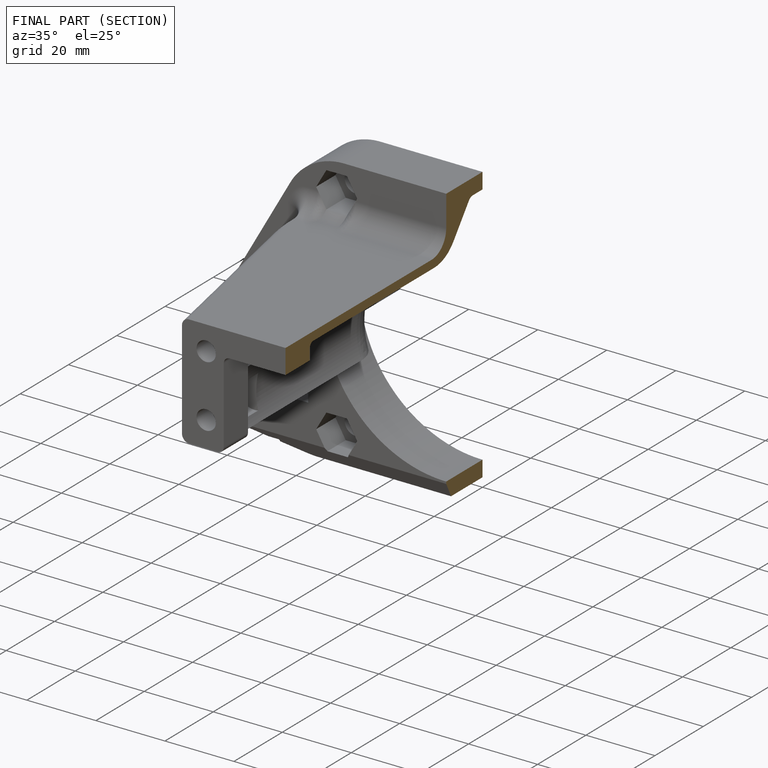
[diagram: finished part — half-section view (interior)]
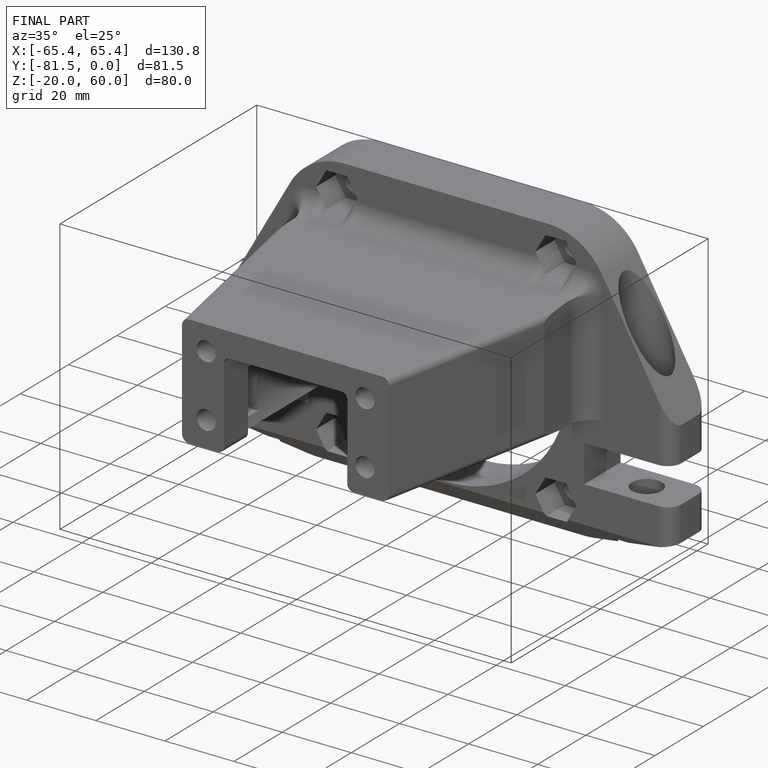
[diagram: finished part — iso view with bounding-box wireframe]
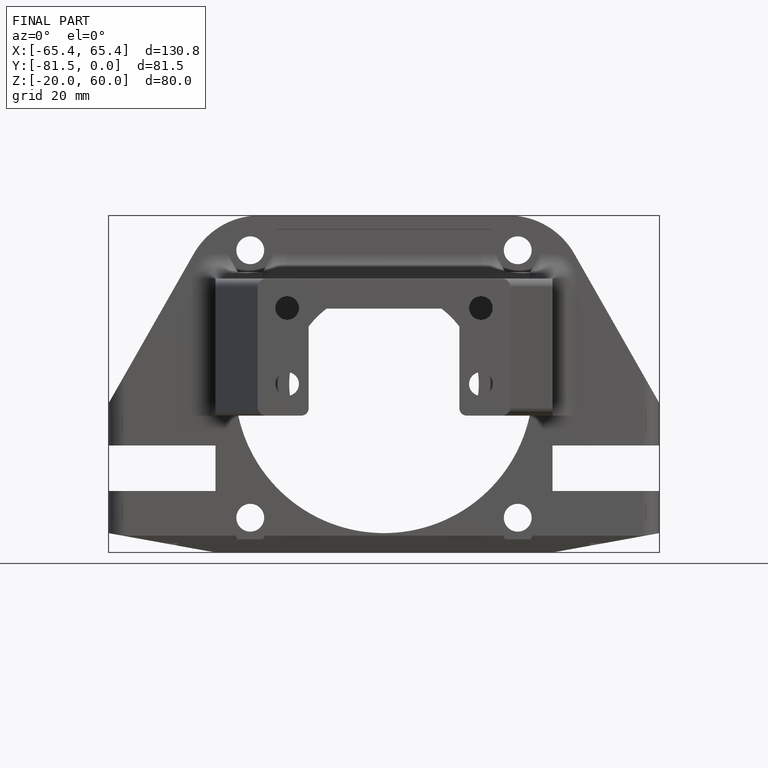
[diagram: finished part — front view with bounding-box wireframe]
